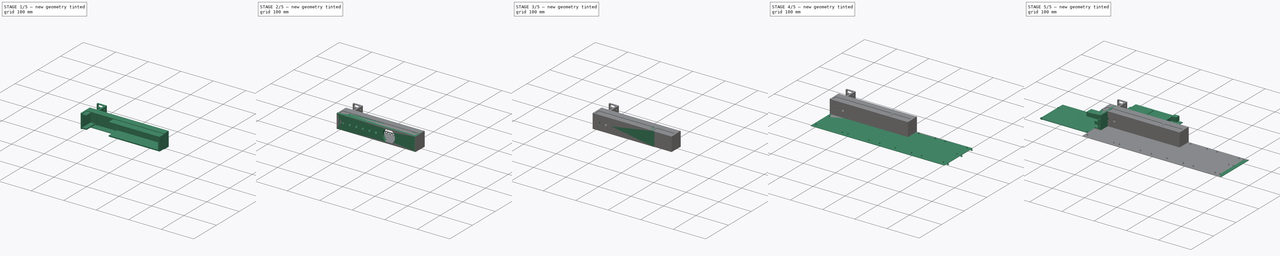
[diagram: build sequence overview — one tinted view per stage of 5, left to right]
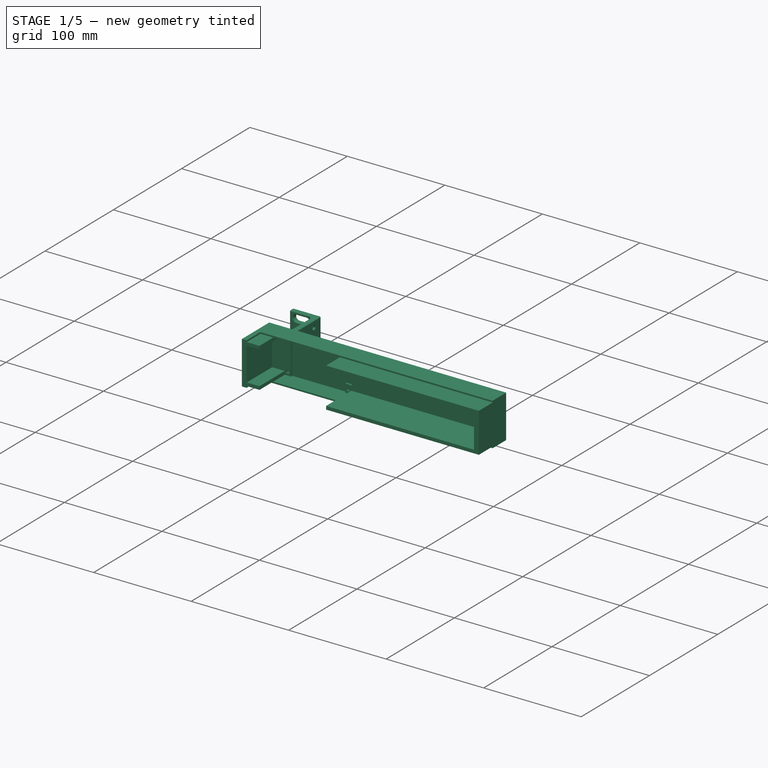
[diagram: stage 1 of 5 — iso view after this stage's code; geometry added in this stage tinted green]
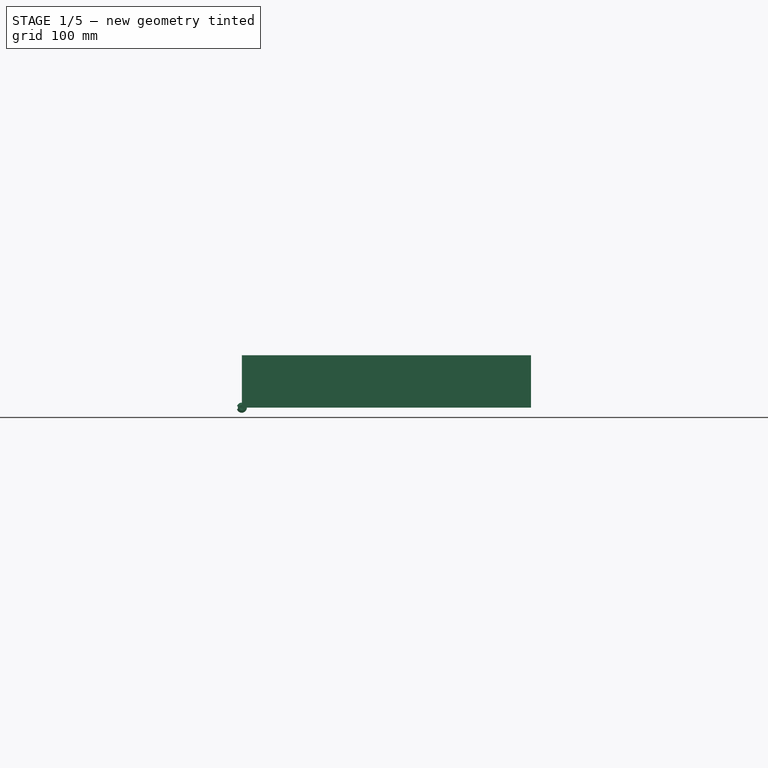
[diagram: stage 1 of 5 — front view after this stage's code; geometry added in this stage tinted green]
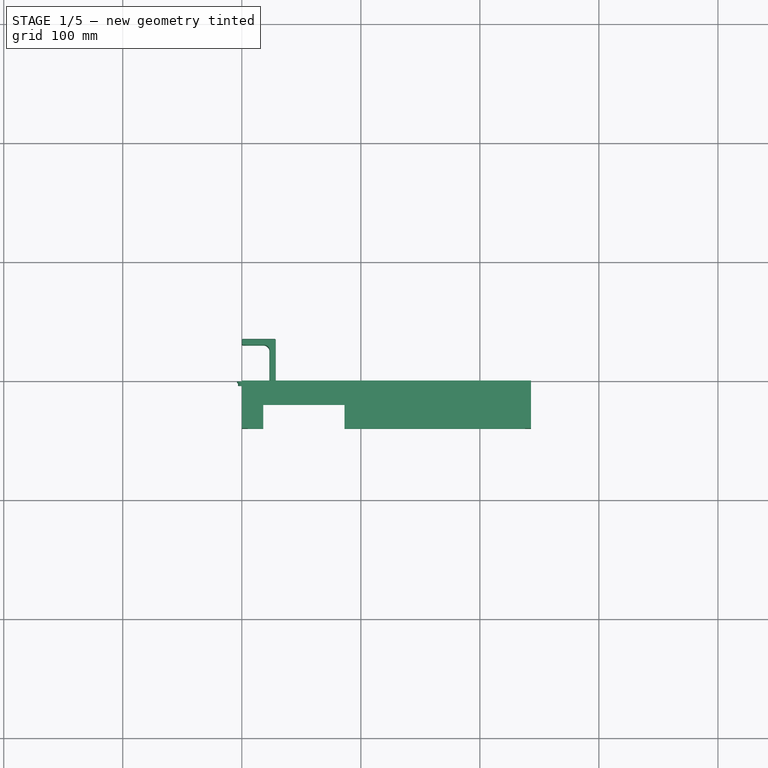
[diagram: stage 1 of 5 — top view after this stage's code; geometry added in this stage tinted green]
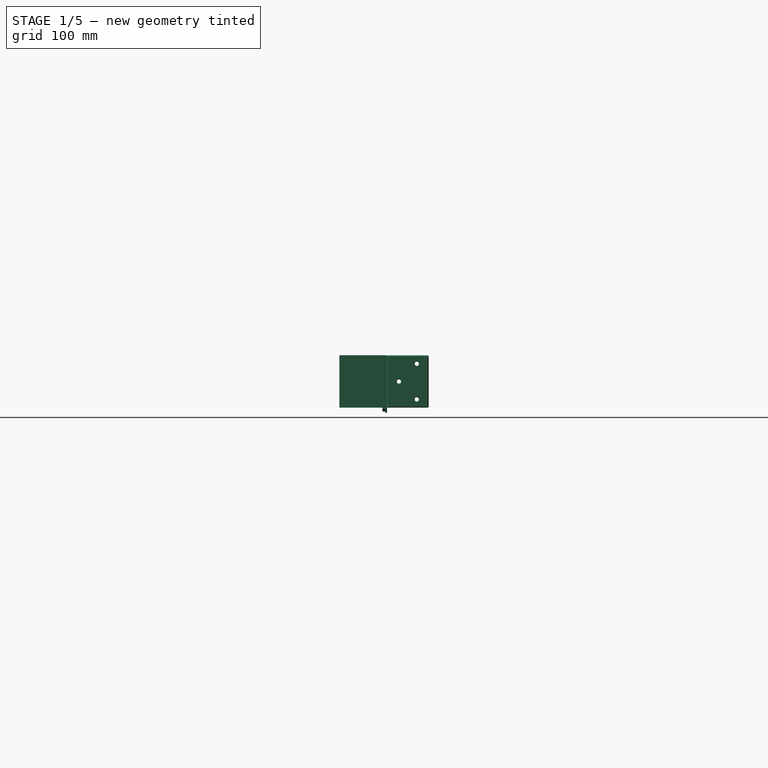
[diagram: stage 1 of 5 — right view after this stage's code; geometry added in this stage tinted green]
FCSTD DOCUMENT  (FreeCAD 1.0R39109 (Git))
Label: rackbanana
License: All rights reserved
LicenseURL: https://en.wikipedia.org/wiki/All_rights_reserved
objects: Sketcher::SketchObject×123, PartDesign::Pocket×75, PartDesign::Pad×38, Part::FeaturePython×30, PartDesign::Fillet×25, PartDesign::Body×24, PartDesign::Chamfer×17, App::Part×14, PartDesign::Hole×8, PartDesign::LinearPattern×2
note: 793 computed .brp shape members not serialized (recipe doc carries the construction recipe); baked Part::Feature solids carry a one-line shape summary decoded from their .brp

FEATURE [PartDesign::Body] Body012  label="sd-slot"
  AllowCompound = false
  Group = -> [Sketch038,Pad012]
  Origin = -> Origin018
  Placement = pos=(0,-1.6,0) rot=(0,0,1;0rad)
  Tip = -> Pad012
FEATURE [App::Part] Part004  label="lcd"
  Group = -> [Body010,Body011,Body012]
  Origin = -> Origin015
  Placement = pos=(-224.5,-3.5,1.75) rot=(0,0,1;0rad)
FEATURE [Sketcher::SketchObject] Sketch043
  ArcFitTolerance = 1e-06
  AttachmentSupport = -> [XZ_Plane020]
  FullyConstrained = true
  MakeInternals = false
  MapMode = 5
  Placement = pos=(0,0,0) rot=(1,0,0;1.5708rad)
  sketch-geometry (4):
    g0: LineSegment StartX=0 StartY=0 StartZ=0 EndX=243 EndY=0 EndZ=0
    g1: LineSegment StartX=243 StartY=0 StartZ=0 EndX=243 EndY=44 EndZ=0
    g2: LineSegment StartX=243 StartY=44 StartZ=0 EndX=0 EndY=44 EndZ=0
    g3: LineSegment StartX=0 StartY=44 StartZ=0 EndX=0 EndY=0 EndZ=0
  constraints (11):
    c: Coincident(g0,g1)
    c: Coincident(g1,g2)
    c: Coincident(g2,g3)
    c: Coincident(g3,g0)
    c: Horizontal(g0)
    c: Horizontal(g2)
    c: Vertical(g1)
    c: Vertical(g3)
    c: Coincident(g0,g-1)
    c: DistanceY(g3,g3) = 44
    c: DistanceX(g2,g2) = 243
FEATURE [PartDesign::Pad] Pad014
  Direction = (0,-1,2e-16)
  Length = 40
  Length2 = 10
  Placement = pos=(0,0,0) rot=(1,0,0;1.5708rad)
  Profile = -> Sketch043
  ReferenceAxis = -> Sketch043 [N_Axis]
  Refine = true
  Suppressed = false
  Type = 0
FEATURE [Sketcher::SketchObject] Sketch045
  ArcFitTolerance = 1e-06
  AttachmentSupport = -> [Pad014]
  FullyConstrained = true
  MakeInternals = false
  MapMode = 5
  Placement = pos=(0,-40,0) rot=(1,0,0;1.5708rad)
  sketch-geometry (4):
    g0: LineSegment StartX=5 StartY=39 StartZ=0 EndX=5 EndY=5 EndZ=0
    g1: LineSegment StartX=5 StartY=5 StartZ=0 EndX=238 EndY=5 EndZ=0
    g2: LineSegment StartX=238 StartY=5 StartZ=0 EndX=238 EndY=39 EndZ=0
    g3: LineSegment StartX=238 StartY=39 StartZ=0 EndX=5 EndY=39 EndZ=0
  constraints (12):
    c: Coincident(g0,g1)
    c: Coincident(g1,g2)
    c: Coincident(g2,g3)
    c: Coincident(g3,g0)
    c: Vertical(g0)
    c: Vertical(g2)
    c: Horizontal(g1)
    c: Horizontal(g3)
    c: DistanceX(g3,g3) = 233
    c: DistanceY(g0,g0) = 34
    c: Distance(g0,g-2) = 5
    c: Distance(g0,g-1) = 5
FEATURE [PartDesign::Pocket] Pocket015
  BaseFeature = -> Pad014
  Direction = (0,1,-2e-16)
  Length = 37
  Length2 = 5
  Placement = pos=(0,0,0) rot=(1,0,0;1.5708rad)
  Profile = -> Sketch045
  ReferenceAxis = -> Sketch045 [N_Axis]
  Refine = true
  Suppressed = false
  Type = 0
FEATURE [Sketcher::SketchObject] MirroredSketch
  ArcFitTolerance = 1e-06
  FullyConstrained = true
  MakeInternals = false
  Placement = pos=(0,-2,0) rot=(1,0,0;1.5708rad)
  sketch-geometry (20):
    g0: LineSegment StartX=230.1 StartY=27.1 StartZ=0 EndX=223.7 EndY=27.1 EndZ=0
    g1: LineSegment StartX=223.7 StartY=27.1 StartZ=0 EndX=223.7 EndY=13.4 EndZ=0
    g2: LineSegment StartX=223.7 StartY=13.4 StartZ=0 EndX=230.1 EndY=13.4 EndZ=0
    g3: LineSegment StartX=230.1 StartY=13.4 StartZ=0 EndX=230.1 EndY=27.1 EndZ=0
    g4: LineSegment StartX=220.4 StartY=23.7 StartZ=0 EndX=205.2 EndY=23.7 EndZ=0
    g5: LineSegment StartX=205.2 StartY=23.7 StartZ=0 EndX=205.2 EndY=13 EndZ=0
    g6: LineSegment StartX=205.2 StartY=13 StartZ=0 EndX=220.4 EndY=13 EndZ=0
    g7: LineSegment StartX=220.4 StartY=13 StartZ=0 EndX=220.4 EndY=23.7 EndZ=0
    g8: LineSegment StartX=202.6 StartY=23.7 StartZ=0 EndX=187.4 EndY=23.7 EndZ=0
    g9: LineSegment StartX=187.4 StartY=23.7 StartZ=0 EndX=187.4 EndY=13 EndZ=0
    g10: LineSegment StartX=187.4 StartY=13 StartZ=0 EndX=202.6 EndY=13 EndZ=0
    g11: LineSegment StartX=202.6 StartY=13 StartZ=0 EndX=202.6 EndY=23.7 EndZ=0
    g12: LineSegment StartX=174.4 StartY=26.9 StartZ=0 EndX=114.8 EndY=26.9 EndZ=0
    g13: LineSegment StartX=114.8 StartY=26.9 StartZ=0 EndX=114.8 EndY=12.8 EndZ=0
    g14: LineSegment StartX=114.8 StartY=12.8 StartZ=0 EndX=174.4 EndY=12.8 EndZ=0
    g15: LineSegment StartX=174.4 StartY=12.8 StartZ=0 EndX=174.4 EndY=26.9 EndZ=0
    g16: ArcOfCircle CenterX=98.2 CenterY=14.8 CenterZ=0 NormalX=0 NormalY=0 NormalZ=1 AngleXU=0 Radius=2 StartAngle=4.71239 EndAngle=7.85398
    g17: ArcOfCircle CenterX=92.7 CenterY=14.8 CenterZ=0 NormalX=0 NormalY=0 NormalZ=1 AngleXU=0 Radius=2 StartAngle=1.5708 EndAngle=4.71239
    g18: LineSegment StartX=98.2 StartY=12.8 StartZ=0 EndX=92.7 EndY=12.8 EndZ=0
    g19: LineSegment StartX=92.7 StartY=16.8 StartZ=0 EndX=98.2 EndY=16.8 EndZ=0
  constraints (58):
    c: Coincident(g0,g1)
    c: Coincident(g1,g2)
    c: Coincident(g2,g3)
    c: Coincident(g3,g0)
    c: Horizontal(g0)
    c: Horizontal(g2)
    c: Vertical(g1)
    c: Vertical(g3)
    c: Coincident(g4,g5)
    c: Coincident(g5,g6)
    c: Coincident(g6,g7)
    c: Coincident(g7,g4)
    c: Horizontal(g4)
    c: Horizontal(g6)
    c: Vertical(g5)
    c: Vertical(g7)
    c: Coincident(g8,g9)
    c: Coincident(g9,g10)
    c: Coincident(g10,g11)
    c: Coincident(g11,g8)
    c: Horizontal(g8)
    c: Horizontal(g10)
    c: Vertical(g9)
    c: Vertical(g11)
    c: Coincident(g12,g13)
    c: Coincident(g13,g14)
    c: Coincident(g14,g15)
    c: Coincident(g15,g12)
    c: Horizontal(g12)
    c: Horizontal(g14)
    c: Vertical(g13)
    c: Vertical(g15)
    c: Distance(g2) = 6.4
    c: Distance(g3) = 13.7
    c: Distance(g6) = 15.2
    c: Distance(g7) = 10.7
    c: Distance(g10) = 15.2
    c: Distance(g11) = 10.7
    c: Distance(g15) = 14.1
    c: Distance(g14) = 59.6
    c: Tangent(g16,g18) = 1.5708
    c: Tangent(g18,g17) = 1.5708
    c: Tangent(g17,g19) = 1.5708
    c: Tangent(g19,g16) = 1.5708
    c: Equal(g16,g17)
    c: Horizontal(g18)
    c: Diameter(g16) = 4
    c: Distance(g19) = 5.5
    c: Distance(g4,g8) = 2.6
    c: DistanceX(g12,g8) = 13
    c: DistanceX(g4,g0) = 3.3
    c: DistanceX(g16,g12) = 16.6
    c: Distance(g16,g-1) = 12.8
    c: Distance(g13,g-1) = 12.8
    c: Distance(g9,g-1) = 13
    c: Distance(g5,g-1) = 13
    c: Distance(g1,g-1) = 13.4
    c: Distance(g2,g-2) = 230.1
FEATURE [PartDesign::Pocket] Pocket016
  BaseFeature = -> Pocket015
  Direction = (0,1,2e-16)
  Length = 2
  Length2 = 5
  Placement = pos=(0,0,0) rot=(1,0,0;1.5708rad)
  Profile = -> MirroredSketch
  ReferenceAxis = -> MirroredSketch [N_Axis]
  Refine = true
  Suppressed = false
  Type = 0
FEATURE [Sketcher::SketchObject] Sketch046
  ArcFitTolerance = 1e-06
  AttachmentSupport = -> [Pocket016]
  FullyConstrained = true
  MakeInternals = false
  MapMode = 5
  Placement = pos=(0,-40,0) rot=(1,0,0;1.5708rad)
  sketch-geometry (4):
    g0: LineSegment StartX=18 StartY=42.5 StartZ=0 EndX=18 EndY=1.5 EndZ=0
    g1: LineSegment StartX=18 StartY=1.5 StartZ=0 EndX=86.3 EndY=1.5 EndZ=0
    g2: LineSegment StartX=86.3 StartY=1.5 StartZ=0 EndX=86.3 EndY=42.5 EndZ=0
    g3: LineSegment StartX=86.3 StartY=42.5 StartZ=0 EndX=18 EndY=42.5 EndZ=0
  constraints (12):
    c: Coincident(g0,g1)
    c: Coincident(g1,g2)
    c: Coincident(g2,g3)
    c: Coincident(g3,g0)
    c: Vertical(g0)
    c: Vertical(g2)
    c: Horizontal(g1)
    c: Horizontal(g3)
    c: DistanceY(g0,g0) = 41
    c: DistanceX(g3,g3) = 68.3
    c: Distance(g0,g-1) = 1.5
    c: Distance(g0,g-2) = 18
FEATURE [PartDesign::Pocket] Pocket017
  BaseFeature = -> Pocket016
  Direction = (0,1,-2e-16)
  Length = 37
  Length2 = 5
  Placement = pos=(0,0,0) rot=(1,0,0;1.5708rad)
  Profile = -> Sketch046
  ReferenceAxis = -> Sketch046 [N_Axis]
  Refine = true
  Suppressed = false
  Type = 0
FEATURE [Sketcher::SketchObject] Sketch047
  ArcFitTolerance = 1e-06
  AttachmentSupport = -> [Pocket017]
  FullyConstrained = true
  MakeInternals = false
  MapMode = 5
  Placement = pos=(0,-40,0) rot=(1,0,0;1.5708rad)
  sketch-geometry (8):
    g0: LineSegment StartX=4.8 StartY=44 StartZ=0 EndX=4.8 EndY=42.4 EndZ=0
    g1: LineSegment StartX=4.8 StartY=42.4 StartZ=0 EndX=249.8 EndY=42.4 EndZ=0
    g2: LineSegment StartX=249.8 StartY=42.4 StartZ=0 EndX=249.8 EndY=44 EndZ=0
    g3: LineSegment StartX=249.8 StartY=44 StartZ=0 EndX=4.8 EndY=44 EndZ=0
    g4: LineSegment StartX=4.8 StartY=0 StartZ=0 EndX=249.8 EndY=0 EndZ=0
    g5: LineSegment StartX=249.8 StartY=0 StartZ=0 EndX=249.8 EndY=1.6 EndZ=0
    g6: LineSegment StartX=249.8 StartY=1.6 StartZ=0 EndX=4.8 EndY=1.6 EndZ=0
    g7: LineSegment StartX=4.8 StartY=1.6 StartZ=0 EndX=4.8 EndY=0 EndZ=0
  constraints (24):
    c: Coincident(g0,g1)
    c: Coincident(g1,g2)
    c: Coincident(g2,g3)
    c: Coincident(g3,g0)
    c: Vertical(g0)
    c: Vertical(g2)
    c: Horizontal(g1)
    c: Horizontal(g3)
    c: Coincident(g4,g5)
    c: Coincident(g5,g6)
    c: Coincident(g6,g7)
    c: Horizontal(g4)
    c: Horizontal(g6)
    c: Vertical(g5)
    c: Vertical(g7)
    c: DistanceX(g4,g4) = 245
    c: Distance(g7,g7) = 1.6
    c: Equal(g4,g3)
    c: Equal(g0,g7)
    c: Distance(g0,g-1) = 44
    c: Coincident(g7,g4)
    c: PointOnObject(g4,g-1)
    c: Distance(g4,g-2) = 4.8
    c: Distance(g0,g-2) = 4.8
FEATURE [PartDesign::Pocket] Pocket018
  BaseFeature = -> Pocket017
  Direction = (0,1,-2e-16)
  Length = 20.2
  Length2 = 5
  Placement = pos=(0,0,0) rot=(1,0,0;1.5708rad)
  Profile = -> Sketch047
  ReferenceAxis = -> Sketch047 [N_Axis]
  Refine = true
  Suppressed = false
  Type = 0
FEATURE [Sketcher::SketchObject] Sketch048
  ArcFitTolerance = 1e-06
  AttachmentSupport = -> [Pocket018]
  FullyConstrained = true
  MakeInternals = false
  MapMode = 5
  Placement = pos=(0,-3,1.3e-15) rot=(1,0,0;1.5708rad)
  sketch-geometry (8):
    g0: LineSegment StartX=24.4 StartY=42.5 StartZ=0 EndX=80.1 EndY=42.5 EndZ=0
    g1: LineSegment StartX=24.4 StartY=42.5 StartZ=0 EndX=24.4 EndY=1.5 EndZ=0
    g2: LineSegment StartX=24.4 StartY=1.5 StartZ=0 EndX=80.1 EndY=1.5 EndZ=0
    g3: LineSegment StartX=80.1 StartY=1.5 StartZ=0 EndX=80.1 EndY=10 EndZ=0
    g4: LineSegment StartX=80.1 StartY=10 StartZ=0 EndX=86.6 EndY=10 EndZ=0
    g5: LineSegment StartX=86.6 StartY=10 StartZ=0 EndX=86.6 EndY=34 EndZ=0
    g6: LineSegment StartX=86.6 StartY=34 StartZ=0 EndX=80.1 EndY=34 EndZ=0
    g7: LineSegment StartX=80.1 StartY=34 StartZ=0 EndX=80.1 EndY=42.5 EndZ=0
  constraints (24):
    c: Horizontal(g0)
    c: Coincident(g1,g0)
    c: Vertical(g1)
    c: Coincident(g2,g1)
    c: Horizontal(g2)
    c: Coincident(g3,g2)
    c: Vertical(g3)
    c: Coincident(g4,g3)
    c: Horizontal(g4)
    c: Coincident(g5,g4)
    c: Vertical(g5)
    c: Coincident(g6,g5)
    c: Horizontal(g6)
    c: Coincident(g7,g6)
    c: Coincident(g7,g0)
    c: Vertical(g7)
    c: DistanceY(g1,g1) = 41
    c: DistanceX(g0,g0) = 55.7
    c: DistanceY(g5,g5) = 24
    c: Distance(g6,g6) = 6.5
    c: Equal(g6,g4)
    c: Equal(g7,g3)
    c: Distance(g1,g-1) = 1.5
    c: Distance(g1,g-2) = 24.4
FEATURE [PartDesign::Pocket] Pocket019
  BaseFeature = -> Pocket018
  Direction = (0,1,-2e-16)
  Length = 2
  Length2 = 5
  Placement = pos=(0,0,0) rot=(1,0,0;1.5708rad)
  Profile = -> Sketch048
  ReferenceAxis = -> Sketch048 [N_Axis]
  Refine = true
  Suppressed = false
  Type = 0
FEATURE [Sketcher::SketchObject] Sketch049
  ArcFitTolerance = 1e-06
  AttachmentSupport = -> [Pocket019]
  FullyConstrained = false
  MakeInternals = false
  MapMode = 5
  Placement = pos=(0,-3,1.3e-15) rot=(1,0,0;1.5708rad)
  sketch-geometry (8):
    g0: Circle CenterX=21.4 CenterY=39 CenterZ=0 NormalX=0 NormalY=0 NormalZ=1 AngleXU=0 Radius=1.45
    g1: Circle CenterX=21.4 CenterY=5 CenterZ=0 NormalX=0 NormalY=0 NormalZ=1 AngleXU=0 Radius=1.45
    g2: Circle CenterX=82.9 CenterY=39 CenterZ=0 NormalX=0 NormalY=0 NormalZ=1 AngleXU=0 Radius=1.45
    g3: Circle CenterX=82.9 CenterY=5 CenterZ=0 NormalX=0 NormalY=0 NormalZ=1 AngleXU=0 Radius=1.45
    g4: LineSegment [constr] StartX=5.864 StartY=39 StartZ=0 EndX=88.4056 EndY=39 EndZ=0
    g5: LineSegment [constr] StartX=10.3822 StartY=5 StartZ=0 EndX=86.7197 EndY=5 EndZ=0
    g6: LineSegment [constr] StartX=21.4 StartY=45.9535 StartZ=0 EndX=21.4 EndY=-2.93753 EndZ=0
    g7: LineSegment [constr] StartX=82.9 StartY=46.0884 StartZ=0 EndX=82.9 EndY=-3.20728 EndZ=0
  constraints (20):
    c: Horizontal(g4)
    c: Horizontal(g5)
    c: Vertical(g6)
    c: Vertical(g7)
    c: Distance(g5,g4) = 34
    c: Distance(g7,g6) = 61.5
    c: PointOnObject(g0,g6)
    c: PointOnObject(g0,g4)
    c: PointOnObject(g2,g4)
    c: PointOnObject(g2,g7)
    c: PointOnObject(g3,g5)
    c: PointOnObject(g3,g7)
    c: PointOnObject(g1,g5)
    c: PointOnObject(g1,g6)
    c: Distance(g1,g-1) = 5
    c: Distance(g1,g-2) = 21.4
    c: Diameter(g0) = 2.9
    c: Diameter(g1) = 2.9
    c: Diameter(g2) = 2.9
    c: Diameter(g3) = 2.9
FEATURE [PartDesign::Pocket] Pocket020
  BaseFeature = -> Pocket019
  Direction = (0,1,-2e-16)
  Length = 2
  Length2 = 5
  Placement = pos=(0,0,0) rot=(1,0,0;1.5708rad)
  Profile = -> Sketch049
  ReferenceAxis = -> Sketch049 [N_Axis]
  Refine = true
  Suppressed = false
  Type = 0
FEATURE [Sketcher::SketchObject] Sketch058
  ArcFitTolerance = 1e-06
  AttachmentSupport = -> [XZ_Plane021]
  FullyConstrained = true
  MakeInternals = false
  MapMode = 5
  Placement = pos=(0,0,0) rot=(1,0,0;1.5708rad)
  sketch-geometry (1):
    g0: Circle CenterX=0 CenterY=0 CenterZ=0 NormalX=0 NormalY=0 NormalZ=1 AngleXU=0 Radius=4.25
  constraints (2):
    c: Coincident(g0,g-1)
    c: Diameter(g0) = 8.5
FEATURE [PartDesign::Pad] Pad016
  Direction = (0,-1,2e-16)
  Length = 1.6
  Length2 = 10
  Placement = pos=(0,0,0) rot=(1,0,0;1.5708rad)
  Profile = -> Sketch058
  ReferenceAxis = -> Sketch058 [N_Axis]
  Refine = true
  Suppressed = false
  Type = 0
FEATURE [Sketcher::SketchObject] Sketch059
  ArcFitTolerance = 1e-06
  AttachmentSupport = -> [Pad016]
  FullyConstrained = true
  MakeInternals = false
  MapMode = 5
  Placement = pos=(0,-1.6,0) rot=(1,0,0;1.5708rad)
  sketch-geometry (1):
    g0: Circle CenterX=0 CenterY=0 CenterZ=0 NormalX=0 NormalY=0 NormalZ=1 AngleXU=0 Radius=3.25
  constraints (2):
    c: Coincident(g0,g-1)
    c: Diameter(g0) = 6.5
FEATURE [PartDesign::Pad] Pad017
  BaseFeature = -> Pad016
  Direction = (0,-1,2e-16)
  Length = 2.3
  Length2 = 10
  Placement = pos=(0,0,0) rot=(1,0,0;1.5708rad)
  Profile = -> Sketch059
  ReferenceAxis = -> Sketch059 [N_Axis]
  Refine = true
  Suppressed = false
  Type = 0
FEATURE [PartDesign::Body] Body013  label="main"
  AllowCompound = false
  Group = -> [Sketch043,Pad014,Sketch045,Pocket015,MirroredSketch,Pocket016,Sketch046,Pocket017,Sketch047,Pocket018,Sketch048,Pocket019,Sketch049,Pocket020,Sketch050,Pocket021,Sketch054,Pocket024,Sketch055,Hole,Sketch061,Pocket027,Sketch081,Pad023,Sketch082,Pocket041,Sketch102,Pad027,Sketch103,Pocket056,Sketch104,Pocket057,Sketch106,Pocket059,Sketch117,Pad030,Sketch118,Pocket065,Sketch120,Pocket067,Sketch121,+16 more]
  Origin = -> Origin020
  Tip = -> Pad037
FEATURE [Sketcher::SketchObject] Sketch155
  ArcFitTolerance = 1e-06
  AttachmentSupport = -> [Pad017]
  FullyConstrained = true
  MakeInternals = false
  MapMode = 5
  Placement = pos=(0,0,0) rot=(-1,0,0;1.5708rad)
  sketch-geometry (4):
    g0: LineSegment StartX=-4.6 StartY=1.15 StartZ=0 EndX=-4.6 EndY=-1.15 EndZ=0
    g1: LineSegment StartX=-4.6 StartY=-1.15 StartZ=0 EndX=-3.3 EndY=-1.15 EndZ=0
    g2: LineSegment StartX=-3.3 StartY=-1.15 StartZ=0 EndX=-3.3 EndY=1.15 EndZ=0
    g3: LineSegment StartX=-3.3 StartY=1.15 StartZ=0 EndX=-4.6 EndY=1.15 EndZ=0
  constraints (12):
    c: Coincident(g0,g1)
    c: Coincident(g1,g2)
    c: Coincident(g2,g3)
    c: Coincident(g3,g0)
    c: Vertical(g0)
    c: Vertical(g2)
    c: Horizontal(g1)
    c: Horizontal(g3)
    c: DistanceY(g2,g2) = 2.3
    c: DistanceX(g1,g1) = 1.3
    c: Distance(g0,g-1) = 1.15
    c: Distance(g-1,g2) = 3.3
FEATURE [PartDesign::Pocket] Pocket093
  BaseFeature = -> Pad017
  Direction = (0,-1,-2e-16)
  Length = 5
  Length2 = 5
  Placement = pos=(0,0,0) rot=(1,0,0;1.5708rad)
  Profile = -> Sketch155
  ReferenceAxis = -> Sketch155 [N_Axis]
  Refine = true
  Suppressed = false
  Type = 0
FEATURE [Sketcher::SketchObject] Sketch156
  ArcFitTolerance = 1e-06
  AttachmentSupport = -> [XZ_Plane039]
  FullyConstrained = true
  MakeInternals = false
  MapMode = 5
  Placement = pos=(0,0,0) rot=(1,0,0;1.5708rad)
  sketch-geometry (1):
    g0: Circle CenterX=0 CenterY=0 CenterZ=0 NormalX=0 NormalY=0 NormalZ=1 AngleXU=0 Radius=4.25
  constraints (2):
    c: Coincident(g0,g-1)
    c: Diameter(g0) = 8.5
FEATURE [PartDesign::Pad] Pad038
  Direction = (0,-1,2e-16)
  Length = 1.6
  Length2 = 10
  Placement = pos=(0,0,0) rot=(1,0,0;1.5708rad)
  Profile = -> Sketch156
  ReferenceAxis = -> Sketch156 [N_Axis]
  Refine = true
  Suppressed = false
  Type = 0
FEATURE [Sketcher::SketchObject] Sketch157
  ArcFitTolerance = 1e-06
  AttachmentSupport = -> [Pad038]
  FullyConstrained = true
  MakeInternals = false
  MapMode = 5
  Placement = pos=(0,-1.6,0) rot=(1,0,0;1.5708rad)
  sketch-geometry (1):
    g0: Circle CenterX=0 CenterY=0 CenterZ=0 NormalX=0 NormalY=0 NormalZ=1 AngleXU=0 Radius=3.25
  constraints (2):
    c: Coincident(g0,g-1)
    c: Diameter(g0) = 6.5
FEATURE [PartDesign::Pad] Pad039
  BaseFeature = -> Pad038
  Direction = (0,-1,2e-16)
  Length = 2.3
  Length2 = 10
  Placement = pos=(0,0,0) rot=(1,0,0;1.5708rad)
  Profile = -> Sketch157
  ReferenceAxis = -> Sketch157 [N_Axis]
  Refine = true
  Suppressed = false
  Type = 0
FEATURE [Sketcher::SketchObject] Sketch158
  ArcFitTolerance = 1e-06
  AttachmentSupport = -> [Pad039]
  FullyConstrained = true
  MakeInternals = false
  MapMode = 5
  Placement = pos=(0,0,0) rot=(-1,0,0;1.5708rad)
  sketch-geometry (4):
    g0: LineSegment StartX=-4.6 StartY=1.15 StartZ=0 EndX=-4.6 EndY=-1.15 EndZ=0
    g1: LineSegment StartX=-4.6 StartY=-1.15 StartZ=0 EndX=-3.3 EndY=-1.15 EndZ=0
    g2: LineSegment StartX=-3.3 StartY=-1.15 StartZ=0 EndX=-3.3 EndY=1.15 EndZ=0
    g3: LineSegment StartX=-3.3 StartY=1.15 StartZ=0 EndX=-4.6 EndY=1.15 EndZ=0
  constraints (12):
    c: Coincident(g0,g1)
    c: Coincident(g1,g2)
    c: Coincident(g2,g3)
    c: Coincident(g3,g0)
    c: Vertical(g0)
    c: Vertical(g2)
    c: Horizontal(g1)
    c: Horizontal(g3)
    c: DistanceY(g2,g2) = 2.3
    c: DistanceX(g1,g1) = 1.3
    c: Distance(g0,g-1) = 1.15
    c: Distance(g-1,g2) = 3.3
FEATURE [PartDesign::Pocket] Pocket094
  BaseFeature = -> Pad039
  Direction = (0,-1,-2e-16)
  Length = 5
  Length2 = 5
  Placement = pos=(0,0,0) rot=(1,0,0;1.5708rad)
  Profile = -> Sketch158
  ReferenceAxis = -> Sketch158 [N_Axis]
  Refine = true
  Suppressed = false
  Type = 0
FEATURE [Sketcher::SketchObject] Sketch159
  ArcFitTolerance = 1e-06
  AttachmentSupport = -> [XZ_Plane040]
  FullyConstrained = true
  MakeInternals = false
  MapMode = 5
  Placement = pos=(0,0,0) rot=(1,0,0;1.5708rad)
  sketch-geometry (1):
    g0: Circle CenterX=0 CenterY=0 CenterZ=0 NormalX=0 NormalY=0 NormalZ=1 AngleXU=0 Radius=4.25
  constraints (2):
    c: Coincident(g0,g-1)
    c: Diameter(g0) = 8.5
FEATURE [PartDesign::Pad] Pad040
  Direction = (0,-1,2e-16)
  Length = 1.6
  Length2 = 10
  Placement = pos=(0,0,0) rot=(1,0,0;1.5708rad)
  Profile = -> Sketch159
  ReferenceAxis = -> Sketch159 [N_Axis]
  Refine = true
  Suppressed = false
  Type = 0
FEATURE [Sketcher::SketchObject] Sketch160
  ArcFitTolerance = 1e-06
  AttachmentSupport = -> [Pad040]
  FullyConstrained = true
  MakeInternals = false
  MapMode = 5
  Placement = pos=(0,-1.6,0) rot=(1,0,0;1.5708rad)
  sketch-geometry (1):
    g0: Circle CenterX=0 CenterY=0 CenterZ=0 NormalX=0 NormalY=0 NormalZ=1 AngleXU=0 Radius=3.25
  constraints (2):
    c: Coincident(g0,g-1)
    c: Diameter(g0) = 6.5
FEATURE [PartDesign::Pad] Pad041
  BaseFeature = -> Pad040
  Direction = (0,-1,2e-16)
  Length = 2.3
  Length2 = 10
  Placement = pos=(0,0,0) rot=(1,0,0;1.5708rad)
  Profile = -> Sketch160
  ReferenceAxis = -> Sketch160 [N_Axis]
  Refine = true
  Suppressed = false
  Type = 0
FEATURE [Sketcher::SketchObject] Sketch161
  ArcFitTolerance = 1e-06
  AttachmentSupport = -> [Pad041]
  FullyConstrained = true
  MakeInternals = false
  MapMode = 5
  Placement = pos=(0,0,0) rot=(-1,0,0;1.5708rad)
  sketch-geometry (4):
    g0: LineSegment StartX=-4.6 StartY=1.15 StartZ=0 EndX=-4.6 EndY=-1.15 EndZ=0
    g1: LineSegment StartX=-4.6 StartY=-1.15 StartZ=0 EndX=-3.3 EndY=-1.15 EndZ=0
    g2: LineSegment StartX=-3.3 StartY=-1.15 StartZ=0 EndX=-3.3 EndY=1.15 EndZ=0
    g3: LineSegment StartX=-3.3 StartY=1.15 StartZ=0 EndX=-4.6 EndY=1.15 EndZ=0
  constraints (12):
    c: Coincident(g0,g1)
    c: Coincident(g1,g2)
    c: Coincident(g2,g3)
    c: Coincident(g3,g0)
    c: Vertical(g0)
    c: Vertical(g2)
    c: Horizontal(g1)
    c: Horizontal(g3)
    c: DistanceY(g2,g2) = 2.3
    c: DistanceX(g1,g1) = 1.3
    c: Distance(g0,g-1) = 1.15
    c: Distance(g-1,g2) = 3.3
FEATURE [PartDesign::Pocket] Pocket095
  BaseFeature = -> Pad041
  Direction = (0,-1,-2e-16)
  Length = 5
  Length2 = 5
  Placement = pos=(0,0,0) rot=(1,0,0;1.5708rad)
  Profile = -> Sketch161
  ReferenceAxis = -> Sketch161 [N_Axis]
  Refine = true
  Suppressed = false
  Type = 0
FEATURE [Sketcher::SketchObject] Sketch162
  ArcFitTolerance = 1e-06
  AttachmentSupport = -> [Pocket093]
  FullyConstrained = true
  MakeInternals = false
  MapMode = 5
  Placement = pos=(0,-3.9,9e-16) rot=(1,0,0;1.5708rad)
  sketch-geometry (4):
    g0: LineSegment StartX=-2.3094 StartY=0 StartZ=0 EndX=1.1547 EndY=-2 EndZ=0
    g1: LineSegment StartX=1.1547 StartY=-2 StartZ=0 EndX=1.1547 EndY=2 EndZ=0
    g2: LineSegment StartX=1.1547 StartY=2 StartZ=0 EndX=-2.3094 EndY=0 EndZ=0
    g3: Circle [constr] CenterX=0 CenterY=0 CenterZ=0 NormalX=0 NormalY=0 NormalZ=1 AngleXU=0 Radius=2.3094
  constraints (11):
    c: Coincident(g0,g1)
    c: Coincident(g1,g2)
    c: Coincident(g2,g0)
    c: Equal(g0,g1)
    c: Equal(g0,g2)
    c: PointOnObject(g0,g3)
    c: PointOnObject(g1,g3)
    c: PointOnObject(g2,g3)
    c: Coincident(g3,g-1)
    c: PointOnObject(g0,g-1)
    c: DistanceY(g1,g1) = 4
FEATURE [PartDesign::Pocket] Pocket096
  BaseFeature = -> Pocket093
  Direction = (0,1,-2e-16)
  Length = 0.5
  Length2 = 5
  Placement = pos=(0,0,0) rot=(1,0,0;1.5708rad)
  Profile = -> Sketch162
  ReferenceAxis = -> Sketch162 [N_Axis]
  Refine = true
  Suppressed = false
  Type = 0
FEATURE [PartDesign::Fillet] Fillet040
  Base = -> Pocket096 [Edge17,Edge7]
  BaseFeature = -> Pocket096
  Placement = pos=(0,0,0) rot=(1,0,0;1.5708rad)
  Radius = 0.5
  Refine = true
  SupportTransform = false
  Suppressed = false
  UseAllEdges = false
FEATURE [PartDesign::Fillet] Fillet041
  Base = -> Fillet040 [Edge26,Edge31,Edge27,Edge25,Edge28,Edge29]
  BaseFeature = -> Fillet040
  Placement = pos=(0,0,0) rot=(1,0,0;1.5708rad)
  Radius = 0.3
  Refine = true
  SupportTransform = false
  Suppressed = false
  UseAllEdges = false
FEATURE [PartDesign::Body] Body014  label="button_left"
  AllowCompound = false
  Group = -> [Sketch058,Pad016,Sketch059,Pad017,Sketch155,Pocket093,Sketch162,Pocket096,Fillet040,Fillet041]
  Origin = -> Origin021
  Placement = pos=(11.5,-3,32) rot=(0,0,1;3.14159rad)
  Tip = -> Fillet041
FEATURE [Sketcher::SketchObject] Sketch163
  ArcFitTolerance = 1e-06
  AttachmentSupport = -> [Pocket094]
  FullyConstrained = true
  MakeInternals = false
  MapMode = 5
  Placement = pos=(0,-3.9,9e-16) rot=(1,0,0;1.5708rad)
  sketch-geometry (4):
    g0: LineSegment StartX=2.3094 StartY=0 StartZ=0 EndX=-1.1547 EndY=2 EndZ=0
    g1: LineSegment StartX=-1.1547 StartY=2 StartZ=0 EndX=-1.1547 EndY=-2 EndZ=0
    g2: LineSegment StartX=-1.1547 StartY=-2 StartZ=0 EndX=2.3094 EndY=0 EndZ=0
    g3: Circle [constr] CenterX=0 CenterY=0 CenterZ=0 NormalX=0 NormalY=0 NormalZ=1 AngleXU=0 Radius=2.3094
  constraints (11):
    c: Coincident(g0,g1)
    c: Coincident(g1,g2)
    c: Coincident(g2,g0)
    c: Equal(g0,g1)
    c: Equal(g0,g2)
    c: PointOnObject(g0,g3)
    c: PointOnObject(g1,g3)
    c: PointOnObject(g2,g3)
    c: Coincident(g3,g-1)
    c: PointOnObject(g2,g-1)
    c: DistanceY(g1,g1) = 4
FEATURE [PartDesign::Pocket] Pocket097
  BaseFeature = -> Pocket094
  Direction = (0,1,-2e-16)
  Length = 0.5
  Length2 = 5
  Placement = pos=(0,0,0) rot=(1,0,0;1.5708rad)
  Profile = -> Sketch163
  ReferenceAxis = -> Sketch163 [N_Axis]
  Refine = true
  Suppressed = false
  Type = 0
FEATURE [PartDesign::Fillet] Fillet042
  Base = -> Pocket097 [Edge17,Edge8]
  BaseFeature = -> Pocket097
  Placement = pos=(0,0,0) rot=(1,0,0;1.5708rad)
  Radius = 0.5
  Refine = true
  SupportTransform = false
  Suppressed = false
  UseAllEdges = false
FEATURE [PartDesign::Fillet] Fillet043
  Base = -> Fillet042 [Edge25,Edge29,Edge27,Edge26,Edge28,Edge31]
  BaseFeature = -> Fillet042
  Placement = pos=(0,0,0) rot=(1,0,0;1.5708rad)
  Radius = 0.3
  Refine = true
  SupportTransform = false
  Suppressed = false
  UseAllEdges = false
FEATURE [PartDesign::Body] Body023  label="button_right"
  AllowCompound = false
  Group = -> [Sketch156,Pad038,Sketch157,Pad039,Sketch158,Pocket094,Sketch163,Pocket097,Fillet042,Fillet043]
  Origin = -> Origin039
  Placement = pos=(11.5,-3,22) rot=(0,0,1;3.14159rad)
  Tip = -> Fillet043
FEATURE [Sketcher::SketchObject] Sketch164
  ArcFitTolerance = 1e-06
  AttachmentSupport = -> [Pocket095]
  FullyConstrained = true
  MakeInternals = false
  MapMode = 5
  Placement = pos=(0,-3.9,9e-16) rot=(1,0,0;1.5708rad)
  sketch-geometry (4):
    g0: LineSegment StartX=-1.5 StartY=1.5 StartZ=0 EndX=-1.5 EndY=-1.5 EndZ=0
    g1: LineSegment StartX=-1.5 StartY=-1.5 StartZ=0 EndX=1.5 EndY=-1.5 EndZ=0
    g2: LineSegment StartX=1.5 StartY=-1.5 StartZ=0 EndX=1.5 EndY=1.5 EndZ=0
    g3: LineSegment StartX=1.5 StartY=1.5 StartZ=0 EndX=-1.5 EndY=1.5 EndZ=0
  constraints (12):
    c: Coincident(g0,g1)
    c: Coincident(g1,g2)
    c: Coincident(g2,g3)
    c: Coincident(g3,g0)
    c: Vertical(g0)
    c: Vertical(g2)
    c: Horizontal(g1)
    c: Horizontal(g3)
    c: DistanceY(g0,g0) = 3
    c: DistanceX(g1,g1) = 3
    c: Distance(g-2,g2) = 1.5
    c: Distance(g-1,g1) = 1.5
FEATURE [PartDesign::Pocket] Pocket098
  BaseFeature = -> Pocket095
  Direction = (0,1,-2e-16)
  Length = 0.5
  Length2 = 5
  Placement = pos=(0,0,0) rot=(1,0,0;1.5708rad)
  Profile = -> Sketch164
  ReferenceAxis = -> Sketch164 [N_Axis]
  Refine = true
  Suppressed = false
  Type = 0
FEATURE [PartDesign::Fillet] Fillet044
  Base = -> Pocket098 [Edge17,Edge8]
  BaseFeature = -> Pocket098
  Placement = pos=(0,0,0) rot=(1,0,0;1.5708rad)
  Radius = 0.5
  Refine = true
  SupportTransform = false
  Suppressed = false
  UseAllEdges = false
FEATURE [PartDesign::Fillet] Fillet045
  Base = -> Fillet044 [Edge26,Edge25,Edge28,Edge27,Edge32,Edge34,Edge30,Edge29]
  BaseFeature = -> Fillet044
  Placement = pos=(0,0,0) rot=(1,0,0;1.5708rad)
  Radius = 0.3
  Refine = true
  SupportTransform = false
  Suppressed = false
  UseAllEdges = false
FEATURE [PartDesign::Body] Body024  label="button_enter"
  AllowCompound = false
  Group = -> [Sketch159,Pad040,Sketch160,Pad041,Sketch161,Pocket095,Sketch164,Pocket098,Fillet044,Fillet045]
  Origin = -> Origin040
  Placement = pos=(11.5,-3,12) rot=(0,0,1;3.14159rad)
  Tip = -> Fillet045
FEATURE [App::Part] Part005  label="bpi-r4-lcd-front"
  Group = -> [Body013,Body014,Body023,Body024]
  Origin = -> Origin019
  Placement = pos=(-243,0,0) rot=(0,0,1;0rad)
FEATURE [Sketcher::SketchObject] Sketch165
  ArcFitTolerance = 1e-06
  AttachmentSupport = -> [YZ_Plane042]
  FullyConstrained = true
  MakeInternals = false
  MapMode = 5
  Placement = pos=(0,0,0) rot=(0.57735,0.57735,0.57735;2.0944rad)
  sketch-geometry (4):
    g0: LineSegment StartX=0 StartY=0 StartZ=0 EndX=35 EndY=0 EndZ=0
    g1: LineSegment StartX=35 StartY=0 StartZ=0 EndX=35 EndY=44 EndZ=0
    g2: LineSegment StartX=35 StartY=44 StartZ=0 EndX=0 EndY=44 EndZ=0
    g3: LineSegment StartX=0 StartY=44 StartZ=0 EndX=0 EndY=0 EndZ=0
  constraints (11):
    c: Coincident(g0,g1)
    c: Coincident(g1,g2)
    c: Coincident(g2,g3)
    c: Coincident(g3,g0)
    c: Horizontal(g0)
    c: Horizontal(g2)
    c: Vertical(g1)
    c: Vertical(g3)
    c: Coincident(g0,g-1)
    c: DistanceY(g1,g1) = 44
    c: DistanceX(g2,g2) = 35
FEATURE [PartDesign::Pad] Pad042
  Direction = (1,0,0)
  Length = 28.5
  Length2 = 10
  Placement = pos=(0,0,0) rot=(1,1,1;2.0944rad)
  Profile = -> Sketch165
  ReferenceAxis = -> Sketch165 [N_Axis]
  Refine = true
  Suppressed = false
  Type = 0
FEATURE [Sketcher::SketchObject] Sketch166
  ArcFitTolerance = 1e-06
  AttachmentSupport = -> [Pad042]
  FullyConstrained = true
  MakeInternals = false
  MapMode = 5
  Placement = pos=(0,0,0) rot=(0.57735,0.57735,-0.57735;4.18879rad)
FEATURE [Sketcher::SketchObject] Sketch167
  ArcFitTolerance = 1e-06
  AttachmentSupport = -> [Pad042]
  FullyConstrained = true
  MakeInternals = false
  MapMode = 5
  Placement = pos=(0,0,0) rot=(0.57735,0.57735,-0.57735;4.18879rad)
  sketch-geometry (4):
    g0: LineSegment StartX=0 StartY=0 StartZ=0 EndX=0 EndY=-44 EndZ=0
    g1: LineSegment StartX=0 StartY=-44 StartZ=0 EndX=30 EndY=-44 EndZ=0
    g2: LineSegment StartX=30 StartY=-44 StartZ=0 EndX=30 EndY=0 EndZ=0
    g3: LineSegment StartX=30 StartY=0 StartZ=0 EndX=0 EndY=0 EndZ=0
  constraints (11):
    c: Coincident(g0,g1)
    c: Coincident(g1,g2)
    c: Coincident(g2,g3)
    c: Coincident(g3,g0)
    c: Vertical(g0)
    c: Vertical(g2)
    c: Horizontal(g1)
    c: Horizontal(g3)
    c: Coincident(g0,g-1)
    c: DistanceX(g3,g3) = 30
    c: DistanceY(g2,g2) = 44
FEATURE [PartDesign::Pocket] Pocket099
  BaseFeature = -> Pad042
  Direction = (1,0,0)
  Length = 23.2
  Length2 = 5
  Placement = pos=(0,0,0) rot=(1,1,1;2.0944rad)
  Profile = -> Sketch167
  ReferenceAxis = -> Sketch167 [N_Axis]
  Refine = true
  Suppressed = false
  Type = 0
FEATURE [PartDesign::Fillet] Fillet046
  Base = -> Pocket099 [Edge9]
  BaseFeature = -> Pocket099
  Placement = pos=(0,0,0) rot=(1,1,1;2.0944rad)
  Radius = 5
  Refine = true
  SupportTransform = false
  Suppressed = false
  UseAllEdges = false
FEATURE [Sketcher::SketchObject] Sketch168
  ArcFitTolerance = 1e-06
  AttachmentOffset = pos=(0,0,1) rot=(0,0,1;0rad)
  AttachmentSupport = -> [Fillet046]
  FullyConstrained = false
  MakeInternals = false
  MapMode = 5
  Placement = pos=(22.2,0,0) rot=(0.57735,0.57735,-0.57735;4.18879rad)
  sketch-geometry (4):
    g0: LineSegment [constr] StartX=25 StartY=7.16377 StartZ=0 EndX=25 EndY=-60.0662 EndZ=0
    g1: Circle CenterX=25 CenterY=-7 CenterZ=0 NormalX=0 NormalY=0 NormalZ=1 AngleXU=0 Radius=1.75
    g2: Circle CenterX=25 CenterY=-37 CenterZ=0 NormalX=0 NormalY=0 NormalZ=1 AngleXU=0 Radius=1.75
    g3: Circle CenterX=10 CenterY=-22 CenterZ=0 NormalX=0 NormalY=0 NormalZ=1 AngleXU=0 Radius=1.75
  constraints (11):
    c: Vertical(g0)
    c: Distance(g0,g-2) = 25
    c: PointOnObject(g1,g0)
    c: PointOnObject(g2,g0)
    c: DistanceY(g2,g1) = 30
    c: DistanceX(g3,g1) = 15
    c: DistanceY(g2,g3) = 15
    c: Diameter(g3) = 3.5
    c: Diameter(g1) = 3.5
    c: Diameter(g2) = 3.5
    c: Distance(g1,g-1) = 7
FEATURE [PartDesign::Hole] Hole016
  BaseFeature = -> Fillet046
  CustomThreadClearance = 0
  Depth = 25
  DepthType = 0
  Diameter = 3.5
  DrillForDepth = false
  DrillPoint = 1
  DrillPointAngle = 118
  HoleCutCountersinkAngle = 90
  HoleCutCustomValues = false
  HoleCutDepth = 1
  HoleCutDiameter = 8.5
  HoleCutType = 2
  ModelThread = false
  Placement = pos=(0,0,0) rot=(1,1,1;2.0944rad)
  Profile = -> Sketch168
  Refine = true
  Suppressed = false
  Tapered = false
  TaperedAngle = 90
  ThreadClass = 0
  ThreadDepth = 25
  ThreadDepthType = 0
  ThreadDirection = 0
  ThreadFit = 0
  ThreadSize = 0
  ThreadType = 0
  Threaded = false
  UseCustomThreadClearance = false
FEATURE [Sketcher::SketchObject] Sketch169
  ArcFitTolerance = 1e-06
  AttachmentSupport = -> [Hole016]
  FullyConstrained = false
  MakeInternals = false
  MapMode = 5
  Placement = pos=(7.7e-15,35,0) rot=(0.57735,0.57735,0.57735;4.18879rad)
  sketch-geometry (14):
    g0: ArcOfCircle CenterX=6.125 CenterY=17 CenterZ=0 NormalX=0 NormalY=0 NormalZ=1 AngleXU=0 Radius=3.5 StartAngle=0 EndAngle=3.14159
    g1: ArcOfCircle CenterX=6.125 CenterY=7 CenterZ=0 NormalX=0 NormalY=0 NormalZ=1 AngleXU=0 Radius=3.5 StartAngle=3.14159 EndAngle=6.28319
    g2: LineSegment StartX=9.625 StartY=17 StartZ=0 EndX=9.625 EndY=7 EndZ=0
    g3: LineSegment StartX=2.625 StartY=17 StartZ=0 EndX=2.625 EndY=7 EndZ=0
    g4: ArcOfCircle CenterX=22 CenterY=17 CenterZ=0 NormalX=0 NormalY=0 NormalZ=1 AngleXU=0 Radius=3.5 StartAngle=4e-16 EndAngle=3.14159
    g5: ArcOfCircle CenterX=22 CenterY=7 CenterZ=0 NormalX=0 NormalY=0 NormalZ=1 AngleXU=0 Radius=3.5 StartAngle=3.14159 EndAngle=6.28319
    g6: LineSegment StartX=25.5 StartY=17 StartZ=0 EndX=25.5 EndY=7 EndZ=0
    g7: LineSegment StartX=18.5 StartY=17 StartZ=0 EndX=18.5 EndY=7 EndZ=0
    g8: ArcOfCircle CenterX=37.875 CenterY=17 CenterZ=0 NormalX=0 NormalY=0 NormalZ=1 AngleXU=0 Radius=3.5 StartAngle=5e-16 EndAngle=3.14159
    g9: ArcOfCircle CenterX=37.875 CenterY=7 CenterZ=0 NormalX=0 NormalY=0 NormalZ=1 AngleXU=0 Radius=3.5 StartAngle=3.14159 EndAngle=6.28319
    g10: LineSegment StartX=41.375 StartY=17 StartZ=0 EndX=41.375 EndY=7 EndZ=0
    g11: LineSegment StartX=34.375 StartY=17 StartZ=0 EndX=34.375 EndY=7 EndZ=0
    g12: LineSegment [constr] StartX=-9.63786 StartY=7 StartZ=0 EndX=56.479 EndY=7 EndZ=0
    g13: LineSegment [constr] StartX=-9.21946 StartY=17 StartZ=0 EndX=51.3344 EndY=17 EndZ=0
  constraints (34):
    c: Tangent(g0,g2) = 1.5708
    c: Tangent(g0,g3) = -1.5708
    c: Tangent(g1,g2) = 1.5708
    c: Tangent(g1,g3) = -1.5708
    c: Equal(g0,g1)
    c: Vertical(g3)
    c: Tangent(g4,g6) = 1.5708
    c: Tangent(g4,g7) = -1.5708
    c: Tangent(g5,g6) = 1.5708
    c: Tangent(g5,g7) = -1.5708
    c: Equal(g4,g5)
    c: Vertical(g6)
    c: Tangent(g8,g10) = 1.5708
    c: Tangent(g8,g11) = -1.5708
    c: Tangent(g9,g10) = 1.5708
    c: Tangent(g9,g11) = -1.5708
    c: Equal(g8,g9)
    c: Vertical(g10)
    c: Horizontal(g12)
    c: PointOnObject(g1,g12)
    c: PointOnObject(g5,g12)
    c: PointOnObject(g9,g12)
    c: Distance(g-1,g12) = 7
    c: Horizontal(g13)
    c: Distance(g12,g13) = 10
    c: PointOnObject(g0,g13)
    c: PointOnObject(g4,g13)
    c: PointOnObject(g8,g13)
    c: Radius(g0) = 3.5
    c: Equal(g0,g4)
    c: Equal(g4,g8)
    c: DistanceX(g1,g5) = 15.875
    c: DistanceX(g5,g9) = 15.875
    c: Distance(g1,g-2) = 6.125
FEATURE [PartDesign::Pocket] Pocket100
  BaseFeature = -> Hole016
  Direction = (0,-1,0)
  Length = 10
  Length2 = 5
  Placement = pos=(0,0,0) rot=(1,1,1;2.0944rad)
  Profile = -> Sketch169
  ReferenceAxis = -> Sketch169 [N_Axis]
  Refine = true
  Suppressed = false
  Type = 0
FEATURE [PartDesign::Chamfer] Chamfer037
  Angle = 45
  Base = -> Pocket100 [Edge63,Edge67,Edge59,Edge39,Edge42,Edge47,Edge53,Edge55,Edge54]
  BaseFeature = -> Pocket100
  ChamferType = 0
  FlipDirection = false
  Placement = pos=(0,0,0) rot=(1,1,1;2.0944rad)
  Refine = true
  Size = 0.5
  Size2 = 1
  SupportTransform = false
  Suppressed = false
  UseAllEdges = false
FEATURE [PartDesign::Fillet] Fillet047
  Base = -> Chamfer037 [Edge44,Edge42,Edge40,Edge62,Edge64,Edge72,Edge99,Edge50,Edge49,Edge63,Edge14,Edge24,Edge22,Edge3,Edge20,Edge43,Edge61,Edge101]
  BaseFeature = -> Chamfer037
  Placement = pos=(0,0,0) rot=(1,1,1;2.0944rad)
  Radius = 1
  Refine = true
  SupportTransform = false
  Suppressed = false
  UseAllEdges = false
FEATURE [PartDesign::Body] Body025
  AllowCompound = false
  Group = -> [Sketch165,Pad042,Sketch166,Sketch167,Pocket099,Fillet046,Sketch168,Hole016,Sketch169,Pocket100,Chamfer037,Fillet047]
  Origin = -> Origin042
  Tip = -> Fillet047
FEATURE [App::Part] Part015  label="ear"
  Group = -> [Body025]
  Origin = -> Origin041
  Placement = pos=(-271.5,-35,0) rot=(0,0,1;0rad)
FEATURE [Sketcher::SketchObject] Sketch170
  ArcFitTolerance = 1e-06
  AttachmentSupport = -> [YZ_Plane044]
  FullyConstrained = true
  MakeInternals = false
  MapMode = 5
  Placement = pos=(0,0,0) rot=(0.57735,0.57735,0.57735;2.0944rad)
  sketch-geometry (4):
    g0: LineSegment StartX=0 StartY=0 StartZ=0 EndX=35 EndY=0 EndZ=0
    g1: LineSegment StartX=35 StartY=0 StartZ=0 EndX=35 EndY=44 EndZ=0
    g2: LineSegment StartX=35 StartY=44 StartZ=0 EndX=0 EndY=44 EndZ=0
    g3: LineSegment StartX=0 StartY=44 StartZ=0 EndX=0 EndY=0 EndZ=0
  constraints (11):
    c: Coincident(g0,g1)
    c: Coincident(g1,g2)
    c: Coincident(g2,g3)
    c: Coincident(g3,g0)
    c: Horizontal(g0)
    c: Horizontal(g2)
    c: Vertical(g1)
    c: Vertical(g3)
    c: Coincident(g0,g-1)
    c: DistanceY(g1,g1) = 44
    c: DistanceX(g2,g2) = 35
FEATURE [PartDesign::Pad] Pad043
  Direction = (1,0,0)
  Length = 28.5
  Length2 = 10
  Placement = pos=(0,0,0) rot=(1,1,1;2.0944rad)
  Profile = -> Sketch170
  ReferenceAxis = -> Sketch170 [N_Axis]
  Refine = true
  Suppressed = false
  Type = 0
FEATURE [Sketcher::SketchObject] Sketch171
  ArcFitTolerance = 1e-06
  AttachmentSupport = -> [Pad043]
  FullyConstrained = true
  MakeInternals = false
  MapMode = 5
  Placement = pos=(0,0,0) rot=(0.57735,0.57735,-0.57735;4.18879rad)
FEATURE [Sketcher::SketchObject] Sketch172
  ArcFitTolerance = 1e-06
  AttachmentSupport = -> [Pad043]
  FullyConstrained = true
  MakeInternals = false
  MapMode = 5
  Placement = pos=(0,0,0) rot=(0.57735,0.57735,-0.57735;4.18879rad)
  sketch-geometry (4):
    g0: LineSegment StartX=0 StartY=0 StartZ=0 EndX=0 EndY=-44 EndZ=0
    g1: LineSegment StartX=0 StartY=-44 StartZ=0 EndX=30 EndY=-44 EndZ=0
    g2: LineSegment StartX=30 StartY=-44 StartZ=0 EndX=30 EndY=0 EndZ=0
    g3: LineSegment StartX=30 StartY=0 StartZ=0 EndX=0 EndY=0 EndZ=0
  constraints (11):
    c: Coincident(g0,g1)
    c: Coincident(g1,g2)
    c: Coincident(g2,g3)
    c: Coincident(g3,g0)
    c: Vertical(g0)
    c: Vertical(g2)
    c: Horizontal(g1)
    c: Horizontal(g3)
    c: Coincident(g0,g-1)
    c: DistanceX(g3,g3) = 30
    c: DistanceY(g2,g2) = 44
FEATURE [PartDesign::Pocket] Pocket101
  BaseFeature = -> Pad043
  Direction = (1,0,0)
  Length = 23.2
  Length2 = 5
  Placement = pos=(0,0,0) rot=(1,1,1;2.0944rad)
  Profile = -> Sketch172
  ReferenceAxis = -> Sketch172 [N_Axis]
  Refine = true
  Suppressed = false
  Type = 0
FEATURE [PartDesign::Fillet] Fillet048
  Base = -> Pocket101 [Edge9]
  BaseFeature = -> Pocket101
  Placement = pos=(0,0,0) rot=(1,1,1;2.0944rad)
  Radius = 5
  Refine = true
  SupportTransform = false
  Suppressed = false
  UseAllEdges = false
FEATURE [Sketcher::SketchObject] Sketch173
  ArcFitTolerance = 1e-06
  AttachmentOffset = pos=(0,0,1) rot=(0,0,1;0rad)
  AttachmentSupport = -> [Fillet048]
  FullyConstrained = false
  MakeInternals = false
  MapMode = 5
  Placement = pos=(22.2,0,0) rot=(0.57735,0.57735,-0.57735;4.18879rad)
  sketch-geometry (4):
    g0: LineSegment [constr] StartX=25 StartY=7.16377 StartZ=0 EndX=25 EndY=-60.0662 EndZ=0
    g1: Circle CenterX=25 CenterY=-7 CenterZ=0 NormalX=0 NormalY=0 NormalZ=1 AngleXU=0 Radius=1.75
    g2: Circle CenterX=25 CenterY=-37 CenterZ=0 NormalX=0 NormalY=0 NormalZ=1 AngleXU=0 Radius=1.75
    g3: Circle CenterX=10 CenterY=-22 CenterZ=0 NormalX=0 NormalY=0 NormalZ=1 AngleXU=0 Radius=1.75
  constraints (11):
    c: Vertical(g0)
    c: Distance(g0,g-2) = 25
    c: PointOnObject(g1,g0)
    c: PointOnObject(g2,g0)
    c: DistanceY(g2,g1) = 30
    c: DistanceX(g3,g1) = 15
    c: DistanceY(g2,g3) = 15
    c: Diameter(g3) = 3.5
    c: Diameter(g1) = 3.5
    c: Diameter(g2) = 3.5
    c: Distance(g1,g-1) = 7
FEATURE [PartDesign::Hole] Hole017
  BaseFeature = -> Fillet048
  CustomThreadClearance = 0
  Depth = 25
  DepthType = 0
  Diameter = 3.5
  DrillForDepth = false
  DrillPoint = 1
  DrillPointAngle = 118
  HoleCutCountersinkAngle = 90
  HoleCutCustomValues = false
  HoleCutDepth = 1
  HoleCutDiameter = 8.5
  HoleCutType = 2
  ModelThread = false
  Placement = pos=(0,0,0) rot=(1,1,1;2.0944rad)
  Profile = -> Sketch173
  Refine = true
  Suppressed = false
  Tapered = false
  TaperedAngle = 90
  ThreadClass = 0
  ThreadDepth = 25
  ThreadDepthType = 0
  ThreadDirection = 0
  ThreadFit = 0
  ThreadSize = 0
  ThreadType = 0
  Threaded = false
  UseCustomThreadClearance = false
FEATURE [Sketcher::SketchObject] Sketch174
  ArcFitTolerance = 1e-06
  AttachmentSupport = -> [Hole017]
  FullyConstrained = false
  MakeInternals = false
  MapMode = 5
  Placement = pos=(7.7e-15,35,0) rot=(0.57735,0.57735,0.57735;4.18879rad)
  sketch-geometry (14):
    g0: ArcOfCircle CenterX=6.125 CenterY=17 CenterZ=0 NormalX=0 NormalY=0 NormalZ=1 AngleXU=0 Radius=3.5 StartAngle=0 EndAngle=3.14159
    g1: ArcOfCircle CenterX=6.125 CenterY=7 CenterZ=0 NormalX=0 NormalY=0 NormalZ=1 AngleXU=0 Radius=3.5 StartAngle=3.14159 EndAngle=6.28319
    g2: LineSegment StartX=9.625 StartY=17 StartZ=0 EndX=9.625 EndY=7 EndZ=0
    g3: LineSegment StartX=2.625 StartY=17 StartZ=0 EndX=2.625 EndY=7 EndZ=0
    g4: ArcOfCircle CenterX=22 CenterY=17 CenterZ=0 NormalX=0 NormalY=0 NormalZ=1 AngleXU=0 Radius=3.5 StartAngle=4e-16 EndAngle=3.14159
    g5: ArcOfCircle CenterX=22 CenterY=7 CenterZ=0 NormalX=0 NormalY=0 NormalZ=1 AngleXU=0 Radius=3.5 StartAngle=3.14159 EndAngle=6.28319
    g6: LineSegment StartX=25.5 StartY=17 StartZ=0 EndX=25.5 EndY=7 EndZ=0
    g7: LineSegment StartX=18.5 StartY=17 StartZ=0 EndX=18.5 EndY=7 EndZ=0
    g8: ArcOfCircle CenterX=37.875 CenterY=17 CenterZ=0 NormalX=0 NormalY=0 NormalZ=1 AngleXU=0 Radius=3.5 StartAngle=5e-16 EndAngle=3.14159
    g9: ArcOfCircle CenterX=37.875 CenterY=7 CenterZ=0 NormalX=0 NormalY=0 NormalZ=1 AngleXU=0 Radius=3.5 StartAngle=3.14159 EndAngle=6.28319
    g10: LineSegment StartX=41.375 StartY=17 StartZ=0 EndX=41.375 EndY=7 EndZ=0
    g11: LineSegment StartX=34.375 StartY=17 StartZ=0 EndX=34.375 EndY=7 EndZ=0
    g12: LineSegment [constr] StartX=-9.63786 StartY=7 StartZ=0 EndX=56.479 EndY=7 EndZ=0
    g13: LineSegment [constr] StartX=-9.21946 StartY=17 StartZ=0 EndX=51.3344 EndY=17 EndZ=0
  constraints (34):
    c: Tangent(g0,g2) = 1.5708
    c: Tangent(g0,g3) = -1.5708
    c: Tangent(g1,g2) = 1.5708
    c: Tangent(g1,g3) = -1.5708
    c: Equal(g0,g1)
    c: Vertical(g3)
    c: Tangent(g4,g6) = 1.5708
    c: Tangent(g4,g7) = -1.5708
    c: Tangent(g5,g6) = 1.5708
    c: Tangent(g5,g7) = -1.5708
    c: Equal(g4,g5)
    c: Vertical(g6)
    c: Tangent(g8,g10) = 1.5708
    c: Tangent(g8,g11) = -1.5708
    c: Tangent(g9,g10) = 1.5708
    c: Tangent(g9,g11) = -1.5708
    c: Equal(g8,g9)
    c: Vertical(g10)
    c: Horizontal(g12)
    c: PointOnObject(g1,g12)
    c: PointOnObject(g5,g12)
    c: PointOnObject(g9,g12)
    c: Distance(g-1,g12) = 7
    c: Horizontal(g13)
    c: Distance(g12,g13) = 10
    c: PointOnObject(g0,g13)
    c: PointOnObject(g4,g13)
    c: PointOnObject(g8,g13)
    c: Radius(g0) = 3.5
    c: Equal(g0,g4)
    c: Equal(g4,g8)
    c: DistanceX(g1,g5) = 15.875
    c: DistanceX(g5,g9) = 15.875
    c: Distance(g1,g-2) = 6.125
FEATURE [PartDesign::Pocket] Pocket102
  BaseFeature = -> Hole017
  Direction = (0,-1,0)
  Length = 10
  Length2 = 5
  Placement = pos=(0,0,0) rot=(1,1,1;2.0944rad)
  Profile = -> Sketch174
  ReferenceAxis = -> Sketch174 [N_Axis]
  Refine = true
  Suppressed = false
  Type = 0
FEATURE [PartDesign::Chamfer] Chamfer038
  Angle = 45
  Base = -> Pocket102 [Edge63,Edge67,Edge59,Edge39,Edge42,Edge47,Edge53,Edge55,Edge54]
  BaseFeature = -> Pocket102
  ChamferType = 0
  FlipDirection = false
  Placement = pos=(0,0,0) rot=(1,1,1;2.0944rad)
  Refine = true
  Size = 0.5
  Size2 = 1
  SupportTransform = false
  Suppressed = false
  UseAllEdges = false
FEATURE [PartDesign::Fillet] Fillet049
  Base = -> Chamfer038 [Edge44,Edge42,Edge40,Edge62,Edge64,Edge72,Edge99,Edge50,Edge49,Edge63,Edge14,Edge24,Edge22,Edge3,Edge20,Edge43,Edge61,Edge101]
  BaseFeature = -> Chamfer038
  Placement = pos=(0,0,0) rot=(1,1,1;2.0944rad)
  Radius = 1
  Refine = true
  SupportTransform = false
  Suppressed = false
  UseAllEdges = false
FEATURE [PartDesign::Body] Body026
  AllowCompound = false
  Group = -> [Sketch170,Pad043,Sketch171,Sketch172,Pocket101,Fillet048,Sketch173,Hole017,Sketch174,Pocket102,Chamfer038,Fillet049]
  Origin = -> Origin044
  Tip = -> Fillet049
FEATURE [App::Part] Part016  label="ear001"
  Group = -> [Body026]
  Origin = -> Origin043
  Placement = pos=(211.5,-35,44) rot=(0,1,0;3.14159rad)
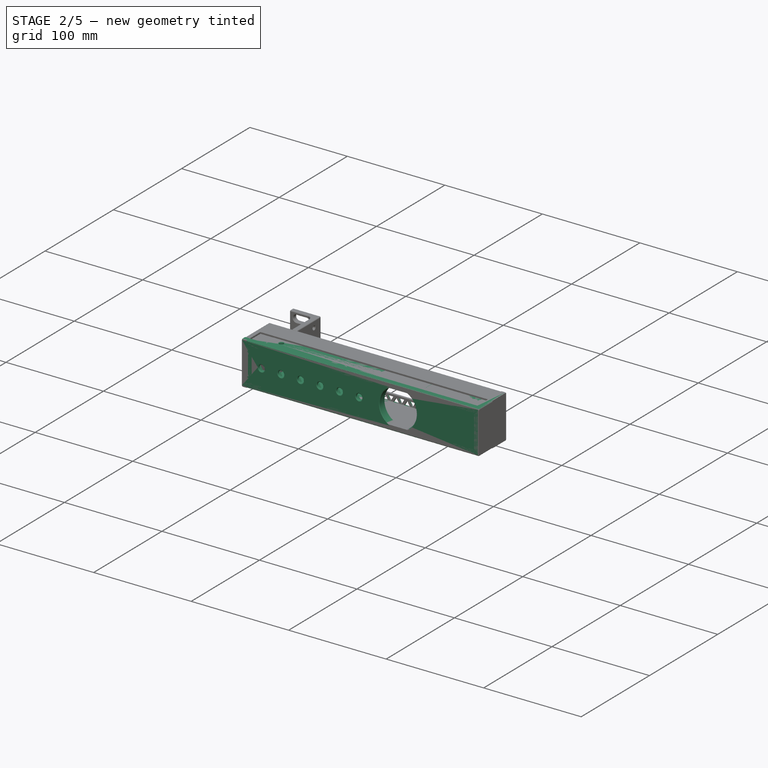
[diagram: stage 2 of 5 — iso view after this stage's code; geometry added in this stage tinted green]
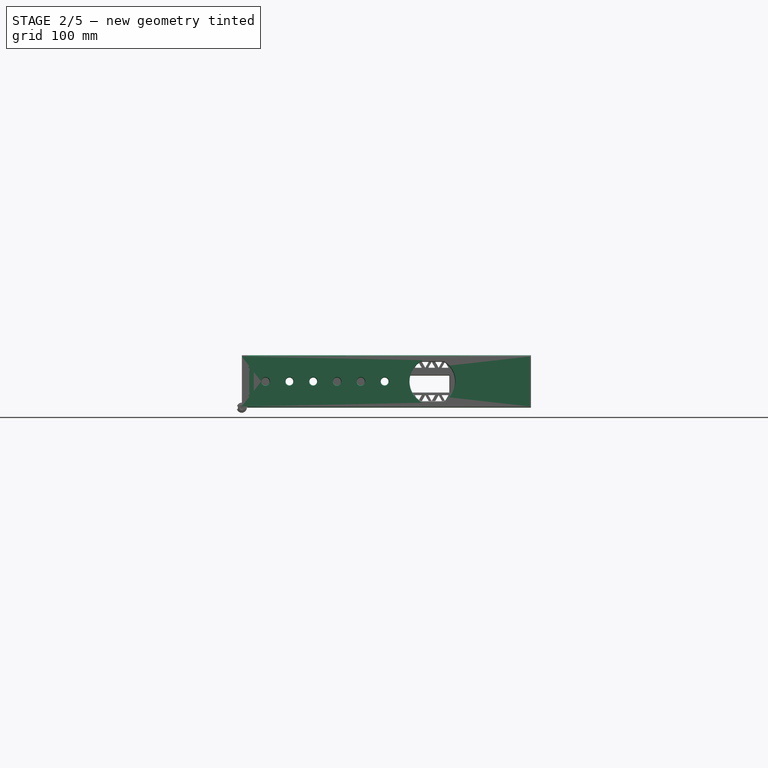
[diagram: stage 2 of 5 — front view after this stage's code; geometry added in this stage tinted green]
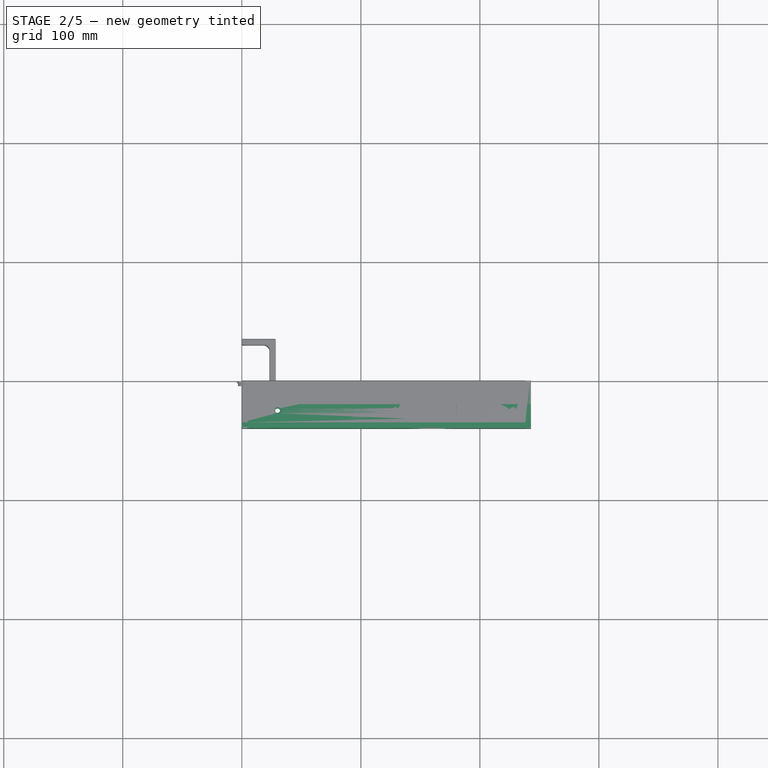
[diagram: stage 2 of 5 — top view after this stage's code; geometry added in this stage tinted green]
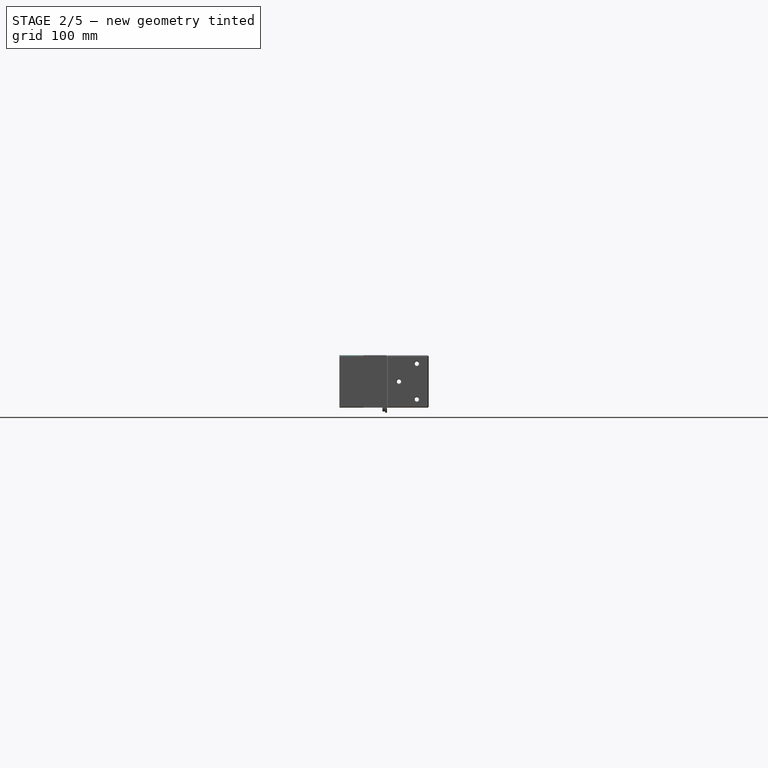
[diagram: stage 2 of 5 — right view after this stage's code; geometry added in this stage tinted green]
FEATURE [Sketcher::SketchObject] Sketch050
  ArcFitTolerance = 1e-06
  AttachmentSupport = -> [Pocket020]
  FullyConstrained = true
  MakeInternals = false
  MapMode = 5
  Placement = pos=(0,-1,0) rot=(1,0,0;1.5708rad)
  sketch-geometry (4):
    g0: LineSegment StartX=27 StartY=39.75 StartZ=0 EndX=27 EndY=4.25 EndZ=0
    g1: LineSegment StartX=27 StartY=4.25 StartZ=0 EndX=73.5 EndY=4.25 EndZ=0
    g2: LineSegment StartX=73.5 StartY=4.25 StartZ=0 EndX=73.5 EndY=39.75 EndZ=0
    g3: LineSegment StartX=73.5 StartY=39.75 StartZ=0 EndX=27 EndY=39.75 EndZ=0
  constraints (12):
    c: Coincident(g0,g1)
    c: Coincident(g1,g2)
    c: Coincident(g2,g3)
    c: Coincident(g3,g0)
    c: Vertical(g0)
    c: Vertical(g2)
    c: Horizontal(g1)
    c: Horizontal(g3)
    c: DistanceX(g3,g3) = 46.5
    c: DistanceY(g0,g0) = 35.5
    c: Distance(g0,g-1) = 4.25
    c: Distance(g0,g-2) = 27
FEATURE [PartDesign::Pocket] Pocket021
  BaseFeature = -> Pocket020
  Direction = (0,1,-2e-16)
  Length = 1
  Length2 = 5
  Placement = pos=(0,0,0) rot=(1,0,0;1.5708rad)
  Profile = -> Sketch050
  ReferenceAxis = -> Sketch050 [N_Axis]
  Refine = true
  Suppressed = false
  Type = 0
FEATURE [Sketcher::SketchObject] Sketch054
  ArcFitTolerance = 1e-06
  FullyConstrained = true
  MakeInternals = false
  MapMode = 5
  Placement = pos=(0,-3,7e-16) rot=(1,0,0;1.5708rad)
  sketch-geometry (4):
    g0: LineSegment StartX=86.3 StartY=39 StartZ=0 EndX=86.3 EndY=5 EndZ=0
    g1: LineSegment StartX=86.3 StartY=5 StartZ=0 EndX=238 EndY=5 EndZ=0
    g2: LineSegment StartX=238 StartY=5 StartZ=0 EndX=238 EndY=39 EndZ=0
    g3: LineSegment StartX=238 StartY=39 StartZ=0 EndX=86.3 EndY=39 EndZ=0
  constraints (12):
    c: Coincident(g0,g1)
    c: Coincident(g1,g2)
    c: Coincident(g2,g3)
    c: Coincident(g3,g0)
    c: Vertical(g0)
    c: Vertical(g2)
    c: Horizontal(g1)
    c: Horizontal(g3)
    c: DistanceY(g0,g0) = 34
    c: DistanceX(g3,g3) = 151.7
    c: Distance(g0,g-1) = 5
    c: Distance(g0,g-2) = 86.3
FEATURE [PartDesign::Pocket] Pocket024
  BaseFeature = -> Pocket021
  Direction = (0,1,-2e-16)
  Length = 1
  Length2 = 5
  Placement = pos=(0,0,0) rot=(1,0,0;1.5708rad)
  Profile = -> Sketch054
  ReferenceAxis = -> Sketch054 [N_Axis]
  Refine = true
  Suppressed = false
  Type = 0
FEATURE [Sketcher::SketchObject] Sketch055
  ArcFitTolerance = 1e-06
  AttachmentSupport = -> [Pocket024]
  FullyConstrained = false
  MakeInternals = false
  MapMode = 5
  Placement = pos=(0,-3,1.3e-15) rot=(1,0,0;1.5708rad)
  sketch-geometry (5):
    g0: LineSegment [constr] StartX=18.0009 StartY=44.7964 StartZ=0 EndX=18.0009 EndY=-2.26828 EndZ=0
    g1: Circle CenterX=11.5 CenterY=32 CenterZ=0 NormalX=0 NormalY=0 NormalZ=1 AngleXU=0 Radius=3.5
    g2: Circle CenterX=11.5 CenterY=22 CenterZ=0 NormalX=0 NormalY=0 NormalZ=1 AngleXU=0 Radius=3.5
    g3: Circle CenterX=11.5 CenterY=12 CenterZ=0 NormalX=0 NormalY=0 NormalZ=1 AngleXU=0 Radius=3.5
    g4: LineSegment [constr] StartX=11.5 StartY=44.9248 StartZ=0 EndX=11.5 EndY=-2.07565 EndZ=0
  constraints (12):
    c: Vertical(g0)
    c: DistanceY(g2,g1) = 10
    c: DistanceY(g3,g2) = 10
    c: Vertical(g4)
    c: PointOnObject(g1,g4)
    c: PointOnObject(g2,g4)
    c: PointOnObject(g3,g4)
    c: Distance(g2,g-1) = 22
    c: Diameter(g1) = 7
    c: Diameter(g2) = 7
    c: Diameter(g3) = 7
    c: Distance(g4,g-2) = 11.5
FEATURE [PartDesign::Hole] Hole
  BaseFeature = -> Pocket024
  CustomThreadClearance = 0
  Depth = 25
  DepthType = 0
  Diameter = 7
  DrillForDepth = false
  DrillPoint = 1
  DrillPointAngle = 118
  HoleCutCountersinkAngle = 90
  HoleCutCustomValues = false
  HoleCutDepth = 1.5
  HoleCutDiameter = 9
  HoleCutType = 1
  ModelThread = false
  Placement = pos=(0,0,0) rot=(1,0,0;1.5708rad)
  Profile = -> Sketch055
  Refine = true
  Suppressed = false
  Tapered = false
  TaperedAngle = 90
  ThreadClass = 0
  ThreadDepth = 25
  ThreadDepthType = 0
  ThreadDirection = 0
  ThreadFit = 0
  ThreadSize = 0
  ThreadType = 0
  Threaded = false
  UseCustomThreadClearance = false
FEATURE [Sketcher::SketchObject] Sketch061
  ArcFitTolerance = 1e-06
  FullyConstrained = false
  MakeInternals = false
  MapMode = 5
  Placement = pos=(0,0,0) rot=(0.707107,0,-0.707107;3.14159rad)
  sketch-geometry (4):
    g0: Circle CenterX=-37 CenterY=10 CenterZ=0 NormalX=0 NormalY=0 NormalZ=1 AngleXU=0 Radius=2.15
    g1: Circle CenterX=-7 CenterY=10 CenterZ=0 NormalX=0 NormalY=0 NormalZ=1 AngleXU=0 Radius=2.15
    g2: LineSegment [constr] StartX=-55.0864 StartY=10 StartZ=0 EndX=11.8343 EndY=10 EndZ=0
    g3: Circle CenterX=-22 CenterY=25 CenterZ=0 NormalX=0 NormalY=0 NormalZ=1 AngleXU=0 Radius=2.15
  constraints (11):
    c: Horizontal(g2)
    c: Distance(g-1,g2) = 10
    c: Distance(g1,g-2) = 7
    c: PointOnObject(g0,g2)
    c: PointOnObject(g1,g2)
    c: Diameter(g0) = 4.3
    c: Diameter(g1) = 4.3
    c: Diameter(g3) = 4.3
    c: DistanceX(g0,g3) = 15
    c: DistanceX(g3,g1) = 15
    c: Distance(g3,g2) = 15
FEATURE [PartDesign::Pocket] Pocket027
  BaseFeature = -> Hole
  Direction = (1,1e-16,2e-16)
  Length = 4.5
  Length2 = 5
  Placement = pos=(0,0,0) rot=(1,0,0;1.5708rad)
  Profile = -> Sketch061
  ReferenceAxis = -> Sketch061 [N_Axis]
  Refine = true
  Suppressed = false
  Type = 0
FEATURE [Sketcher::SketchObject] Sketch081
  ArcFitTolerance = 1e-06
  FullyConstrained = true
  MakeInternals = false
  MapMode = 5
  Placement = pos=(0,2.2e-15,5) rot=(0,0,1;3.14159rad)
  sketch-geometry (3):
    g0: LineSegment StartX=-5 StartY=40 StartZ=0 EndX=-5 EndY=25 EndZ=0
    g1: LineSegment StartX=-5 StartY=25 StartZ=0 EndX=-10 EndY=40 EndZ=0
    g2: LineSegment StartX=-10 StartY=40 StartZ=0 EndX=-5 EndY=40 EndZ=0
  constraints (9):
    c: Vertical(g0)
    c: Coincident(g1,g0)
    c: Coincident(g2,g1)
    c: Coincident(g2,g0)
    c: Horizontal(g2)
    c: DistanceX(g2,g2) = 5
    c: DistanceY(g0,g0) = 15
    c: Distance(g0,g-1) = 40
    c: Distance(g0,g-2) = 5
FEATURE [PartDesign::Pad] Pad023
  BaseFeature = -> Pocket027
  Direction = (0,0,1)
  Length = 34
  Length2 = 10
  Placement = pos=(0,0,0) rot=(1,0,0;1.5708rad)
  Profile = -> Sketch081
  ReferenceAxis = -> Sketch081 [N_Axis]
  Refine = true
  Suppressed = false
  Type = 0
FEATURE [Sketcher::SketchObject] Sketch082
  ArcFitTolerance = 1e-06
  AttachmentSupport = -> [Pad023]
  FullyConstrained = false
  MakeInternals = false
  MapMode = 5
  Placement = pos=(1.72e-14,-40,1.04e-14) rot=(1,0,0;1.5708rad)
  sketch-geometry (3):
    g0: Circle CenterX=5 CenterY=12 CenterZ=0 NormalX=0 NormalY=0 NormalZ=1 AngleXU=0 Radius=1.6
    g1: Circle CenterX=5 CenterY=32 CenterZ=0 NormalX=0 NormalY=0 NormalZ=1 AngleXU=0 Radius=1.6
    g2: LineSegment [constr] StartX=5 StartY=46.8756 StartZ=0 EndX=5 EndY=-4.78172 EndZ=0
  constraints (8):
    c: Vertical(g2)
    c: Diameter(g0) = 3.2
    c: Diameter(g1) = 3.2
    c: PointOnObject(g1,g2)
    c: PointOnObject(g0,g2)
    c: DistanceY(g0,g1) = 20
    c: Distance(g0,g-1) = 12
    c: Distance(g-2,g2) = 5
FEATURE [PartDesign::Pocket] Pocket041
  BaseFeature = -> Pad023
  Direction = (0,1,-2e-16)
  Length = 5
  Length2 = 5
  Placement = pos=(0,0,0) rot=(1,0,0;1.5708rad)
  Profile = -> Sketch082
  ReferenceAxis = -> Sketch082 [N_Axis]
  Refine = true
  Suppressed = false
  Type = 0
FEATURE [Sketcher::SketchObject] Sketch089
  ArcFitTolerance = 1e-06
  AttachmentSupport = -> [XZ_Plane032]
  FullyConstrained = true
  MakeInternals = false
  MapMode = 5
  Placement = pos=(0,0,0) rot=(1,0,0;1.5708rad)
  sketch-geometry (4):
    g0: LineSegment StartX=0 StartY=0 StartZ=0 EndX=243 EndY=0 EndZ=0
    g1: LineSegment StartX=243 StartY=0 StartZ=0 EndX=243 EndY=44 EndZ=0
    g2: LineSegment StartX=243 StartY=44 StartZ=0 EndX=0 EndY=44 EndZ=0
    g3: LineSegment StartX=0 StartY=44 StartZ=0 EndX=0 EndY=0 EndZ=0
  constraints (11):
    c: Coincident(g0,g1)
    c: Coincident(g1,g2)
    c: Coincident(g2,g3)
    c: Coincident(g3,g0)
    c: Horizontal(g0)
    c: Horizontal(g2)
    c: Vertical(g1)
    c: Vertical(g3)
    c: Coincident(g0,g-1)
    c: DistanceX(g2,g2) = 243
    c: DistanceY(g1,g1) = 44
FEATURE [PartDesign::Pad] Pad025
  Direction = (0,-1,2e-16)
  Length = 40
  Length2 = 10
  Placement = pos=(0,0,0) rot=(1,0,0;1.5708rad)
  Profile = -> Sketch089
  ReferenceAxis = -> Sketch089 [N_Axis]
  Refine = true
  Suppressed = false
  Type = 0
FEATURE [Sketcher::SketchObject] Sketch090
  ArcFitTolerance = 1e-06
  AttachmentSupport = -> [Pad025]
  FullyConstrained = true
  MakeInternals = false
  MapMode = 5
  Placement = pos=(0,4.9e-15,0) rot=(-1,0,0;1.5708rad)
  sketch-geometry (4):
    g0: LineSegment StartX=5 StartY=-5 StartZ=0 EndX=5 EndY=-39 EndZ=0
    g1: LineSegment StartX=5 StartY=-39 StartZ=0 EndX=233 EndY=-39 EndZ=0
    g2: LineSegment StartX=233 StartY=-39 StartZ=0 EndX=233 EndY=-5 EndZ=0
    g3: LineSegment StartX=233 StartY=-5 StartZ=0 EndX=5 EndY=-5 EndZ=0
  constraints (12):
    c: Coincident(g0,g1)
    c: Coincident(g1,g2)
    c: Coincident(g2,g3)
    c: Coincident(g3,g0)
    c: Vertical(g0)
    c: Vertical(g2)
    c: Horizontal(g1)
    c: Horizontal(g3)
    c: Distance(g0,g-2) = 5
    c: DistanceX(g1,g1) = 228
    c: DistanceY(g2,g2) = 34
    c: Distance(g0,g-1) = 5
FEATURE [PartDesign::Pocket] Pocket046
  BaseFeature = -> Pad025
  Direction = (0,-1,-2e-16)
  Length = 34
  Length2 = 5
  Placement = pos=(0,0,0) rot=(1,0,0;1.5708rad)
  Profile = -> Sketch090
  ReferenceAxis = -> Sketch090 [N_Axis]
  Refine = true
  Suppressed = false
  Type = 0
FEATURE [Sketcher::SketchObject] Sketch091
  ArcFitTolerance = 1e-06
  AttachmentSupport = -> [Pocket046]
  FullyConstrained = true
  MakeInternals = false
  MapMode = 5
  Placement = pos=(0,4.9e-15,0) rot=(-1,0,0;1.5708rad)
  sketch-geometry (8):
    g0: LineSegment StartX=0 StartY=0 StartZ=0 EndX=0 EndY=-1.6 EndZ=0
    g1: LineSegment StartX=0 StartY=-1.6 StartZ=0 EndX=238.2 EndY=-1.6 EndZ=0
    g2: LineSegment StartX=238.2 StartY=-1.6 StartZ=0 EndX=238.2 EndY=0 EndZ=0
    g3: LineSegment StartX=238.2 StartY=0 StartZ=0 EndX=0 EndY=0 EndZ=0
    g4: LineSegment StartX=0 StartY=-42.4 StartZ=0 EndX=0 EndY=-44 EndZ=0
    g5: LineSegment StartX=0 StartY=-44 StartZ=0 EndX=238.2 EndY=-44 EndZ=0
    g6: LineSegment StartX=238.2 StartY=-44 StartZ=0 EndX=238.2 EndY=-42.4 EndZ=0
    g7: LineSegment StartX=238.2 StartY=-42.4 StartZ=0 EndX=0 EndY=-42.4 EndZ=0
  constraints (24):
    c: Coincident(g0,g1)
    c: Coincident(g1,g2)
    c: Coincident(g2,g3)
    c: Coincident(g3,g0)
    c: Vertical(g0)
    c: Vertical(g2)
    c: Horizontal(g1)
    c: Horizontal(g3)
    c: PointOnObject(g0,g-2)
    c: Coincident(g4,g5)
    c: Coincident(g5,g6)
    c: Coincident(g6,g7)
    c: Coincident(g7,g4)
    c: Vertical(g4)
    c: Vertical(g6)
    c: Horizontal(g5)
    c: Horizontal(g7)
    c: PointOnObject(g4,g-2)
    c: DistanceX(g3,g3) = 238.2
    c: Equal(g3,g5)
    c: Distance(g0,g0) = 1.6
    c: Equal(g0,g4)
    c: PointOnObject(g0,g-1)
    c: Distance(g4,g3) = 44
FEATURE [PartDesign::Pocket] Pocket047
  BaseFeature = -> Pocket046
  Direction = (0,-1,-2e-16)
  Length = 35.2
  Length2 = 5
  Placement = pos=(0,0,0) rot=(1,0,0;1.5708rad)
  Profile = -> Sketch091
  ReferenceAxis = -> Sketch091 [N_Axis]
  Refine = true
  Suppressed = false
  Type = 0
FEATURE [Sketcher::SketchObject] Sketch092
  ArcFitTolerance = 1e-06
  AttachmentSupport = -> [Pocket047]
  FullyConstrained = false
  MakeInternals = false
  MapMode = 5
  Placement = pos=(0,-34,0) rot=(-1,0,0;1.5708rad)
  sketch-geometry (7):
    g0: Circle CenterX=120 CenterY=-22 CenterZ=0 NormalX=0 NormalY=0 NormalZ=1 AngleXU=0 Radius=3.25
    g1: LineSegment [constr] StartX=-11.8918 StartY=-22 StartZ=0 EndX=267.194 EndY=-22 EndZ=0
    g2: Circle CenterX=100 CenterY=-22 CenterZ=0 NormalX=0 NormalY=0 NormalZ=1 AngleXU=0 Radius=3.25
    g3: Circle CenterX=80 CenterY=-22 CenterZ=0 NormalX=0 NormalY=0 NormalZ=1 AngleXU=0 Radius=3.25
    g4: Circle CenterX=60 CenterY=-22 CenterZ=0 NormalX=0 NormalY=0 NormalZ=1 AngleXU=0 Radius=3.25
    g5: Circle CenterX=40 CenterY=-22 CenterZ=0 NormalX=0 NormalY=0 NormalZ=1 AngleXU=0 Radius=3.25
    g6: Circle CenterX=20 CenterY=-22 CenterZ=0 NormalX=0 NormalY=0 NormalZ=1 AngleXU=0 Radius=3.25
  constraints (20):
    c: Horizontal(g1)
    c: Distance(g-1,g1) = 22
    c: PointOnObject(g0,g1)
    c: PointOnObject(g2,g1)
    c: PointOnObject(g3,g1)
    c: PointOnObject(g4,g1)
    c: PointOnObject(g5,g1)
    c: PointOnObject(g6,g1)
    c: DistanceX(g6,g5) = 20
    c: DistanceX(g5,g4) = 20
    c: DistanceX(g4,g3) = 20
    c: DistanceX(g3,g2) = 20
    c: DistanceX(g2,g0) = 20
    c: Distance(g6,g-2) = 20
    c: Diameter(g6) = 6.5
    c: Equal(g6,g5)
    c: Equal(g6,g4)
    c: Equal(g4,g3)
    c: Equal(g3,g2)
    c: Equal(g2,g0)
FEATURE [PartDesign::Pocket] Pocket048
  BaseFeature = -> Pocket047
  Direction = (0,-1,-2e-16)
  Length = 6
  Length2 = 5
  Placement = pos=(0,0,0) rot=(1,0,0;1.5708rad)
  Profile = -> Sketch092
  ReferenceAxis = -> Sketch092 [N_Axis]
  Refine = true
  Suppressed = false
  Type = 0
FEATURE [Sketcher::SketchObject] Sketch093
  ArcFitTolerance = 1e-06
  AttachmentSupport = -> [Pocket048]
  FullyConstrained = false
  MakeInternals = false
  MapMode = 5
  Placement = pos=(0,-34,0) rot=(-1,0,0;1.5708rad)
  sketch-geometry (43):
    g0: LineSegment [constr] StartX=-11.8918 StartY=-22 StartZ=0 EndX=267.194 EndY=-22 EndZ=0
    g1: LineSegment StartX=17.5751 StartY=-26.2 StartZ=0 EndX=22.4249 EndY=-26.2 EndZ=0
    g2: LineSegment StartX=22.4249 StartY=-26.2 StartZ=0 EndX=24.8497 EndY=-22 EndZ=0
    g3: LineSegment StartX=24.8497 StartY=-22 StartZ=0 EndX=22.4249 EndY=-17.8 EndZ=0
    g4: LineSegment StartX=22.4249 StartY=-17.8 StartZ=0 EndX=17.5751 EndY=-17.8 EndZ=0
    g5: LineSegment StartX=17.5751 StartY=-17.8 StartZ=0 EndX=15.1503 EndY=-22 EndZ=0
    g6: LineSegment StartX=15.1503 StartY=-22 StartZ=0 EndX=17.5751 EndY=-26.2 EndZ=0
    g7: Circle [constr] CenterX=20 CenterY=-22 CenterZ=0 NormalX=0 NormalY=0 NormalZ=1 AngleXU=0 Radius=4.84974
    g8: LineSegment StartX=37.5751 StartY=-17.8 StartZ=0 EndX=35.1503 EndY=-22 EndZ=0
    g9: LineSegment StartX=35.1503 StartY=-22 StartZ=0 EndX=37.5751 EndY=-26.2 EndZ=0
    g10: LineSegment StartX=37.5751 StartY=-26.2 StartZ=0 EndX=42.4249 EndY=-26.2 EndZ=0
    g11: LineSegment StartX=42.4249 StartY=-26.2 StartZ=0 EndX=44.8497 EndY=-22 EndZ=0
    g12: LineSegment StartX=44.8497 StartY=-22 StartZ=0 EndX=42.4249 EndY=-17.8 EndZ=0
    g13: LineSegment StartX=42.4249 StartY=-17.8 StartZ=0 EndX=37.5751 EndY=-17.8 EndZ=0
    g14: Circle [constr] CenterX=40 CenterY=-22 CenterZ=0 NormalX=0 NormalY=0 NormalZ=1 AngleXU=0 Radius=4.84974
    g15: LineSegment StartX=57.5751 StartY=-17.8 StartZ=0 EndX=55.1503 EndY=-22 EndZ=0
    g16: LineSegment StartX=55.1503 StartY=-22 StartZ=0 EndX=57.5751 EndY=-26.2 EndZ=0
    g17: LineSegment StartX=57.5751 StartY=-26.2 StartZ=0 EndX=62.4249 EndY=-26.2 EndZ=0
    g18: LineSegment StartX=62.4249 StartY=-26.2 StartZ=0 EndX=64.8497 EndY=-22 EndZ=0
    g19: LineSegment StartX=64.8497 StartY=-22 StartZ=0 EndX=62.4249 EndY=-17.8 EndZ=0
    g20: LineSegment StartX=62.4249 StartY=-17.8 StartZ=0 EndX=57.5751 EndY=-17.8 EndZ=0
    g21: Circle [constr] CenterX=60 CenterY=-22 CenterZ=0 NormalX=0 NormalY=0 NormalZ=1 AngleXU=0 Radius=4.84974
    g22: LineSegment StartX=77.5751 StartY=-17.8 StartZ=0 EndX=75.1503 EndY=-22 EndZ=0
    g23: LineSegment StartX=75.1503 StartY=-22 StartZ=0 EndX=77.5751 EndY=-26.2 EndZ=0
    g24: LineSegment StartX=77.5751 StartY=-26.2 StartZ=0 EndX=82.4249 EndY=-26.2 EndZ=0
    g25: LineSegment StartX=82.4249 StartY=-26.2 StartZ=0 EndX=84.8497 EndY=-22 EndZ=0
    g26: LineSegment StartX=84.8497 StartY=-22 StartZ=0 EndX=82.4249 EndY=-17.8 EndZ=0
    g27: LineSegment StartX=82.4249 StartY=-17.8 StartZ=0 EndX=77.5751 EndY=-17.8 EndZ=0
    g28: Circle [constr] CenterX=80 CenterY=-22 CenterZ=0 NormalX=0 NormalY=0 NormalZ=1 AngleXU=0 Radius=4.84974
    g29: LineSegment StartX=97.5751 StartY=-17.8 StartZ=0 EndX=95.1503 EndY=-22 EndZ=0
    g30: LineSegment StartX=95.1503 StartY=-22 StartZ=0 EndX=97.5751 EndY=-26.2 EndZ=0
    g31: LineSegment StartX=97.5751 StartY=-26.2 StartZ=0 EndX=102.425 EndY=-26.2 EndZ=0
    g32: LineSegment StartX=102.425 StartY=-26.2 StartZ=0 EndX=104.85 EndY=-22 EndZ=0
    g33: LineSegment StartX=104.85 StartY=-22 StartZ=0 EndX=102.425 EndY=-17.8 EndZ=0
    g34: LineSegment StartX=102.425 StartY=-17.8 StartZ=0 EndX=97.5751 EndY=-17.8 EndZ=0
    g35: Circle [constr] CenterX=100 CenterY=-22 CenterZ=0 NormalX=0 NormalY=0 NormalZ=1 AngleXU=0 Radius=4.84974
    g36: LineSegment StartX=117.575 StartY=-17.8 StartZ=0 EndX=115.15 EndY=-22 EndZ=0
    g37: LineSegment StartX=115.15 StartY=-22 StartZ=0 EndX=117.575 EndY=-26.2 EndZ=0
    g38: LineSegment StartX=117.575 StartY=-26.2 StartZ=0 EndX=122.425 EndY=-26.2 EndZ=0
    g39: LineSegment StartX=122.425 StartY=-26.2 StartZ=0 EndX=124.85 EndY=-22 EndZ=0
    g40: LineSegment StartX=124.85 StartY=-22 StartZ=0 EndX=122.425 EndY=-17.8 EndZ=0
    g41: LineSegment StartX=122.425 StartY=-17.8 StartZ=0 EndX=117.575 EndY=-17.8 EndZ=0
    g42: Circle [constr] CenterX=120 CenterY=-22 CenterZ=0 NormalX=0 NormalY=0 NormalZ=1 AngleXU=0 Radius=4.84974
  constraints (104):
    c: Horizontal(g0)
    c: Distance(g-1,g0) = 22
    c: Coincident(g1,g2)
    c: Coincident(g2,g3)
    c: Coincident(g3,g4)
    c: Coincident(g4,g5)
    c: Coincident(g5,g6)
    c: Coincident(g6,g1)
    c: Equal(g1, g2-g6) x5
    c: PointOnObject(g1,g7)
    c: PointOnObject(g2,g7)
    c: PointOnObject(g3,g7)
    c: PointOnObject(g4,g7)
    c: PointOnObject(g5,g7)
    c: PointOnObject(g6,g7)
    c: PointOnObject(g7,g0)
    c: Horizontal(g1)
    c: DistanceY(g1,g4) = 8.4
    c: Distance(g7,g-2) = 20
    c: Coincident(g8,g9)
    c: Coincident(g9,g10)
    c: Coincident(g10,g11)
    c: Coincident(g11,g12)
    c: Coincident(g12,g13)
    c: Coincident(g13,g8)
    c: Equal(g8, g9-g13) x5
    c: PointOnObject(g8,g14)
    c: PointOnObject(g9,g14)
    c: PointOnObject(g10,g14)
    c: PointOnObject(g11,g14)
    c: PointOnObject(g12,g14)
    c: PointOnObject(g13,g14)
    c: PointOnObject(g14,g0)
    c: Coincident(g15,g16)
    c: Coincident(g16,g17)
    c: Coincident(g17,g18)
    c: Coincident(g18,g19)
    c: Coincident(g19,g20)
    c: Coincident(g20,g15)
    c: Equal(g15, g16-g20) x5
    c: PointOnObject(g15,g21)
    c: PointOnObject(g16,g21)
    c: PointOnObject(g17,g21)
    c: PointOnObject(g18,g21)
    c: PointOnObject(g19,g21)
    c: PointOnObject(g20,g21)
    c: PointOnObject(g21,g0)
    c: Coincident(g22,g23)
    c: Coincident(g23,g24)
    c: Coincident(g24,g25)
    c: Coincident(g25,g26)
    c: Coincident(g26,g27)
    c: Coincident(g27,g22)
    c: Equal(g22, g23-g27) x5
    c: PointOnObject(g22,g28)
    c: PointOnObject(g23,g28)
    c: PointOnObject(g24,g28)
    c: PointOnObject(g25,g28)
    c: PointOnObject(g26,g28)
    c: PointOnObject(g27,g28)
    c: PointOnObject(g28,g0)
    c: Coincident(g29,g30)
    c: Coincident(g30,g31)
    c: Coincident(g31,g32)
    c: Coincident(g32,g33)
    c: Coincident(g33,g34)
    c: Coincident(g34,g29)
    c: Equal(g29, g30-g34) x5
    c: PointOnObject(g29,g35)
    c: PointOnObject(g30,g35)
    c: PointOnObject(g31,g35)
    c: PointOnObject(g32,g35)
    c: PointOnObject(g33,g35)
    c: PointOnObject(g34,g35)
    c: PointOnObject(g35,g0)
    c: Coincident(g36,g37)
    c: Coincident(g37,g38)
    c: Coincident(g38,g39)
    c: Coincident(g39,g40)
    c: Coincident(g40,g41)
    c: Coincident(g41,g36)
    c: Equal(g36, g37-g41) x5
    c: PointOnObject(g36,g42)
    c: PointOnObject(g37,g42)
    c: PointOnObject(g38,g42)
    c: PointOnObject(g39,g42)
    c: PointOnObject(g40,g42)
    c: PointOnObject(g41,g42)
    c: PointOnObject(g42,g0)
    c: Horizontal(g10)
    c: Horizontal(g17)
    c: Horizontal(g24)
    c: Horizontal(g31)
    c: Horizontal(g38)
    c: Equal(g6,g9)
    c: Equal(g9,g16)
    c: Equal(g16,g23)
    c: Equal(g23,g30)
    c: Equal(g30,g37)
    c: DistanceX(g7,g14) = 20
    c: DistanceX(g14,g21) = 20
    c: DistanceX(g21,g28) = 20
    c: DistanceX(g28,g35) = 20
    c: DistanceX(g35,g42) = 20
FEATURE [PartDesign::Pocket] Pocket049
  BaseFeature = -> Pocket048
  Direction = (0,-1,-2e-16)
  Length = 4
  Length2 = 5
  Placement = pos=(0,0,0) rot=(1,0,0;1.5708rad)
  Profile = -> Sketch093
  ReferenceAxis = -> Sketch093 [N_Axis]
  Refine = true
  Suppressed = false
  Type = 0
FEATURE [Sketcher::SketchObject] Sketch098
  ArcFitTolerance = 1e-06
  FullyConstrained = false
  MakeInternals = false
  MapMode = 5
  Placement = pos=(0,0,42.4) rot=(0,0,1;3.14159rad)
  sketch-geometry (4):
    g0: LineSegment [constr] StartX=-268.515 StartY=25 StartZ=0 EndX=64.5036 EndY=25 EndZ=0
    g1: Circle CenterX=-228 CenterY=25 CenterZ=0 NormalX=0 NormalY=0 NormalZ=1 AngleXU=0 Radius=2.15
    g2: Circle CenterX=-129 CenterY=25 CenterZ=0 NormalX=0 NormalY=0 NormalZ=1 AngleXU=0 Radius=2.15
    g3: Circle CenterX=-30 CenterY=25 CenterZ=0 NormalX=0 NormalY=0 NormalZ=1 AngleXU=0 Radius=2.15
  constraints (11):
    c: Horizontal(g0)
    c: Distance(g-1,g0) = 25
    c: PointOnObject(g1,g0)
    c: Distance(g1,g-2) = 228
    c: Diameter(g1) = 4.3
    c: PointOnObject(g2,g0)
    c: DistanceX(g1,g2) = 99
    c: DistanceX(g2,g3) = 99
    c: Equal(g1,g2)
    c: Equal(g2,g3)
    c: PointOnObject(g3,g0)
FEATURE [PartDesign::Pocket] Pocket053
  BaseFeature = -> Pocket049
  Direction = (0,0,-1)
  Length = 44
  Length2 = 5
  Placement = pos=(0,0,0) rot=(1,0,0;1.5708rad)
  Profile = -> Sketch098
  ReferenceAxis = -> Sketch098 [N_Axis]
  Refine = true
  Suppressed = false
  Type = 0
FEATURE [Sketcher::SketchObject] Sketch101
  ArcFitTolerance = 1e-06
  AttachmentSupport = -> [Pocket053]
  FullyConstrained = false
  MakeInternals = false
  MapMode = 5
  Placement = pos=(5,0,0) rot=(0.707107,0,0.707107;3.14159rad)
  sketch-geometry (4):
    g0: LineSegment [constr] StartX=-6.55865 StartY=20 StartZ=0 EndX=58.6777 EndY=20 EndZ=0
    g1: Circle CenterX=12 CenterY=20 CenterZ=0 NormalX=0 NormalY=0 NormalZ=1 AngleXU=0 Radius=1.6
    g2: Circle CenterX=32 CenterY=20 CenterZ=0 NormalX=0 NormalY=0 NormalZ=1 AngleXU=0 Radius=1.6
    g3: Circle CenterX=22 CenterY=10 CenterZ=0 NormalX=0 NormalY=0 NormalZ=1 AngleXU=0 Radius=1.6
  constraints (11):
    c: Horizontal(g0)
    c: PointOnObject(g1,g0)
    c: PointOnObject(g2,g0)
    c: DistanceX(g1,g2) = 20
    c: Distance(g1,g-2) = 12
    c: Distance(g3,g-1) = 10
    c: Distance(g-1,g0) = 20
    c: Distance(g3,g-2) = 22
    c: Diameter(g1) = 3.2
    c: Equal(g1,g2)
    c: Equal(g2,g3)
FEATURE [PartDesign::Hole] Hole012
  BaseFeature = -> Pocket053
  CustomThreadClearance = 0
  Depth = 25
  DepthType = 0
  Diameter = 3.5
  DrillForDepth = false
  DrillPoint = 1
  DrillPointAngle = 118
  HoleCutCountersinkAngle = 90
  HoleCutCustomValues = false
  HoleCutDepth = 2
  HoleCutDiameter = 6.1
  HoleCutType = 1
  ModelThread = false
  Placement = pos=(0,0,0) rot=(1,0,0;1.5708rad)
  Profile = -> Sketch101
  Refine = true
  Suppressed = false
  Tapered = false
  TaperedAngle = 90
  ThreadClass = 0
  ThreadDepth = 25
  ThreadDepthType = 0
  ThreadDirection = 0
  ThreadFit = 0
  ThreadSize = 0
  ThreadType = 0
  Threaded = false
  UseCustomThreadClearance = false
FEATURE [Sketcher::SketchObject] Sketch102
  ArcFitTolerance = 1e-06
  FullyConstrained = true
  MakeInternals = false
  MapMode = 5
  Placement = pos=(18,0,0) rot=(0.707107,0,0.707107;3.14159rad)
  sketch-geometry (8):
    g0: LineSegment StartX=1.6 StartY=40 StartZ=0 EndX=1.6 EndY=20 EndZ=0
    g1: LineSegment StartX=1.6 StartY=20 StartZ=0 EndX=5 EndY=20 EndZ=0
    g2: LineSegment StartX=5 StartY=20 StartZ=0 EndX=5 EndY=40 EndZ=0
    g3: LineSegment StartX=5 StartY=40 StartZ=0 EndX=1.6 EndY=40 EndZ=0
    g4: LineSegment StartX=39 StartY=20 StartZ=0 EndX=42.4 EndY=20 EndZ=0
    g5: LineSegment StartX=42.4 StartY=20 StartZ=0 EndX=42.4 EndY=40 EndZ=0
    g6: LineSegment StartX=42.4 StartY=40 StartZ=0 EndX=39 EndY=40 EndZ=0
    g7: LineSegment StartX=39 StartY=40 StartZ=0 EndX=39 EndY=20 EndZ=0
  constraints (24):
    c: Coincident(g0,g1)
    c: Coincident(g1,g2)
    c: Coincident(g2,g3)
    c: Coincident(g3,g0)
    c: Vertical(g0)
    c: Vertical(g2)
    c: Horizontal(g1)
    c: Horizontal(g3)
    c: DistanceY(g0,g0) = 20
    c: DistanceX(g3,g3) = 3.4
    c: Distance(g-2,g0) = 1.6
    c: Distance(g0,g-1) = 40
    c: Coincident(g4,g5)
    c: Coincident(g5,g6)
    c: Coincident(g6,g7)
    c: Coincident(g7,g4)
    c: Horizontal(g4)
    c: Horizontal(g6)
    c: Vertical(g5)
    c: Vertical(g7)
    c: Equal(g1,g4)
    c: Equal(g0,g7)
    c: Distance(g6,g-1) = 40
    c: Distance(g4,g-2) = 42.4
FEATURE [PartDesign::Pad] Pad027
  BaseFeature = -> Pocket041
  Direction = (1,-1e-16,-2e-16)
  Length = 2
  Length2 = 10
  Placement = pos=(0,0,0) rot=(1,0,0;1.5708rad)
  Profile = -> Sketch102
  ReferenceAxis = -> Sketch102 [N_Axis]
  Refine = true
  Suppressed = false
  Type = 0
FEATURE [Sketcher::SketchObject] Sketch103
  ArcFitTolerance = 1e-06
  AttachmentSupport = -> [Pad027]
  FullyConstrained = true
  MakeInternals = false
  MapMode = 5
  Placement = pos=(0,6e-16,1.6) rot=(1,0,0;3.14159rad)
  sketch-geometry (3):
    g0: LineSegment StartX=18 StartY=20 StartZ=0 EndX=20 EndY=26 EndZ=0
    g1: LineSegment StartX=20 StartY=26 StartZ=0 EndX=20 EndY=20 EndZ=0
    g2: LineSegment StartX=20 StartY=20 StartZ=0 EndX=18 EndY=20 EndZ=0
  constraints (9):
    c: Coincident(g1,g0)
    c: Vertical(g1)
    c: Coincident(g2,g1)
    c: Coincident(g2,g0)
    c: Horizontal(g2)
    c: DistanceY(g1,g1) = 6
    c: DistanceX(g2,g2) = 2
    c: Distance(g0,g-1) = 26
    c: Distance(g1,g-2) = 20
FEATURE [PartDesign::Pocket] Pocket056
  BaseFeature = -> Pad027
  Direction = (0,0,1)
  Length = 44
  Length2 = 5
  Placement = pos=(0,0,0) rot=(1,0,0;1.5708rad)
  Profile = -> Sketch103
  ReferenceAxis = -> Sketch103 [N_Axis]
  Refine = true
  Suppressed = false
  Type = 0
FEATURE [Sketcher::SketchObject] Sketch104
  ArcFitTolerance = 1e-06
  AttachmentSupport = -> [Pocket056]
  FullyConstrained = false
  MakeInternals = false
  MapMode = 5
  Placement = pos=(0,1.87e-14,42.4) rot=(0,0,1;3.14159rad)
  sketch-geometry (4):
    g0: LineSegment [constr] StartX=11.109 StartY=30 StartZ=0 EndX=-274.98 EndY=30 EndZ=0
    g1: Circle CenterX=-213 CenterY=30 CenterZ=0 NormalX=0 NormalY=0 NormalZ=1 AngleXU=0 Radius=2.15
    g2: Circle CenterX=-114 CenterY=30 CenterZ=0 NormalX=0 NormalY=0 NormalZ=1 AngleXU=0 Radius=2.15
    g3: Circle CenterX=-15 CenterY=30 CenterZ=0 NormalX=0 NormalY=0 NormalZ=1 AngleXU=0 Radius=2.15
  constraints (11):
    c: Horizontal(g0)
    c: Distance(g-1,g0) = 30
    c: PointOnObject(g1,g0)
    c: PointOnObject(g2,g0)
    c: PointOnObject(g3,g0)
    c: DistanceX(g1,g2) = 99
    c: Distance(g3,g-2) = 15
    c: Diameter(g3) = 4.3
    c: DistanceX(g2,g3) = 99
    c: Equal(g3,g2)
    c: Equal(g2,g1)
FEATURE [PartDesign::Pocket] Pocket057  label="top-bottom-mount"
  BaseFeature = -> Pocket056
  Direction = (0,0,-1)
  Length = 44
  Length2 = 5
  Placement = pos=(0,0,0) rot=(1,0,0;1.5708rad)
  Profile = -> Sketch104
  ReferenceAxis = -> Sketch104 [N_Axis]
  Refine = true
  Suppressed = false
  Type = 0
FEATURE [Sketcher::SketchObject] Sketch105
  ArcFitTolerance = 1e-06
  FullyConstrained = false
  MakeInternals = false
  MapMode = 5
  Placement = pos=(0,4.9e-15,0) rot=(-1,0,0;1.5708rad)
  sketch-geometry (3):
    g0: LineSegment [constr] StartX=238 StartY=3.34149 StartZ=0 EndX=238 EndY=-47.9054 EndZ=0
    g1: Circle CenterX=238 CenterY=-12 CenterZ=0 NormalX=0 NormalY=0 NormalZ=1 AngleXU=0 Radius=1.6
    g2: Circle CenterX=238 CenterY=-32 CenterZ=0 NormalX=0 NormalY=0 NormalZ=1 AngleXU=0 Radius=1.6
  constraints (8):
    c: Vertical(g0)
    c: Distance(g-2,g0) = 238
    c: PointOnObject(g1,g0)
    c: PointOnObject(g2,g0)
    c: Diameter(g1) = 3.2
    c: Equal(g1,g2)
    c: DistanceY(g2,g1) = 20
    c: Distance(g1,g-1) = 12
FEATURE [PartDesign::Pocket] Pocket058
  BaseFeature = -> Hole012
  Direction = (0,-1,-2e-16)
  Length = 20
  Length2 = 5
  Placement = pos=(0,0,0) rot=(1,0,0;1.5708rad)
  Profile = -> Sketch105
  ReferenceAxis = -> Sketch105 [N_Axis]
  Refine = true
  Suppressed = false
  Type = 0
FEATURE [Sketcher::SketchObject] Sketch106
  ArcFitTolerance = 1e-06
  AttachmentSupport = -> [Pocket057]
  FullyConstrained = false
  MakeInternals = false
  MapMode = 5
  Placement = pos=(238,0,0) rot=(0.707107,0,-0.707107;3.14159rad)
  sketch-geometry (4):
    g0: LineSegment [constr] StartX=-58.1272 StartY=15 StartZ=0 EndX=11.6881 EndY=15 EndZ=0
    g1: Circle CenterX=-32 CenterY=15 CenterZ=0 NormalX=0 NormalY=0 NormalZ=1 AngleXU=0 Radius=2.15
    g2: Circle CenterX=-12 CenterY=15 CenterZ=0 NormalX=0 NormalY=0 NormalZ=1 AngleXU=0 Radius=2.15
    g3: Circle CenterX=-22 CenterY=25 CenterZ=0 NormalX=0 NormalY=0 NormalZ=1 AngleXU=0 Radius=2.15
  constraints (11):
    c: Horizontal(g0)
    c: Distance(g-1,g0) = 15
    c: PointOnObject(g1,g0)
    c: PointOnObject(g2,g0)
    c: Diameter(g1) = 4.3
    c: Equal(g1,g2)
    c: Equal(g2,g3)
    c: DistanceX(g1,g2) = 20
    c: Distance(g2,g-2) = 12
    c: Distance(g3,g-2) = 22
    c: Distance(g3,g-1) = 25
FEATURE [PartDesign::Pocket] Pocket059
  BaseFeature = -> Pocket057
  Direction = (1,0,2e-16)
  Length = 5
  Length2 = 5
  Placement = pos=(0,0,0) rot=(1,0,0;1.5708rad)
  Profile = -> Sketch106
  ReferenceAxis = -> Sketch106 [N_Axis]
  Refine = true
  Suppressed = false
  Type = 0
FEATURE [PartDesign::Body] Body021  label="Body022"
  AllowCompound = false
  Group = -> [Sketch115,Pad029,Chamfer025,Sketch116,Hole015]
  Origin = -> Origin036
  Tip = -> Hole015
FEATURE [App::Part] Part013  label="top-plate001"
  Group = -> [Body021,Screw018,Screw019,Screw020,Screw021,Screw022,Screw024,Screw025,Screw026,Screw027,Screw028,Screw031,Screw030]
  Origin = -> Origin035
  Placement = pos=(178,-20,44) rot=(0,1,0;3.14159rad)
FEATURE [Sketcher::SketchObject] Sketch117
  ArcFitTolerance = 1e-06
  FullyConstrained = true
  MakeInternals = false
  MapMode = 5
  Placement = pos=(5,0,0) rot=(0.707107,0,0.707107;3.14159rad)
  sketch-geometry (6):
    g0: LineSegment StartX=5 StartY=3 StartZ=0 EndX=5 EndY=8 EndZ=0
    g1: LineSegment StartX=5 StartY=8 StartZ=0 EndX=7.2 EndY=8 EndZ=0
    g2: LineSegment StartX=7.2 StartY=8 StartZ=0 EndX=5 EndY=3 EndZ=0
    g3: LineSegment StartX=39 StartY=3 StartZ=0 EndX=39 EndY=8 EndZ=0
    g4: LineSegment StartX=39 StartY=8 StartZ=0 EndX=36.8 EndY=8 EndZ=0
    g5: LineSegment StartX=36.8 StartY=8 StartZ=0 EndX=39 EndY=3 EndZ=0
  constraints (18):
    c: Vertical(g0)
    c: Coincident(g1,g0)
    c: Coincident(g2,g1)
    c: Coincident(g2,g0)
    c: Horizontal(g1)
    c: DistanceY(g0,g0) = 5
    c: Distance(g0,g-1) = 3
    c: Distance(g0,g-2) = 5
    c: DistanceX(g1,g1) = 2.2
    c: Vertical(g3)
    c: Coincident(g4,g3)
    c: Horizontal(g4)
    c: Coincident(g5,g4)
    c: Equal(g0,g3)
    c: Equal(g1,g4)
    c: Coincident(g5,g3)
    c: Distance(g3,g-2) = 39
    c: Distance(g3,g-1) = 3
FEATURE [PartDesign::Pad] Pad030
  BaseFeature = -> Pocket059
  Direction = (1,-1e-16,-2e-16)
  Length = 12
  Length2 = 10
  Placement = pos=(0,0,0) rot=(1,0,0;1.5708rad)
  Profile = -> Sketch117
  ReferenceAxis = -> Sketch117 [N_Axis]
  Refine = true
  Suppressed = false
  Type = 0
FEATURE [Sketcher::SketchObject] Sketch118
  ArcFitTolerance = 1e-06
  AttachmentSupport = -> [Pad030]
  FullyConstrained = false
  MakeInternals = false
  MapMode = 5
  Placement = pos=(-7e-16,-8,2.5e-15) rot=(1,0,0;1.5708rad)
  sketch-geometry (3):
    g0: LineSegment [constr] StartX=11.5 StartY=45.1464 StartZ=0 EndX=11.5 EndY=-2.00889 EndZ=0
    g1: Circle CenterX=11.5 CenterY=38 CenterZ=0 NormalX=0 NormalY=0 NormalZ=1 AngleXU=0 Radius=1
    g2: Circle CenterX=11.5 CenterY=6 CenterZ=0 NormalX=0 NormalY=0 NormalZ=1 AngleXU=0 Radius=1
  constraints (8):
    c: Vertical(g0)
    c: Distance(g-2,g0) = 11.5
    c: PointOnObject(g1,g0)
    c: PointOnObject(g2,g0)
    c: Distance(g2,g-1) = 6
    c: Diameter(g2) = 2
    c: Equal(g2,g1)
    c: DistanceY(g2,g1) = 32
FEATURE [PartDesign::Pocket] Pocket065
  BaseFeature = -> Pad030
  Direction = (0,1,-2e-16)
  Length = 5
  Length2 = 5
  Placement = pos=(0,0,0) rot=(1,0,0;1.5708rad)
  Profile = -> Sketch118
  ReferenceAxis = -> Sketch118 [N_Axis]
  Refine = true
  Suppressed = false
  Type = 0
FEATURE [Sketcher::SketchObject] Sketch120
  ArcFitTolerance = 1e-06
  FullyConstrained = false
  MakeInternals = false
  MapMode = 5
  Placement = pos=(0,1.87e-14,42.4) rot=(0,0,1;3.14159rad)
  sketch-geometry (3):
    g0: Circle CenterX=-233.8 CenterY=26 CenterZ=0 NormalX=0 NormalY=0 NormalZ=1 AngleXU=0 Radius=2.15
    g1: Circle CenterX=-92.8 CenterY=26 CenterZ=0 NormalX=0 NormalY=0 NormalZ=1 AngleXU=0 Radius=2.15
    g2: LineSegment [constr] StartX=-257.961 StartY=26 StartZ=0 EndX=-76.4085 EndY=26 EndZ=0
  constraints (8):
    c: Horizontal(g2)
    c: Distance(g-1,g2) = 26
    c: PointOnObject(g0,g2)
    c: PointOnObject(g1,g2)
    c: DistanceX(g0,g1) = 141
    c: Distance(g1,g-2) = 92.8
    c: Diameter(g0) = 4.3
    c: Diameter(g1) = 4.3
FEATURE [PartDesign::Pocket] Pocket067
  BaseFeature = -> Pocket065
  Direction = (0,0,-1)
  Length = 5
  Length2 = 5
  Placement = pos=(0,0,0) rot=(1,0,0;1.5708rad)
  Profile = -> Sketch120
  ReferenceAxis = -> Sketch120 [N_Axis]
  Refine = true
  Suppressed = false
  Type = 0
FEATURE [Sketcher::SketchObject] Sketch121
  ArcFitTolerance = 1e-06
  FullyConstrained = false
  MakeInternals = false
  MapMode = 5
  Placement = pos=(0,1e-16,5) rot=(0,0,1;3.14159rad)
  sketch-geometry (9):
    g0: LineSegment [constr] StartX=-244.172 StartY=29.5 StartZ=0 EndX=-73.7033 EndY=29.5 EndZ=0
    g1: LineSegment StartX=-238 StartY=29.5 StartZ=0 EndX=-238 EndY=14.5 EndZ=0
    g2: LineSegment StartX=-238 StartY=14.5 StartZ=0 EndX=-230.3 EndY=14.5 EndZ=0
    g3: LineSegment StartX=-230.3 StartY=14.5 StartZ=0 EndX=-230.3 EndY=29.5 EndZ=0
    g4: LineSegment StartX=-230.3 StartY=29.5 StartZ=0 EndX=-238 EndY=29.5 EndZ=0
    g5: LineSegment StartX=-96.3 StartY=29.5 StartZ=0 EndX=-96.3 EndY=14.5 EndZ=0
    g6: LineSegment StartX=-96.3 StartY=14.5 StartZ=0 EndX=-89.3 EndY=14.5 EndZ=0
    g7: LineSegment StartX=-89.3 StartY=14.5 StartZ=0 EndX=-89.3 EndY=29.5 EndZ=0
    g8: LineSegment StartX=-89.3 StartY=29.5 StartZ=0 EndX=-96.3 EndY=29.5 EndZ=0
  constraints (26):
    c: Horizontal(g0)
    c: Distance(g-1,g0) = 29.5
    c: Coincident(g1,g2)
    c: Coincident(g2,g3)
    c: Coincident(g3,g4)
    c: Coincident(g4,g1)
    c: Vertical(g1)
    c: Vertical(g3)
    c: Horizontal(g2)
    c: Horizontal(g4)
    c: Coincident(g5,g6)
    c: Coincident(g6,g7)
    c: Coincident(g7,g8)
    c: Coincident(g8,g5)
    c: Vertical(g5)
    c: Vertical(g7)
    c: Horizontal(g6)
    c: Horizontal(g8)
    c: DistanceX(g4,g4) = 7.7
    c: DistanceX(g8,g8) = 7
    c: DistanceY(g7,g7) = 15
    c: PointOnObject(g1,g0)
    c: PointOnObject(g5,g0)
    c: DistanceX(g1,g5) = 141.7
    c: Distance(g7,g-2) = 89.3
    c: Equal(g3,g7)
FEATURE [PartDesign::Pad] Pad031
  BaseFeature = -> Pocket067
  Direction = (0,0,1)
  Length = 6.3
  Length2 = 10
  Placement = pos=(0,0,0) rot=(1,0,0;1.5708rad)
  Profile = -> Sketch121
  ReferenceAxis = -> Sketch121 [N_Axis]
  Refine = true
  Suppressed = false
  Type = 0
FEATURE [Sketcher::SketchObject] Sketch122
  ArcFitTolerance = 1e-06
  AttachmentSupport = -> [Pad031]
  FullyConstrained = false
  MakeInternals = false
  MapMode = 5
  Placement = pos=(0,0,11.3) rot=(0,0,1;3.14159rad)
  sketch-geometry (3):
    g0: LineSegment [constr] StartX=-244.251 StartY=26 StartZ=0 EndX=-83.5576 EndY=26 EndZ=0
    g1: Circle CenterX=-233.8 CenterY=26 CenterZ=0 NormalX=0 NormalY=0 NormalZ=1 AngleXU=0 Radius=2.15
    g2: Circle CenterX=-92.8 CenterY=26 CenterZ=0 NormalX=0 NormalY=0 NormalZ=1 AngleXU=0 Radius=2.15
  constraints (8):
    c: Horizontal(g0)
    c: Distance(g0,g-1) = 26
    c: PointOnObject(g1,g0)
    c: PointOnObject(g2,g0)
    c: DistanceX(g1,g2) = 141
    c: Distance(g2,g-2) = 92.8
    c: Diameter(g1) = 4.3
    c: Diameter(g2) = 4.3
FEATURE [PartDesign::Pocket] Pocket068
  BaseFeature = -> Pad031
  Direction = (0,0,-1)
  Length = 5
  Length2 = 5
  Placement = pos=(0,0,0) rot=(1,0,0;1.5708rad)
  Profile = -> Sketch122
  ReferenceAxis = -> Sketch122 [N_Axis]
  Refine = true
  Suppressed = false
  Type = 0
FEATURE [PartDesign::Body] Body  label="Body019"
  AllowCompound = false
  Group = -> [Sketch084,Pad,Sketch085,Pocket042,Sketch086,Pocket043,Sketch087,Pocket044,Sketch088,Pocket045,Fillet015,Fillet016,Chamfer013,Fillet021,Sketch099,Pocket054,Sketch100,Pocket055,Chamfer016,Sketch107,Pocket060,Chamfer022,Sketch124,Pocket069,Fillet032]
  Origin = -> Origin030
  Tip = -> Fillet032
FEATURE [App::Part] Part010  label="backpanel-iec-only"
  Group = -> [Body]
  Origin = -> Origin
  Placement = pos=(-250,-110,0) rot=(0,0,1;0rad)
FEATURE [Sketcher::SketchObject] Sketch125
  ArcFitTolerance = 1e-06
  FullyConstrained = true
  MakeInternals = false
  MapMode = 5
  Placement = pos=(0,-34,0) rot=(-1,0,0;1.5708rad)
  sketch-geometry (8):
    g0: LineSegment StartX=5 StartY=-5 StartZ=0 EndX=5 EndY=-39 EndZ=0
    g1: LineSegment StartX=5 StartY=-39 StartZ=0 EndX=233 EndY=-39 EndZ=0
    g2: LineSegment StartX=233 StartY=-39 StartZ=0 EndX=233 EndY=-5 EndZ=0
    g3: LineSegment StartX=233 StartY=-5 StartZ=0 EndX=5 EndY=-5 EndZ=0
    g4: ArcOfCircle CenterX=20 CenterY=-22 CenterZ=0 NormalX=0 NormalY=0 NormalZ=1 AngleXU=0 Radius=9 StartAngle=1.5708 EndAngle=4.71239
    g5: ArcOfCircle CenterX=120 CenterY=-22 CenterZ=0 NormalX=0 NormalY=0 NormalZ=1 AngleXU=0 Radius=9 StartAngle=4.71239 EndAngle=7.85398
    g6: LineSegment StartX=20 StartY=-13 StartZ=0 EndX=120 EndY=-13 EndZ=0
    g7: LineSegment StartX=20 StartY=-31 StartZ=0 EndX=120 EndY=-31 EndZ=0
  constraints (22):
    c: Coincident(g0,g1)
    c: Coincident(g1,g2)
    c: Coincident(g2,g3)
    c: Coincident(g3,g0)
    c: Vertical(g0)
    c: Vertical(g2)
    c: Horizontal(g1)
    c: Horizontal(g3)
    c: DistanceY(g0,g0) = 34
    c: DistanceX(g3,g3) = 228
    c: Distance(g-2,g0) = 5
    c: Distance(g-1,g3) = 5
    c: Tangent(g4,g6) = 1.5708
    c: Tangent(g4,g7) = -1.5708
    c: Tangent(g5,g6) = 1.5708
    c: Tangent(g5,g7) = -1.5708
    c: Equal(g4,g5)
    c: Horizontal(g6)
    c: DistanceX(g4,g5) = 100
    c: Distance(g5,g-1) = 22
    c: Distance(g4,g-2) = 20
    c: Radius(g4) = 9
FEATURE [PartDesign::Pocket] Pocket070
  BaseFeature = -> Pocket058
  Direction = (0,-1,-2e-16)
  Length = 3
  Length2 = 5
  Placement = pos=(0,0,0) rot=(1,0,0;1.5708rad)
  Profile = -> Sketch125
  ReferenceAxis = -> Sketch125 [N_Axis]
  Refine = true
  Suppressed = false
  Type = 0
FEATURE [PartDesign::Pocket] Pocket083
  BaseFeature = -> Pocket068
  Direction = (1,0,2e-16)
  Length = 148.7
  Length2 = 5
  Placement = pos=(0,0,0) rot=(1,0,0;1.5708rad)
  Profile = -> Sketch123
  ReferenceAxis = -> Sketch123 [N_Axis]
  Refine = true
  Suppressed = false
  Type = 0
FEATURE [Sketcher::SketchObject] Sketch142
  ArcFitTolerance = 1e-06
  FullyConstrained = true
  MakeInternals = false
  MapMode = 5
  Placement = pos=(0,4e-16,1.6) rot=(1,0,0;3.14159rad)
  sketch-geometry (4):
    g0: LineSegment StartX=175 StartY=40 StartZ=0 EndX=175 EndY=35 EndZ=0
    g1: LineSegment StartX=175 StartY=35 StartZ=0 EndX=185 EndY=35 EndZ=0
    g2: LineSegment StartX=185 StartY=35 StartZ=0 EndX=185 EndY=40 EndZ=0
    g3: LineSegment StartX=185 StartY=40 StartZ=0 EndX=175 EndY=40 EndZ=0
  constraints (12):
    c: Coincident(g0,g1)
    c: Coincident(g1,g2)
    c: Coincident(g2,g3)
    c: Coincident(g3,g0)
    c: Vertical(g0)
    c: Vertical(g2)
    c: Horizontal(g1)
    c: Horizontal(g3)
    c: Distance(g0,g-2) = 175
    c: DistanceX(g3,g3) = 10
    c: DistanceY(g0,g0) = 5
    c: Distance(g0,g-1) = 40
FEATURE [PartDesign::Pocket] Pocket084
  BaseFeature = -> Pocket083
  Direction = (0,1e-16,1)
  Length = 5
  Length2 = 5
  Placement = pos=(0,0,0) rot=(1,0,0;1.5708rad)
  Profile = -> Sketch142
  ReferenceAxis = -> Sketch142 [N_Axis]
  Refine = true
  Suppressed = false
  Type = 0
FEATURE [Sketcher::SketchObject] Sketch144
  ArcFitTolerance = 1e-06
  AttachmentOffset = pos=(0,0,2) rot=(0,0,1;0rad)
  AttachmentSupport = -> [Pocket084]
  FullyConstrained = false
  MakeInternals = false
  MapMode = 5
  Placement = pos=(0,-4,4e-16) rot=(1,0,0;1.5708rad)
  sketch-geometry (18):
    g0: LineSegment StartX=92 StartY=38.5 StartZ=0 EndX=89.1132 EndY=33.5 EndZ=0
    g1: LineSegment StartX=89.1132 StartY=33.5 StartZ=0 EndX=94.8868 EndY=33.5 EndZ=0
    g2: LineSegment StartX=94.8868 StartY=33.5 StartZ=0 EndX=92 EndY=38.5 EndZ=0
    g3: Circle [constr] CenterX=92 CenterY=35.1667 CenterZ=0 NormalX=0 NormalY=0 NormalZ=1 AngleXU=0 Radius=3.33333
    g4: LineSegment StartX=97.8868 StartY=33.5 StartZ=0 EndX=100.774 EndY=38.5 EndZ=0
    g5: LineSegment StartX=100.774 StartY=38.5 StartZ=0 EndX=95 EndY=38.5 EndZ=0
    g6: LineSegment StartX=95 StartY=38.5 StartZ=0 EndX=97.8868 EndY=33.5 EndZ=0
    g7: Circle [constr] CenterX=97.8868 CenterY=36.8333 CenterZ=0 NormalX=0 NormalY=0 NormalZ=1 AngleXU=0 Radius=3.33333
    g8: LineSegment [constr] StartX=85.2559 StartY=33.5 StartZ=0 EndX=246.464 EndY=33.5 EndZ=0
    g9: LineSegment [constr] StartX=79.5174 StartY=5.5 StartZ=0 EndX=247.868 EndY=5.5 EndZ=0
    g10: LineSegment StartX=97.8868 StartY=10.5 StartZ=0 EndX=95 EndY=5.5 EndZ=0
    g11: LineSegment StartX=95 StartY=5.5 StartZ=0 EndX=100.774 EndY=5.5 EndZ=0
    g12: LineSegment StartX=100.774 StartY=5.5 StartZ=0 EndX=97.8868 EndY=10.5 EndZ=0
    g13: Circle [constr] CenterX=97.8868 CenterY=7.16667 CenterZ=0 NormalX=0 NormalY=0 NormalZ=1 AngleXU=0 Radius=3.33333
    g14: LineSegment StartX=92 StartY=5.5 StartZ=0 EndX=94.8868 EndY=10.5 EndZ=0
    g15: LineSegment StartX=94.8868 StartY=10.5 StartZ=0 EndX=89.1132 EndY=10.5 EndZ=0
    g16: LineSegment StartX=89.1132 StartY=10.5 StartZ=0 EndX=92 EndY=5.5 EndZ=0
    g17: Circle [constr] CenterX=92 CenterY=8.83333 CenterZ=0 NormalX=0 NormalY=0 NormalZ=1 AngleXU=0 Radius=3.33333
  constraints (52):
    c: Coincident(g0,g1)
    c: Coincident(g1,g2)
    c: Coincident(g2,g0)
    c: Equal(g0,g1)
    c: Equal(g0,g2)
    c: PointOnObject(g0,g3)
    c: PointOnObject(g1,g3)
    c: PointOnObject(g2,g3)
    c: Coincident(g4,g5)
    c: Coincident(g5,g6)
    c: Coincident(g6,g4)
    c: Equal(g4,g5)
    c: Equal(g4,g6)
    c: PointOnObject(g4,g7)
    c: PointOnObject(g5,g7)
    c: PointOnObject(g6,g7)
    c: Horizontal(g8)
    c: Horizontal(g5)
    c: Horizontal(g1)
    c: PointOnObject(g0,g8)
    c: PointOnObject(g4,g8)
    c: DistanceY(g0,g0) = 5
    c: Equal(g0,g6)
    c: DistanceX(g1,g4) = 3
    c: Distance(g3,g-2) = 92
    c: Horizontal(g9)
    c: Coincident(g10,g11)
    c: Coincident(g11,g12)
    c: Coincident(g12,g10)
    c: Equal(g10,g11)
    c: Equal(g10,g12)
    c: PointOnObject(g10,g13)
    c: PointOnObject(g11,g13)
    c: PointOnObject(g12,g13)
    c: Coincident(g14,g15)
    c: Coincident(g15,g16)
    c: Coincident(g16,g14)
    c: Equal(g14,g15)
    c: Equal(g14,g16)
    c: PointOnObject(g14,g17)
    c: PointOnObject(g15,g17)
    c: PointOnObject(g16,g17)
    c: PointOnObject(g10,g9)
    c: PointOnObject(g14,g9)
    c: Horizontal(g11)
    c: Horizontal(g15)
    c: DistanceY(g10,g10) = 5
    c: Equal(g12,g16)
    c: Distance(g9,g-1) = 5.5
    c: Distance(g0,g-1) = 38.5
    c: DistanceX(g14,g10) = 3
    c: Distance(g14,g-2) = 92
FEATURE [PartDesign::Fillet] Fillet037
  Base = -> Pocket084 [Edge222,Edge261,Edge221,Edge271,Edge272,Edge263,Edge268,Edge266,Edge273,Edge274,Edge276,Edge187,Edge185,Edge179,Edge196,Edge146,Edge160,Edge247,Edge245,Edge150,Edge243,Edge66,Edge6,Edge7,Edge1,Edge9,Edge220]
  BaseFeature = -> Pocket084
  Placement = pos=(0,0,0) rot=(1,0,0;1.5708rad)
  Radius = 1
  Refine = true
  SupportTransform = false
  Suppressed = false
  UseAllEdges = false
FEATURE [PartDesign::Chamfer] Chamfer
  Angle = 45
  Base = -> Fillet037 [Edge103,Edge105,Edge104,Edge102,Edge163,Edge156,Edge268,Edge266,Edge140,Edge98,Edge97,Edge278,Edge274,Edge276,Edge272,Edge444,Edge385,Edge191,Edge208,Edge206,Edge211,Edge210,Edge219,Edge216,Edge214,Edge218,Edge224,Edge222,Edge226,Edge227,Edge235,Edge230,Edge232,Edge234,Edge73,Edge71,Edge72,Edge67,Edge69,Edge68,+22 more]
  BaseFeature = -> Fillet037
  ChamferType = 0
  FlipDirection = false
  Placement = pos=(0,0,0) rot=(1,0,0;1.5708rad)
  Refine = true
  Size = 0.5
  Size2 = 1
  SupportTransform = false
  Suppressed = false
  UseAllEdges = false
FEATURE [PartDesign::Pocket] Pocket085
  BaseFeature = -> Chamfer
  Direction = (0,1,-2e-16)
  Length = 5
  Length2 = 5
  Placement = pos=(0,0,0) rot=(1,0,0;1.5708rad)
  Profile = -> Sketch144
  ReferenceAxis = -> Sketch144 [N_Axis]
  Refine = true
  Suppressed = false
  Type = 0
FEATURE [PartDesign::LinearPattern] LinearPattern
  BaseFeature = -> Pocket085
  Direction = -> Sketch144 [H_Axis]
  Length = 135
  Mode = 0
  Occurrences = 13
  Offset = 11.25
  Originals = -> [Pocket085]
  Placement = pos=(0,0,0) rot=(1,0,0;1.5708rad)
  Refine = true
  Suppressed = false
  TransformMode = 0
FEATURE [PartDesign::Chamfer] Chamfer031
  Angle = 45
  Base = -> LinearPattern [Edge189,Edge191,Edge190,Edge188,Edge187,Edge186,Edge183,Edge185,Edge184,Edge182,Edge181,Edge180,Edge177,Edge179,Edge178,Edge175,Edge174,Edge176,Edge171,Edge173,Edge172,Edge169,Edge168,Edge170,Edge165,Edge167,Edge166,Edge163,Edge162,Edge164,Edge159,Edge161,Edge160,Edge157,Edge158,Edge156,Edge153,Edge155,Edge154,Edge151,+38 more]
  BaseFeature = -> LinearPattern
  ChamferType = 0
  FlipDirection = false
  Placement = pos=(0,0,0) rot=(1,0,0;1.5708rad)
  Refine = true
  Size = 0.5
  Size2 = 1
  SupportTransform = false
  Suppressed = false
  UseAllEdges = false
FEATURE [PartDesign::Chamfer] Chamfer032
  Angle = 45
  Base = -> Chamfer031 [Edge99,Edge100,Edge98,Edge95,Edge97,Edge96,Edge93,Edge94,Edge92,Edge89,Edge91,Edge90,Edge87,Edge88,Edge86,Edge83,Edge85,Edge84,Edge81,Edge82,Edge80,Edge77,Edge79,Edge78,Edge75,Edge74,Edge76,Edge71,Edge73,Edge72,Edge65,Edge64,Edge66,Edge61,Edge63,Edge62,Edge59,Edge58,Edge60,Edge55,+38 more]
  BaseFeature = -> Chamfer031
  ChamferType = 0
  FlipDirection = false
  Placement = pos=(0,0,0) rot=(1,0,0;1.5708rad)
  Refine = true
  Size = 0.5
  Size2 = 1
  SupportTransform = false
  Suppressed = false
  UseAllEdges = false
FEATURE [PartDesign::Body] Body022  label="Body023"
  AllowCompound = false
  Group = -> [Sketch126,Pad032,Sketch127,Pocket071,Sketch128,Pocket072,Sketch131,Pocket075,Sketch132,Pocket076,Sketch133,Pocket077,Sketch134,Pad033,Sketch135,Pocket078,Sketch136,Pocket079,Sketch137,Pocket080,Sketch146,Pocket087,Sketch147,Pad035,Sketch148,Pocket088,Sketch149,Pocket089,Fillet038,Chamfer035]
  Origin = -> Origin038
  Tip = -> Chamfer035
FEATURE [App::Part] Part014  label="backpanel-iec-combo"
  Group = -> [Body022]
  Origin = -> Origin037
  Placement = pos=(-243,-110,0) rot=(0,0,1;0rad)
FEATURE [Sketcher::SketchObject] Sketch150
  ArcFitTolerance = 1e-06
  AttachmentSupport = -> [Pocket070]
  FullyConstrained = true
  MakeInternals = false
  MapMode = 5
  Placement = pos=(0,4.9e-15,0) rot=(-1,0,0;1.5708rad)
  sketch-geometry (4):
    g0: LineSegment StartX=140 StartY=-1.6 StartZ=0 EndX=140 EndY=-42.4 EndZ=0
    g1: LineSegment StartX=140 StartY=-42.4 StartZ=0 EndX=180 EndY=-42.4 EndZ=0
    g2: LineSegment StartX=180 StartY=-42.4 StartZ=0 EndX=180 EndY=-1.6 EndZ=0
    g3: LineSegment StartX=180 StartY=-1.6 StartZ=0 EndX=140 EndY=-1.6 EndZ=0
  constraints (12):
    c: Coincident(g0,g1)
    c: Coincident(g1,g2)
    c: Coincident(g2,g3)
    c: Coincident(g3,g0)
    c: Vertical(g0)
    c: Vertical(g2)
    c: Horizontal(g1)
    c: Horizontal(g3)
    c: DistanceX(g3,g3) = 40
    c: DistanceY(g0,g0) = 40.8
    c: Distance(g-1,g3) = 1.6
    c: Distance(g0,g-2) = 140
FEATURE [PartDesign::Pocket] Pocket090
  BaseFeature = -> Pocket070
  Direction = (0,-1,-2e-16)
  Length = 32
  Length2 = 5
  Placement = pos=(0,0,0) rot=(1,0,0;1.5708rad)
  Profile = -> Sketch150
  ReferenceAxis = -> Sketch150 [N_Axis]
  Refine = true
  Suppressed = false
  Type = 0
FEATURE [Sketcher::SketchObject] Sketch151
  ArcFitTolerance = 1e-06
  AttachmentSupport = -> [Pocket090]
  FullyConstrained = true
  MakeInternals = false
  MapMode = 5
  Placement = pos=(0,-37,-8.5e-15) rot=(-1,0,0;1.5708rad)
  sketch-geometry (4):
    g0: LineSegment StartX=140 StartY=-5 StartZ=0 EndX=140 EndY=-39 EndZ=0
    g1: LineSegment StartX=140 StartY=-39 StartZ=0 EndX=180 EndY=-39 EndZ=0
    g2: LineSegment StartX=180 StartY=-39 StartZ=0 EndX=180 EndY=-5 EndZ=0
    g3: LineSegment StartX=180 StartY=-5 StartZ=0 EndX=140 EndY=-5 EndZ=0
  constraints (12):
    c: Coincident(g0,g1)
    c: Coincident(g1,g2)
    c: Coincident(g2,g3)
    c: Coincident(g3,g0)
    c: Vertical(g0)
    c: Vertical(g2)
    c: Horizontal(g1)
    c: Horizontal(g3)
    c: DistanceX(g3,g3) = 40
    c: DistanceY(g0,g0) = 34
    c: Distance(g-1,g3) = 5
    c: Distance(g-2,g0) = 140
FEATURE [PartDesign::Pad] Pad036
  BaseFeature = -> Pocket090
  Direction = (0,1,2e-16)
  Length = 5
  Length2 = 10
  Placement = pos=(0,0,0) rot=(1,0,0;1.5708rad)
  Profile = -> Sketch151
  ReferenceAxis = -> Sketch151 [N_Axis]
  Refine = true
  Suppressed = false
  Type = 0
FEATURE [Sketcher::SketchObject] Sketch152
  ArcFitTolerance = 1e-06
  AttachmentSupport = -> [Pad036]
  FullyConstrained = false
  MakeInternals = false
  MapMode = 5
  Placement = pos=(0,-32,0) rot=(-1,0,0;1.5708rad)
  sketch-geometry (8):
    g0: LineSegment [constr] StartX=144 StartY=5.33548 StartZ=0 EndX=144 EndY=-56.4902 EndZ=0
    g1: LineSegment [constr] StartX=176 StartY=4.92331 StartZ=0 EndX=176 EndY=-52.7807 EndZ=0
    g2: LineSegment [constr] StartX=129.867 StartY=-6 StartZ=0 EndX=189.357 EndY=-6 EndZ=0
    g3: LineSegment [constr] StartX=130.004 StartY=-38 StartZ=0 EndX=187.296 EndY=-38 EndZ=0
    g4: Circle CenterX=144 CenterY=-6 CenterZ=0 NormalX=0 NormalY=0 NormalZ=1 AngleXU=0 Radius=2.15
    g5: Circle CenterX=176 CenterY=-6 CenterZ=0 NormalX=0 NormalY=0 NormalZ=1 AngleXU=0 Radius=2.15
    g6: Circle CenterX=144 CenterY=-38 CenterZ=0 NormalX=0 NormalY=0 NormalZ=1 AngleXU=0 Radius=2.15
    g7: Circle CenterX=176 CenterY=-38 CenterZ=0 NormalX=0 NormalY=0 NormalZ=1 AngleXU=0 Radius=2.15
  constraints (20):
    c: Vertical(g0)
    c: Vertical(g1)
    c: Horizontal(g2)
    c: Horizontal(g3)
    c: PointOnObject(g4,g2)
    c: PointOnObject(g5,g2)
    c: PointOnObject(g6,g3)
    c: PointOnObject(g7,g3)
    c: PointOnObject(g6,g0)
    c: PointOnObject(g4,g0)
    c: PointOnObject(g5,g1)
    c: PointOnObject(g7,g1)
    c: Distance(g3,g2) = 32
    c: Distance(g1,g0) = 32
    c: Distance(g-2,g0) = 144
    c: Distance(g-1,g2) = 6
    c: Diameter(g4) = 4.3
    c: Equal(g4,g5)
    c: Equal(g5,g6)
    c: Equal(g6,g7)
FEATURE [PartDesign::Pocket] Pocket091
  BaseFeature = -> Pad036
  Direction = (0,-1,-2e-16)
  Length = 5
  Length2 = 5
  Placement = pos=(0,0,0) rot=(1,0,0;1.5708rad)
  Profile = -> Sketch152
  ReferenceAxis = -> Sketch152 [N_Axis]
  Refine = true
  Suppressed = false
  Type = 0
FEATURE [Sketcher::SketchObject] Sketch153
  ArcFitTolerance = 1e-06
  AttachmentSupport = -> [Pocket091]
  FullyConstrained = true
  MakeInternals = false
  MapMode = 5
  Placement = pos=(0,-32,0) rot=(-1,0,0;1.5708rad)
  sketch-geometry (1):
    g0: Circle CenterX=160 CenterY=-22 CenterZ=0 NormalX=0 NormalY=0 NormalZ=1 AngleXU=0 Radius=19.1
  constraints (3):
    c: Distance(g0,g-1) = 22
    c: Distance(g0,g-2) = 160
    c: Diameter(g0) = 38.2
FEATURE [PartDesign::Pocket] Pocket092
  BaseFeature = -> Pocket091
  Direction = (0,-1,-2e-16)
  Length = 8
  Length2 = 5
  Placement = pos=(0,0,0) rot=(1,0,0;1.5708rad)
  Profile = -> Sketch153
  ReferenceAxis = -> Sketch153 [N_Axis]
  Refine = true
  Suppressed = false
  Type = 0
FEATURE [PartDesign::Fillet] Fillet039
  Base = -> Pocket092 [Edge2,Edge3,Edge4,Edge1,Edge17,Edge9,Edge129,Edge251,Edge253,Edge252,Edge249,Edge250,Edge8,Edge33,Edge35,Edge34,Edge125,Edge123,Edge231,Edge242,Edge233,Edge230,Edge232]
  BaseFeature = -> Pocket092
  Placement = pos=(0,0,0) rot=(1,0,0;1.5708rad)
  Radius = 1
  Refine = true
  SupportTransform = false
  Suppressed = false
  UseAllEdges = false
FEATURE [PartDesign::Chamfer] Chamfer036
  Angle = 45
  Base = -> Fillet039 [Edge35,Edge207,Edge205,Edge204,Edge120,Edge91,Edge89,Edge34,Edge69,Edge71,Edge67,Edge68,Edge70,Edge135,Edge225,Edge226,Edge227,Edge228,Edge229,Edge230,Edge182,Edge181,Edge183,Edge185,Edge186,Edge184,Edge176,Edge178,Edge180,Edge179,Edge177,Edge175,Edge172,Edge170,Edge169,Edge171,Edge173,Edge174,Edge163,Edge165,+25 more]
  BaseFeature = -> Fillet039
  ChamferType = 0
  FlipDirection = false
  Placement = pos=(0,0,0) rot=(1,0,0;1.5708rad)
  Refine = true
  Size = 0.5
  Size2 = 1
  SupportTransform = false
  Suppressed = false
  UseAllEdges = false
FEATURE [PartDesign::Body] Body019  label="Body020"
  AllowCompound = false
  Group = -> [Sketch089,Pad025,Sketch090,Pocket046,Sketch091,Pocket047,Sketch092,Pocket048,Sketch093,Pocket049,Sketch098,Pocket053,Sketch101,Hole012,Sketch105,Pocket058,Sketch125,Pocket070,Sketch150,Pocket090,Sketch151,Pad036,Sketch152,Pocket091,Sketch153,Pocket092,Fillet039,Chamfer036]
  Origin = -> Origin032
  Tip = -> Chamfer036
FEATURE [App::Part] Part011  label="backpanel-misc"
  Group = -> [Body019]
  Origin = -> Origin031
  Placement = pos=(-60,-110,0) rot=(0,0,1;0rad)
FEATURE [Sketcher::SketchObject] Sketch154
  ArcFitTolerance = 1e-06
  AttachmentSupport = -> [Chamfer032]
  FullyConstrained = false
  MakeInternals = false
  MapMode = 5
  Placement = pos=(0,-1.5,7e-16) rot=(1,0,0;1.5708rad)
  sketch-geometry (13):
    g0: LineSegment StartX=15 StartY=33 StartZ=0 EndX=15 EndY=31 EndZ=0
    g1: LineSegment StartX=15 StartY=31 StartZ=0 EndX=16 EndY=31 EndZ=0
    g2: LineSegment StartX=16 StartY=31 StartZ=0 EndX=16 EndY=33 EndZ=0
    g3: LineSegment StartX=16 StartY=33 StartZ=0 EndX=15 EndY=33 EndZ=0
    g4: LineSegment StartX=15 StartY=23 StartZ=0 EndX=15 EndY=21 EndZ=0
    g5: LineSegment StartX=15 StartY=21 StartZ=0 EndX=16 EndY=21 EndZ=0
    g6: LineSegment StartX=16 StartY=21 StartZ=0 EndX=16 EndY=23 EndZ=0
    g7: LineSegment StartX=16 StartY=23 StartZ=0 EndX=15 EndY=23 EndZ=0
    g8: LineSegment StartX=15 StartY=13 StartZ=0 EndX=15 EndY=11 EndZ=0
    g9: LineSegment StartX=15 StartY=11 StartZ=0 EndX=16 EndY=11 EndZ=0
    g10: LineSegment StartX=16 StartY=11 StartZ=0 EndX=16 EndY=13 EndZ=0
    g11: LineSegment StartX=16 StartY=13 StartZ=0 EndX=15 EndY=13 EndZ=0
    g12: LineSegment [constr] StartX=15 StartY=36.8851 StartZ=0 EndX=15 EndY=7.57878 EndZ=0
  constraints (38):
    c: Coincident(g0,g1)
    c: Coincident(g1,g2)
    c: Coincident(g2,g3)
    c: Coincident(g3,g0)
    c: Vertical(g0)
    c: Vertical(g2)
    c: Horizontal(g1)
    c: Horizontal(g3)
    c: DistanceX(g3,g3) = 1
    c: DistanceY(g2,g2) = 2
    c: Coincident(g4,g5)
    c: Coincident(g5,g6)
    c: Coincident(g6,g7)
    c: Coincident(g7,g4)
    c: Vertical(g4)
    c: Vertical(g6)
    c: Horizontal(g5)
    c: Horizontal(g7)
    c: Coincident(g8,g9)
    c: Coincident(g9,g10)
    c: Coincident(g10,g11)
    c: Coincident(g11,g8)
    c: Vertical(g8)
    c: Vertical(g10)
    c: Horizontal(g9)
    c: Horizontal(g11)
    c: Equal(g2,g6)
    c: Equal(g6,g10)
    c: Equal(g3,g7)
    c: Equal(g7,g11)
    c: Vertical(g12)
    c: PointOnObject(g0,g12)
    c: PointOnObject(g4,g12)
    c: PointOnObject(g8,g12)
    c: Distance(g-2,g12) = 15
    c: DistanceY(g8,g4) = 8
    c: DistanceY(g4,g0) = 8
    c: Distance(g8,g-1) = 11
FEATURE [PartDesign::Pad] Pad037
  BaseFeature = -> Chamfer032
  Direction = (0,-1,2e-16)
  Length = 1.5
  Length2 = 10
  Placement = pos=(0,0,0) rot=(1,0,0;1.5708rad)
  Profile = -> Sketch154
  ReferenceAxis = -> Sketch154 [N_Axis]
  Refine = true
  Suppressed = false
  Type = 0
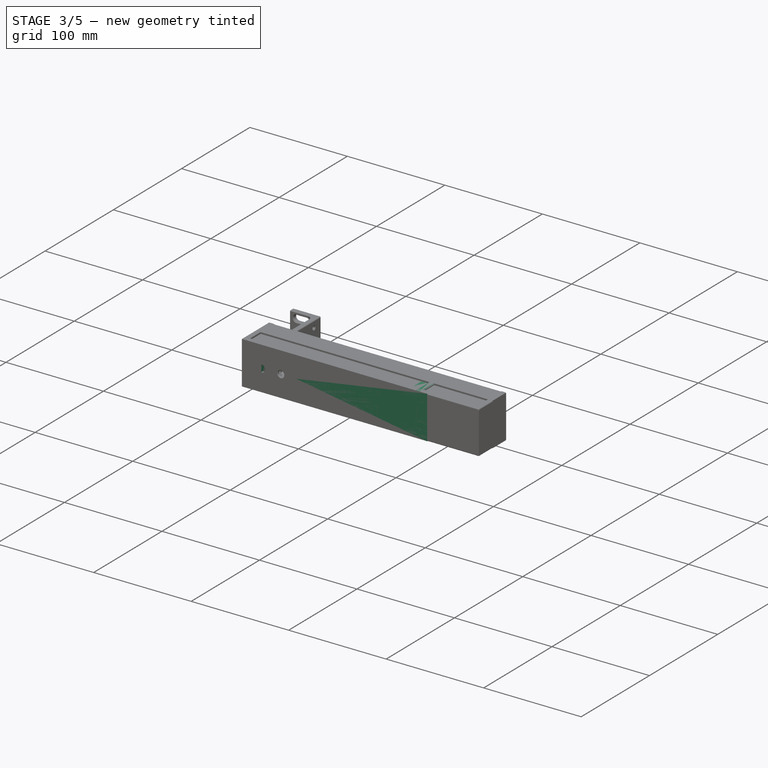
[diagram: stage 3 of 5 — iso view after this stage's code; geometry added in this stage tinted green]
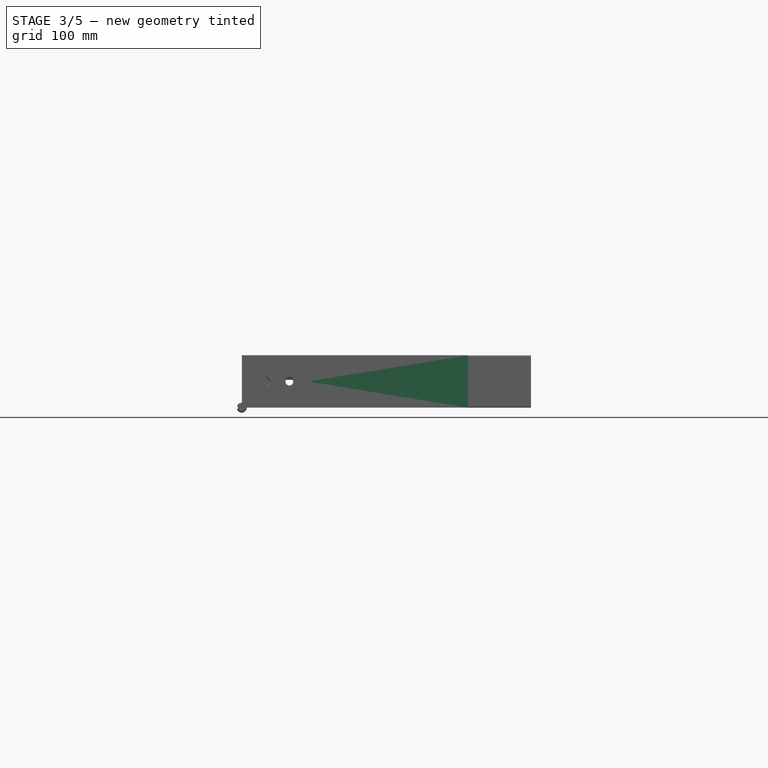
[diagram: stage 3 of 5 — front view after this stage's code; geometry added in this stage tinted green]
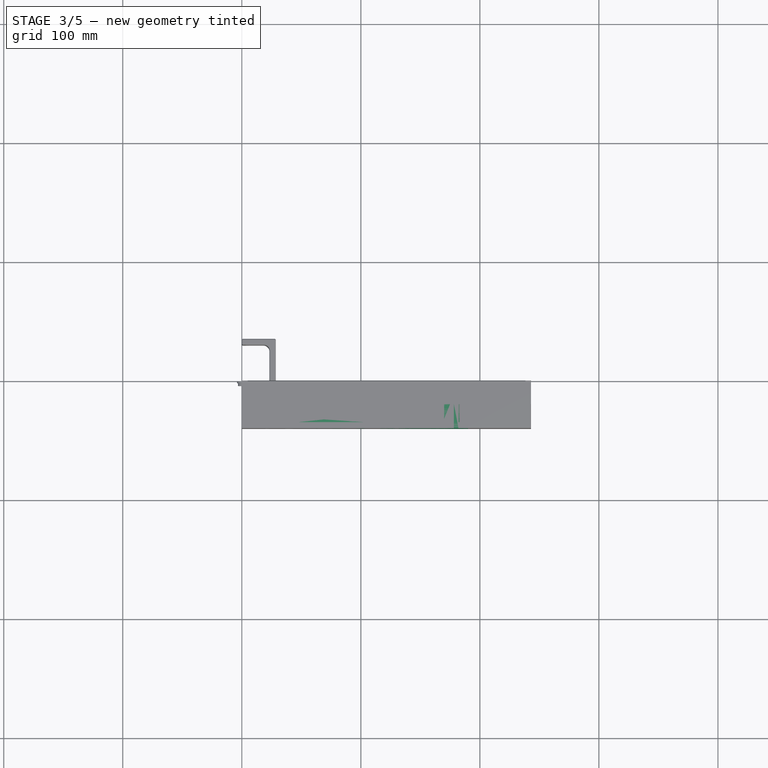
[diagram: stage 3 of 5 — top view after this stage's code; geometry added in this stage tinted green]
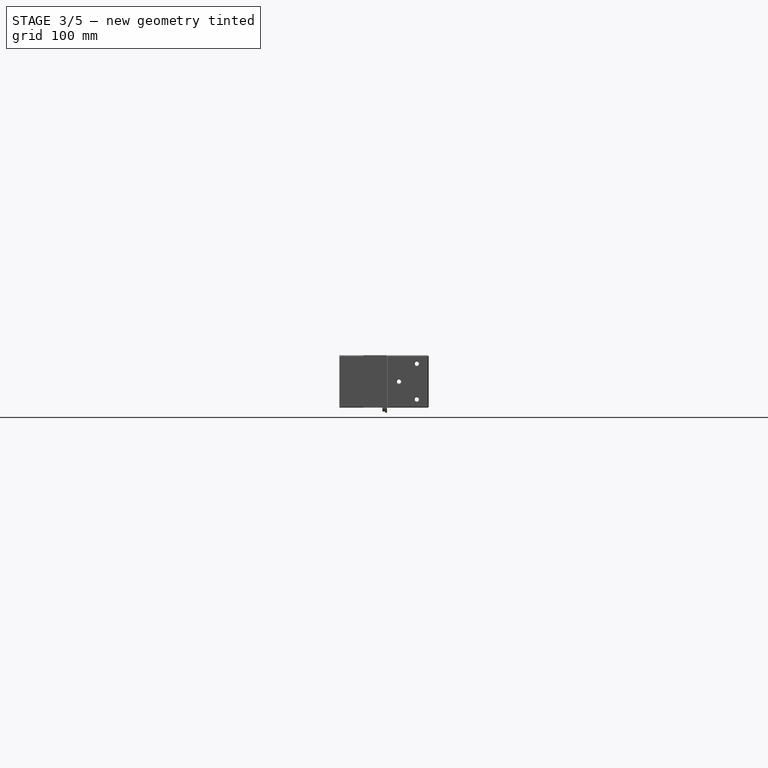
[diagram: stage 3 of 5 — right view after this stage's code; geometry added in this stage tinted green]
FEATURE [PartDesign::Body] Body015  label="pcb002"
  AllowCompound = false
  Group = -> [Sketch065,Pad018,Sketch066,Pad019,Sketch067,Pad020,Sketch068,Pocket031,Fillet009]
  Origin = -> Origin023
  Tip = -> Fillet009
FEATURE [App::Part] Part006  label="ontek-10g"
  Group = -> [Body015]
  Origin = -> Origin022
  Placement = pos=(7.5,-92,11.8) rot=(0,0,1;0rad)
FEATURE [Sketcher::SketchObject] Sketch069
  ArcFitTolerance = 1e-06
  AttachmentSupport = -> [XZ_Plane025]
  FullyConstrained = true
  MakeInternals = false
  MapMode = 5
  Placement = pos=(0,0,0) rot=(1,0,0;1.5708rad)
  sketch-geometry (4):
    g0: LineSegment StartX=0 StartY=0 StartZ=0 EndX=183 EndY=0 EndZ=0
    g1: LineSegment StartX=183 StartY=0 StartZ=0 EndX=183 EndY=44 EndZ=0
    g2: LineSegment StartX=183 StartY=44 StartZ=0 EndX=0 EndY=44 EndZ=0
    g3: LineSegment StartX=0 StartY=44 StartZ=0 EndX=0 EndY=0 EndZ=0
  constraints (11):
    c: Coincident(g0,g1)
    c: Coincident(g1,g2)
    c: Coincident(g2,g3)
    c: Coincident(g3,g0)
    c: Horizontal(g0)
    c: Horizontal(g2)
    c: Vertical(g1)
    c: Vertical(g3)
    c: Coincident(g0,g-1)
    c: DistanceX(g2,g2) = 183
    c: DistanceY(g1,g1) = 44
FEATURE [PartDesign::Pad] Pad021
  Direction = (0,-1,2e-16)
  Length = 40
  Length2 = 10
  Placement = pos=(0,0,0) rot=(1,0,0;1.5708rad)
  Profile = -> Sketch069
  ReferenceAxis = -> Sketch069 [N_Axis]
  Refine = true
  Suppressed = false
  Type = 0
FEATURE [Sketcher::SketchObject] Sketch070
  ArcFitTolerance = 1e-06
  AttachmentSupport = -> [Pad021]
  FullyConstrained = true
  MakeInternals = false
  MapMode = 5
  Placement = pos=(0,-40,0) rot=(1,0,0;1.5708rad)
  sketch-geometry (4):
    g0: LineSegment StartX=5 StartY=39 StartZ=0 EndX=5 EndY=5 EndZ=0
    g1: LineSegment StartX=5 StartY=5 StartZ=0 EndX=173 EndY=5 EndZ=0
    g2: LineSegment StartX=173 StartY=5 StartZ=0 EndX=173 EndY=39 EndZ=0
    g3: LineSegment StartX=173 StartY=39 StartZ=0 EndX=5 EndY=39 EndZ=0
  constraints (12):
    c: Coincident(g0,g1)
    c: Coincident(g1,g2)
    c: Coincident(g2,g3)
    c: Coincident(g3,g0)
    c: Vertical(g0)
    c: Vertical(g2)
    c: Horizontal(g1)
    c: Horizontal(g3)
    c: DistanceY(g0,g0) = 34
    c: DistanceX(g3,g3) = 168
    c: Distance(g-1,g1) = 5
    c: Distance(g-2,g0) = 5
FEATURE [PartDesign::Pocket] Pocket032
  BaseFeature = -> Pad021
  Direction = (0,1,-2e-16)
  Length = 38
  Length2 = 5
  Placement = pos=(0,0,0) rot=(1,0,0;1.5708rad)
  Profile = -> Sketch070
  ReferenceAxis = -> Sketch070 [N_Axis]
  Refine = true
  Suppressed = false
  Type = 0
FEATURE [Sketcher::SketchObject] Sketch071
  ArcFitTolerance = 1e-06
  AttachmentSupport = -> [Pocket032]
  FullyConstrained = true
  MakeInternals = false
  MapMode = 5
  Placement = pos=(0,-40,0) rot=(1,0,0;1.5708rad)
  sketch-geometry (8):
    g0: LineSegment StartX=0 StartY=0 StartZ=0 EndX=178.2 EndY=0 EndZ=0
    g1: LineSegment StartX=178.2 StartY=0 StartZ=0 EndX=178.2 EndY=1.6 EndZ=0
    g2: LineSegment StartX=178.2 StartY=1.6 StartZ=0 EndX=0 EndY=1.6 EndZ=0
    g3: LineSegment StartX=0 StartY=1.6 StartZ=0 EndX=0 EndY=0 EndZ=0
    g4: LineSegment StartX=0 StartY=44 StartZ=0 EndX=0 EndY=42.4 EndZ=0
    g5: LineSegment StartX=0 StartY=42.4 StartZ=0 EndX=178.2 EndY=42.4 EndZ=0
    g6: LineSegment StartX=178.2 StartY=42.4 StartZ=0 EndX=178.2 EndY=44 EndZ=0
    g7: LineSegment StartX=178.2 StartY=44 StartZ=0 EndX=0 EndY=44 EndZ=0
  constraints (23):
    c: Coincident(g0,g1)
    c: Coincident(g1,g2)
    c: Coincident(g2,g3)
    c: Coincident(g3,g0)
    c: Horizontal(g0)
    c: Horizontal(g2)
    c: Vertical(g1)
    c: Vertical(g3)
    c: Coincident(g0,g-1)
    c: Coincident(g4,g5)
    c: Coincident(g5,g6)
    c: Coincident(g6,g7)
    c: Coincident(g7,g4)
    c: Vertical(g4)
    c: Vertical(g6)
    c: Horizontal(g5)
    c: Horizontal(g7)
    c: PointOnObject(g4,g-2)
    c: DistanceX(g0,g0) = 178.2
    c: Distance(g3,g3) = 1.6
    c: Equal(g7,g0)
    c: Equal(g4,g3)
    c: Distance(g4,g0) = 44
FEATURE [PartDesign::Pocket] Pocket033
  BaseFeature = -> Pocket032
  Direction = (0,1,-2e-16)
  Length = 20.2
  Length2 = 5
  Placement = pos=(0,0,0) rot=(1,0,0;1.5708rad)
  Profile = -> Sketch071
  ReferenceAxis = -> Sketch071 [N_Axis]
  Refine = true
  Suppressed = false
  Type = 0
FEATURE [Sketcher::SketchObject] Sketch073
  ArcFitTolerance = 1e-06
  AttachmentSupport = -> [Pocket033]
  FullyConstrained = false
  MakeInternals = false
  MapMode = 5
  Placement = pos=(183,0,0) rot=(0.707107,0,0.707107;3.14159rad)
  sketch-geometry (4):
    g0: Circle CenterX=7 CenterY=10 CenterZ=0 NormalX=0 NormalY=0 NormalZ=1 AngleXU=0 Radius=2.15
    g1: Circle CenterX=22 CenterY=25 CenterZ=0 NormalX=0 NormalY=0 NormalZ=1 AngleXU=0 Radius=2.15
    g2: Circle CenterX=37 CenterY=10 CenterZ=0 NormalX=0 NormalY=0 NormalZ=1 AngleXU=0 Radius=2.15
    g3: LineSegment [constr] StartX=-11.5076 StartY=10 StartZ=0 EndX=55.4132 EndY=10 EndZ=0
  constraints (11):
    c: Horizontal(g3)
    c: Distance(g-1,g3) = 10
    c: DistanceX(g0,g1) = 15
    c: DistanceX(g1,g2) = 15
    c: PointOnObject(g0,g3)
    c: PointOnObject(g2,g3)
    c: Diameter(g0) = 4.3
    c: Diameter(g1) = 4.3
    c: Diameter(g2) = 4.3
    c: Distance(g0,g-2) = 7
    c: Distance(g1,g3) = 15
FEATURE [PartDesign::Pocket] Pocket035
  BaseFeature = -> Pocket033
  Direction = (-1,0,2e-16)
  Length = 4.5
  Length2 = 5
  Placement = pos=(0,0,0) rot=(1,0,0;1.5708rad)
  Profile = -> Sketch073
  ReferenceAxis = -> Sketch073 [N_Axis]
  Refine = true
  Suppressed = false
  Type = 0
FEATURE [Sketcher::SketchObject] Sketch076
  ArcFitTolerance = 1e-06
  FullyConstrained = false
  MakeInternals = false
  MapMode = 5
  Placement = pos=(0,-40,0) rot=(1,0,0;1.5708rad)
  sketch-geometry (3):
    g0: Circle CenterX=178 CenterY=12 CenterZ=0 NormalX=0 NormalY=0 NormalZ=1 AngleXU=0 Radius=1.6
    g1: Circle CenterX=178 CenterY=32 CenterZ=0 NormalX=0 NormalY=0 NormalZ=1 AngleXU=0 Radius=1.6
    g2: LineSegment [constr] StartX=178 StartY=47.3047 StartZ=0 EndX=178 EndY=-4.35257 EndZ=0
  constraints (8):
    c: Vertical(g2)
    c: Distance(g-2,g2) = 178
    c: Diameter(g0) = 3.2
    c: Diameter(g1) = 3.2
    c: PointOnObject(g1,g2)
    c: PointOnObject(g0,g2)
    c: DistanceY(g0,g1) = 20
    c: Distance(g0,g-1) = 12
FEATURE [PartDesign::Pocket] Pocket037
  BaseFeature = -> Pocket035
  Direction = (0,1,-2e-16)
  Length = 15
  Length2 = 5
  Placement = pos=(0,0,0) rot=(1,0,0;1.5708rad)
  Profile = -> Sketch076
  ReferenceAxis = -> Sketch076 [N_Axis]
  Refine = true
  Suppressed = false
  Type = 0
FEATURE [Sketcher::SketchObject] Sketch
  ArcFitTolerance = 1e-06
  FullyConstrained = true
  MakeInternals = false
  MapMode = 5
  Placement = pos=(0,4.9e-15,0) rot=(-1,0,0;1.5708rad)
  sketch-geometry (8):
    g0: LineSegment StartX=22.3 StartY=-13.2 StartZ=0 EndX=22.3 EndY=-23.4 EndZ=0
    g1: LineSegment StartX=22.3 StartY=-23.4 StartZ=0 EndX=80.7 EndY=-23.4 EndZ=0
    g2: LineSegment StartX=80.7 StartY=-23.4 StartZ=0 EndX=80.7 EndY=-13.2 EndZ=0
    g3: LineSegment StartX=80.7 StartY=-13.2 StartZ=0 EndX=22.3 EndY=-13.2 EndZ=0
    g4: LineSegment StartX=82.5 StartY=-13.2 StartZ=0 EndX=82.5 EndY=-23.4 EndZ=0
    g5: LineSegment StartX=82.5 StartY=-23.4 StartZ=0 EndX=140.9 EndY=-23.4 EndZ=0
    g6: LineSegment StartX=140.9 StartY=-23.4 StartZ=0 EndX=140.9 EndY=-13.2 EndZ=0
    g7: LineSegment StartX=140.9 StartY=-13.2 StartZ=0 EndX=82.5 EndY=-13.2 EndZ=0
  constraints (24):
    c: Coincident(g0,g1)
    c: Coincident(g1,g2)
    c: Coincident(g2,g3)
    c: Coincident(g3,g0)
    c: Vertical(g0)
    c: Vertical(g2)
    c: Horizontal(g1)
    c: Horizontal(g3)
    c: Coincident(g4,g5)
    c: Coincident(g5,g6)
    c: Coincident(g6,g7)
    c: Coincident(g7,g4)
    c: Vertical(g4)
    c: Vertical(g6)
    c: Horizontal(g5)
    c: Horizontal(g7)
    c: DistanceX(g3,g3) = 58.4
    c: DistanceY(g0,g0) = 10.2
    c: Equal(g0,g4)
    c: Equal(g3,g7)
    c: Distance(g0,g-2) = 22.3
    c: Distance(g0,g-1) = 13.2
    c: Distance(g4,g-1) = 13.2
    c: Distance(g4,g2) = 1.8
FEATURE [PartDesign::Pocket] Pocket
  BaseFeature = -> Pocket037
  Direction = (0,-1,-2e-16)
  Length = 5
  Length2 = 5
  Placement = pos=(0,0,0) rot=(1,0,0;1.5708rad)
  Profile = -> Sketch
  ReferenceAxis = -> Sketch [N_Axis]
  Refine = true
  Suppressed = false
  Type = 0
FEATURE [PartDesign::Body] Body017
  AllowCompound = false
  Group = -> [Sketch077,Pad022,Sketch078,Pocket038,Sketch079,Pocket039,Fillet010,Sketch080,Pocket040,Chamfer006,Fillet014]
  Origin = -> Origin027
  Tip = -> Fillet014
FEATURE [App::Part] Part008  label="sidepanel"
  Group = -> [Body017]
  Origin = -> Origin026
  Placement = pos=(163,-40,0) rot=(0,0,1;0rad)
FEATURE [Sketcher::SketchObject] Sketch084
  ArcFitTolerance = 1e-06
  AttachmentSupport = -> [XZ_Plane030]
  FullyConstrained = true
  MakeInternals = false
  MapMode = 5
  Placement = pos=(0,0,0) rot=(1,0,0;1.5708rad)
  sketch-geometry (4):
    g0: LineSegment StartX=0 StartY=0 StartZ=0 EndX=190 EndY=0 EndZ=0
    g1: LineSegment StartX=190 StartY=0 StartZ=0 EndX=190 EndY=44 EndZ=0
    g2: LineSegment StartX=190 StartY=44 StartZ=0 EndX=0 EndY=44 EndZ=0
    g3: LineSegment StartX=0 StartY=44 StartZ=0 EndX=0 EndY=0 EndZ=0
  constraints (11):
    c: Coincident(g0,g1)
    c: Coincident(g1,g2)
    c: Coincident(g2,g3)
    c: Coincident(g3,g0)
    c: Horizontal(g0)
    c: Horizontal(g2)
    c: Vertical(g1)
    c: Vertical(g3)
    c: Coincident(g0,g-1)
    c: DistanceX(g2,g2) = 190
    c: DistanceY(g1,g1) = 44
FEATURE [PartDesign::Pad] Pad
  Direction = (0,-1,2e-16)
  Length = 40
  Length2 = 10
  Placement = pos=(0,0,0) rot=(1,0,0;1.5708rad)
  Profile = -> Sketch084
  ReferenceAxis = -> Sketch084 [N_Axis]
  Refine = true
  Suppressed = false
  Type = 0
FEATURE [Sketcher::SketchObject] Sketch085
  ArcFitTolerance = 1e-06
  AttachmentSupport = -> [Pad]
  FullyConstrained = true
  MakeInternals = false
  MapMode = 5
  Placement = pos=(0,4.9e-15,0) rot=(-1,0,0;1.5708rad)
  sketch-geometry (4):
    g0: LineSegment StartX=185 StartY=-39 StartZ=0 EndX=185 EndY=-5 EndZ=0
    g1: LineSegment StartX=185 StartY=-5 StartZ=0 EndX=10 EndY=-5 EndZ=0
    g2: LineSegment StartX=10 StartY=-5 StartZ=0 EndX=10 EndY=-39 EndZ=0
    g3: LineSegment StartX=10 StartY=-39 StartZ=0 EndX=185 EndY=-39 EndZ=0
  constraints (12):
    c: Coincident(g0,g1)
    c: Coincident(g1,g2)
    c: Coincident(g2,g3)
    c: Coincident(g3,g0)
    c: Vertical(g0)
    c: Vertical(g2)
    c: Horizontal(g1)
    c: Horizontal(g3)
    c: Distance(g2,g-2) = 10
    c: DistanceY(g2,g2) = 34
    c: Distance(g-1,g1) = 5
    c: DistanceX(g3,g3) = 175
FEATURE [PartDesign::Pocket] Pocket042
  BaseFeature = -> Pad
  Direction = (0,-1,-2e-16)
  Length = 34
  Length2 = 5
  Placement = pos=(0,0,0) rot=(1,0,0;1.5708rad)
  Profile = -> Sketch085
  ReferenceAxis = -> Sketch085 [N_Axis]
  Refine = true
  Suppressed = false
  Type = 0
FEATURE [Sketcher::SketchObject] Sketch086
  ArcFitTolerance = 1e-06
  AttachmentSupport = -> [Pocket042]
  FullyConstrained = true
  MakeInternals = false
  MapMode = 5
  Placement = pos=(0,4.9e-15,0) rot=(-1,0,0;1.5708rad)
  sketch-geometry (8):
    g0: LineSegment StartX=190 StartY=-1.6 StartZ=0 EndX=190 EndY=0 EndZ=0
    g1: LineSegment StartX=190 StartY=0 StartZ=0 EndX=5 EndY=0 EndZ=0
    g2: LineSegment StartX=5 StartY=0 StartZ=0 EndX=5 EndY=-1.6 EndZ=0
    g3: LineSegment StartX=5 StartY=-1.6 StartZ=0 EndX=190 EndY=-1.6 EndZ=0
    g4: LineSegment StartX=5 StartY=-44 StartZ=0 EndX=190 EndY=-44 EndZ=0
    g5: LineSegment StartX=190 StartY=-44 StartZ=0 EndX=190 EndY=-42.4 EndZ=0
    g6: LineSegment StartX=190 StartY=-42.4 StartZ=0 EndX=5 EndY=-42.4 EndZ=0
    g7: LineSegment StartX=5 StartY=-42.4 StartZ=0 EndX=5 EndY=-44 EndZ=0
  constraints (24):
    c: Coincident(g0,g1)
    c: Coincident(g1,g2)
    c: Coincident(g2,g3)
    c: Coincident(g3,g0)
    c: Vertical(g0)
    c: Vertical(g2)
    c: Horizontal(g1)
    c: Horizontal(g3)
    c: Coincident(g4,g5)
    c: Coincident(g5,g6)
    c: Coincident(g6,g7)
    c: Coincident(g7,g4)
    c: Horizontal(g4)
    c: Horizontal(g6)
    c: Vertical(g5)
    c: Vertical(g7)
    c: Distance(g4,g-1) = 44
    c: Distance(g2,g2) = 1.6
    c: PointOnObject(g1,g-1)
    c: Equal(g7,g2)
    c: Equal(g1,g4)
    c: DistanceX(g1,g1) = 185
    c: Distance(g1,g-2) = 5
    c: Distance(g4,g-2) = 5
FEATURE [PartDesign::Pocket] Pocket043
  BaseFeature = -> Pocket042
  Direction = (0,-1,-2e-16)
  Length = 35
  Length2 = 5
  Placement = pos=(0,0,0) rot=(1,0,0;1.5708rad)
  Profile = -> Sketch086
  ReferenceAxis = -> Sketch086 [N_Axis]
  Refine = true
  Suppressed = false
  Type = 0
FEATURE [Sketcher::SketchObject] Sketch087
  ArcFitTolerance = 1e-06
  AttachmentSupport = -> [Pocket043]
  FullyConstrained = false
  MakeInternals = false
  MapMode = 5
  Placement = pos=(0,-40,0) rot=(1,0,0;1.5708rad)
  sketch-geometry (7):
    g0: LineSegment StartX=20 StartY=12.9 StartZ=0 EndX=46.6 EndY=12.9 EndZ=0
    g1: LineSegment StartX=46.6 StartY=12.9 StartZ=0 EndX=46.6 EndY=26.6 EndZ=0
    g2: LineSegment StartX=46.6 StartY=26.6 StartZ=0 EndX=41.95 EndY=31.1 EndZ=0
    g3: LineSegment StartX=41.95 StartY=31.1 StartZ=0 EndX=24.65 EndY=31.1 EndZ=0
    g4: LineSegment StartX=24.65 StartY=31.1 StartZ=0 EndX=20 EndY=26.6 EndZ=0
    g5: LineSegment StartX=20 StartY=26.6 StartZ=0 EndX=20 EndY=12.9 EndZ=0
    g6: LineSegment [constr] StartX=1.98253 StartY=22 StartZ=0 EndX=71.7355 EndY=22 EndZ=0
  constraints (20):
    c: Horizontal(g0)
    c: Coincident(g1,g0)
    c: Vertical(g1)
    c: Coincident(g2,g1)
    c: Coincident(g3,g2)
    c: Horizontal(g3)
    c: Coincident(g4,g3)
    c: Coincident(g5,g4)
    c: Coincident(g5,g0)
    c: Vertical(g5)
    c: DistanceX(g0,g0) = 26.6
    c: DistanceY(g0,g3) = 18.2
    c: DistanceY(g1,g1) = 13.7
    c: Equal(g1,g5)
    c: Equal(g4,g2)
    c: DistanceX(g3,g3) = 17.3
    c: Distance(g0,g-1) = 12.9
    c: Distance(g0,g-2) = 20
    c: Horizontal(g6)
    c: DistanceY(g-1,g6) = 22
FEATURE [PartDesign::Pocket] Pocket044
  BaseFeature = -> Pocket043
  Direction = (0,1,-2e-16)
  Length = 6
  Length2 = 5
  Placement = pos=(0,0,0) rot=(1,0,0;1.5708rad)
  Profile = -> Sketch087
  ReferenceAxis = -> Sketch087 [N_Axis]
  Refine = true
  Suppressed = false
  Type = 0
FEATURE [Sketcher::SketchObject] Sketch088
  ArcFitTolerance = 1e-06
  AttachmentSupport = -> [Pocket044]
  FullyConstrained = false
  MakeInternals = false
  MapMode = 5
  Placement = pos=(0,-40,0) rot=(1,0,0;1.5708rad)
  sketch-geometry (3):
    g0: LineSegment [constr] StartX=-5.96349 StartY=22 StartZ=0 EndX=63.3177 EndY=22 EndZ=0
    g1: Circle CenterX=13.05 CenterY=22 CenterZ=0 NormalX=0 NormalY=0 NormalZ=1 AngleXU=0 Radius=2.15
    g2: Circle CenterX=53.55 CenterY=22 CenterZ=0 NormalX=0 NormalY=0 NormalZ=1 AngleXU=0 Radius=2.15
  constraints (8):
    c: Horizontal(g0)
    c: PointOnObject(g1,g0)
    c: PointOnObject(g2,g0)
    c: DistanceX(g1,g2) = 40.5
    c: Diameter(g1) = 4.3
    c: Diameter(g2) = 4.3
    c: Distance(g1,g-2) = 13.05
    c: Distance(g-1,g0) = 22
FEATURE [PartDesign::Pocket] Pocket045
  BaseFeature = -> Pocket044
  Direction = (0,1,-2e-16)
  Length = 5
  Length2 = 5
  Placement = pos=(0,0,0) rot=(1,0,0;1.5708rad)
  Profile = -> Sketch088
  ReferenceAxis = -> Sketch088 [N_Axis]
  Refine = true
  Suppressed = false
  Type = 0
FEATURE [PartDesign::Fillet] Fillet015
  Base = -> Pocket045 [Edge55,Edge58,Edge62,Edge64]
  BaseFeature = -> Pocket045
  Placement = pos=(0,0,0) rot=(1,0,0;1.5708rad)
  Radius = 1
  Refine = true
  SupportTransform = false
  Suppressed = false
  UseAllEdges = false
FEATURE [Sketcher::SketchObject] Sketch108  label="top-bottom-plate"
  ArcFitTolerance = 1e-06
  FullyConstrained = false
  MakeInternals = false
  MapMode = 5
  Placement = pos=(0,1.87e-14,42.4) rot=(0,0,1;3.14159rad)
  sketch-geometry (3):
    g0: LineSegment [constr] StartX=-206.223 StartY=30 StartZ=0 EndX=18.7012 EndY=30 EndZ=0
    g1: Circle CenterX=-168 CenterY=30 CenterZ=0 NormalX=0 NormalY=0 NormalZ=1 AngleXU=0 Radius=2.15
    g2: Circle CenterX=-69 CenterY=30 CenterZ=0 NormalX=0 NormalY=0 NormalZ=1 AngleXU=0 Radius=2.15
  constraints (8):
    c: Horizontal(g0)
    c: Distance(g-1,g0) = 30
    c: PointOnObject(g1,g0)
    c: PointOnObject(g2,g0)
    c: DistanceX(g1,g2) = 99
    c: Distance(g1,g-2) = 168
    c: Diameter(g1) = 4.3
    c: Equal(g1,g2)
FEATURE [PartDesign::Pocket] Pocket061
  BaseFeature = -> Pocket
  Direction = (0,0,-1)
  Length = 44
  Length2 = 5
  Placement = pos=(0,0,0) rot=(1,0,0;1.5708rad)
  Profile = -> Sketch108
  ReferenceAxis = -> Sketch108 [N_Axis]
  Refine = true
  Suppressed = false
  Type = 0
FEATURE [Sketcher::SketchObject] Sketch109
  ArcFitTolerance = 1e-06
  AttachmentSupport = -> [Pocket061]
  FullyConstrained = false
  MakeInternals = false
  MapMode = 5
  Placement = pos=(5,0,0) rot=(0.707107,0,0.707107;3.14159rad)
  sketch-geometry (4):
    g0: LineSegment [constr] StartX=46.5213 StartY=15 StartZ=0 EndX=-3.69017 EndY=15 EndZ=0
    g1: Circle CenterX=32 CenterY=15 CenterZ=0 NormalX=0 NormalY=0 NormalZ=1 AngleXU=0 Radius=1.5
    g2: Circle CenterX=12 CenterY=15 CenterZ=0 NormalX=0 NormalY=0 NormalZ=1 AngleXU=0 Radius=1.5
    g3: Circle CenterX=22 CenterY=25 CenterZ=0 NormalX=0 NormalY=0 NormalZ=1 AngleXU=0 Radius=1.5
  constraints (11):
    c: Horizontal(g0)
    c: Distance(g-1,g0) = 15
    c: PointOnObject(g1,g0)
    c: PointOnObject(g2,g0)
    c: Distance(g3,g-1) = 25
    c: Distance(g3,g-2) = 22
    c: Diameter(g3) = 3
    c: Equal(g3,g1)
    c: Equal(g1,g2)
    c: DistanceX(g2,g1) = 20
    c: Distance(g2,g-2) = 12
FEATURE [PartDesign::Hole] Hole013
  BaseFeature = -> Pocket061
  CustomThreadClearance = 0
  Depth = 25
  DepthType = 0
  Diameter = 3.5
  DrillForDepth = false
  DrillPoint = 1
  DrillPointAngle = 118
  HoleCutCountersinkAngle = 90
  HoleCutCustomValues = false
  HoleCutDepth = 2
  HoleCutDiameter = 6.1
  HoleCutType = 1
  ModelThread = false
  Placement = pos=(0,0,0) rot=(1,0,0;1.5708rad)
  Profile = -> Sketch109
  Refine = true
  Suppressed = false
  Tapered = false
  TaperedAngle = 90
  ThreadClass = 0
  ThreadDepth = 25
  ThreadDepthType = 0
  ThreadDirection = 0
  ThreadFit = 0
  ThreadSize = 0
  ThreadType = 0
  Threaded = false
  UseCustomThreadClearance = false
FEATURE [Sketcher::SketchObject] Sketch126
  ArcFitTolerance = 1e-06
  AttachmentSupport = -> [XZ_Plane038]
  FullyConstrained = true
  MakeInternals = false
  MapMode = 5
  Placement = pos=(0,0,0) rot=(1,0,0;1.5708rad)
  sketch-geometry (4):
    g0: LineSegment StartX=0 StartY=0 StartZ=0 EndX=183 EndY=0 EndZ=0
    g1: LineSegment StartX=183 StartY=0 StartZ=0 EndX=183 EndY=44 EndZ=0
    g2: LineSegment StartX=183 StartY=44 StartZ=0 EndX=0 EndY=44 EndZ=0
    g3: LineSegment StartX=0 StartY=44 StartZ=0 EndX=0 EndY=0 EndZ=0
  constraints (11):
    c: Coincident(g0,g1)
    c: Coincident(g1,g2)
    c: Coincident(g2,g3)
    c: Coincident(g3,g0)
    c: Horizontal(g0)
    c: Horizontal(g2)
    c: Vertical(g1)
    c: Vertical(g3)
    c: Coincident(g0,g-1)
    c: DistanceX(g2,g2) = 183
    c: DistanceY(g1,g1) = 44
FEATURE [PartDesign::Pad] Pad032
  Direction = (0,-1,2e-16)
  Length = 40
  Length2 = 10
  Placement = pos=(0,0,0) rot=(1,0,0;1.5708rad)
  Profile = -> Sketch126
  ReferenceAxis = -> Sketch126 [N_Axis]
  Refine = true
  Suppressed = false
  Type = 0
FEATURE [Sketcher::SketchObject] Sketch127
  ArcFitTolerance = 1e-06
  AttachmentSupport = -> [Pad032]
  FullyConstrained = true
  MakeInternals = false
  MapMode = 5
  Placement = pos=(0,4.9e-15,0) rot=(-1,0,0;1.5708rad)
  sketch-geometry (4):
    g0: LineSegment StartX=178 StartY=-39 StartZ=0 EndX=178 EndY=-5 EndZ=0
    g1: LineSegment StartX=178 StartY=-5 StartZ=0 EndX=10 EndY=-5 EndZ=0
    g2: LineSegment StartX=10 StartY=-5 StartZ=0 EndX=10 EndY=-39 EndZ=0
    g3: LineSegment StartX=10 StartY=-39 StartZ=0 EndX=178 EndY=-39 EndZ=0
  constraints (12):
    c: Coincident(g0,g1)
    c: Coincident(g1,g2)
    c: Coincident(g2,g3)
    c: Coincident(g3,g0)
    c: Vertical(g0)
    c: Vertical(g2)
    c: Horizontal(g1)
    c: Horizontal(g3)
    c: Distance(g2,g-2) = 10
    c: DistanceY(g2,g2) = 34
    c: Distance(g-1,g1) = 5
    c: DistanceX(g3,g3) = 168
FEATURE [PartDesign::Pocket] Pocket071
  BaseFeature = -> Pad032
  Direction = (0,-1,-2e-16)
  Length = 37
  Length2 = 5
  Placement = pos=(0,0,0) rot=(1,0,0;1.5708rad)
  Profile = -> Sketch127
  ReferenceAxis = -> Sketch127 [N_Axis]
  Refine = true
  Suppressed = false
  Type = 0
FEATURE [Sketcher::SketchObject] Sketch128
  ArcFitTolerance = 1e-06
  AttachmentSupport = -> [Pocket071]
  FullyConstrained = true
  MakeInternals = false
  MapMode = 5
  Placement = pos=(0,4.9e-15,0) rot=(-1,0,0;1.5708rad)
  sketch-geometry (8):
    g0: LineSegment StartX=183.2 StartY=-1.6 StartZ=0 EndX=183.2 EndY=0 EndZ=0
    g1: LineSegment StartX=183.2 StartY=0 StartZ=0 EndX=5 EndY=0 EndZ=0
    g2: LineSegment StartX=5 StartY=0 StartZ=0 EndX=5 EndY=-1.6 EndZ=0
    g3: LineSegment StartX=5 StartY=-1.6 StartZ=0 EndX=183.2 EndY=-1.6 EndZ=0
    g4: LineSegment StartX=5 StartY=-44 StartZ=0 EndX=183.2 EndY=-44 EndZ=0
    g5: LineSegment StartX=183.2 StartY=-44 StartZ=0 EndX=183.2 EndY=-42.4 EndZ=0
    g6: LineSegment StartX=183.2 StartY=-42.4 StartZ=0 EndX=5 EndY=-42.4 EndZ=0
    g7: LineSegment StartX=5 StartY=-42.4 StartZ=0 EndX=5 EndY=-44 EndZ=0
  constraints (24):
    c: Coincident(g0,g1)
    c: Coincident(g1,g2)
    c: Coincident(g2,g3)
    c: Coincident(g3,g0)
    c: Vertical(g0)
    c: Vertical(g2)
    c: Horizontal(g1)
    c: Horizontal(g3)
    c: Coincident(g4,g5)
    c: Coincident(g5,g6)
    c: Coincident(g6,g7)
    c: Coincident(g7,g4)
    c: Horizontal(g4)
    c: Horizontal(g6)
    c: Vertical(g5)
    c: Vertical(g7)
    c: Distance(g4,g-1) = 44
    c: Distance(g2,g2) = 1.6
    c: PointOnObject(g1,g-1)
    c: Equal(g7,g2)
    c: Equal(g1,g4)
    c: DistanceX(g1,g1) = 178.2
    c: Distance(g1,g-2) = 5
    c: Distance(g4,g-2) = 5
FEATURE [PartDesign::Pocket] Pocket072
  BaseFeature = -> Pocket071
  Direction = (0,-1,-2e-16)
  Length = 35.2
  Length2 = 5
  Placement = pos=(0,0,0) rot=(1,0,0;1.5708rad)
  Profile = -> Sketch128
  ReferenceAxis = -> Sketch128 [N_Axis]
  Refine = true
  Suppressed = false
  Type = 0
FEATURE [Sketcher::SketchObject] Sketch131
  ArcFitTolerance = 1e-06
  FullyConstrained = false
  MakeInternals = false
  MapMode = 5
  Placement = pos=(0,-9.4e-15,42.4) rot=(0,0,1;3.14159rad)
  sketch-geometry (3):
    g0: LineSegment [constr] StartX=-195.391 StartY=25 StartZ=0 EndX=26.7442 EndY=25 EndZ=0
    g1: Circle CenterX=-114 CenterY=25 CenterZ=0 NormalX=0 NormalY=0 NormalZ=1 AngleXU=0 Radius=2.15
    g2: Circle CenterX=-15 CenterY=25 CenterZ=0 NormalX=0 NormalY=0 NormalZ=1 AngleXU=0 Radius=2.15
  constraints (7):
    c: Horizontal(g0)
    c: Distance(g-1,g0) = 25
    c: PointOnObject(g1,g0)
    c: PointOnObject(g2,g0)
    c: Distance(g2,g-2) = 15
    c: DistanceX(g1,g2) = 99
    c: Equal(g1,g2)
FEATURE [PartDesign::Pocket] Pocket075
  BaseFeature = -> Pocket072
  Direction = (0,0,-1)
  Length = 44
  Length2 = 5
  Placement = pos=(0,0,0) rot=(1,0,0;1.5708rad)
  Profile = -> Sketch131
  ReferenceAxis = -> Sketch131 [N_Axis]
  Refine = true
  Suppressed = false
  Type = 0
FEATURE [Sketcher::SketchObject] Sketch132
  ArcFitTolerance = 1e-06
  AttachmentSupport = -> [Pocket075]
  FullyConstrained = false
  MakeInternals = false
  MapMode = 5
  Placement = pos=(178,0,0) rot=(0.707107,0,-0.707107;3.14159rad)
  sketch-geometry (4):
    g0: LineSegment [constr] StartX=-54.6157 StartY=20 StartZ=0 EndX=16.3589 EndY=20 EndZ=0
    g1: Circle CenterX=-32 CenterY=20 CenterZ=0 NormalX=0 NormalY=0 NormalZ=1 AngleXU=0 Radius=2.15
    g2: Circle CenterX=-12 CenterY=20 CenterZ=0 NormalX=0 NormalY=0 NormalZ=1 AngleXU=0 Radius=2.15
    g3: Circle CenterX=-22 CenterY=10 CenterZ=0 NormalX=0 NormalY=0 NormalZ=1 AngleXU=0 Radius=2.15
  constraints (11):
    c: Horizontal(g0)
    c: PointOnObject(g1,g0)
    c: PointOnObject(g2,g0)
    c: Distance(g-1,g0) = 20
    c: DistanceX(g1,g2) = 20
    c: Distance(g2,g-2) = 12
    c: Diameter(g1) = 4.3
    c: Distance(g3,g-2) = 22
    c: Distance(g3,g-1) = 10
    c: Equal(g1,g2)
    c: Equal(g2,g3)
FEATURE [PartDesign::Pocket] Pocket076
  BaseFeature = -> Pocket075
  Direction = (1,0,2e-16)
  Length = 5
  Length2 = 5
  Placement = pos=(0,0,0) rot=(1,0,0;1.5708rad)
  Profile = -> Sketch132
  ReferenceAxis = -> Sketch132 [N_Axis]
  Refine = true
  Suppressed = false
  Type = 0
FEATURE [Sketcher::SketchObject] Sketch133
  ArcFitTolerance = 1e-06
  FullyConstrained = false
  MakeInternals = false
  MapMode = 5
  Placement = pos=(0,4.9e-15,0) rot=(-1,0,0;1.5708rad)
  sketch-geometry (3):
    g0: LineSegment [constr] StartX=5 StartY=4.37547 StartZ=0 EndX=5 EndY=-51.9483 EndZ=0
    g1: Circle CenterX=5 CenterY=-12 CenterZ=0 NormalX=0 NormalY=0 NormalZ=1 AngleXU=0 Radius=1.6
    g2: Circle CenterX=5 CenterY=-32 CenterZ=0 NormalX=0 NormalY=0 NormalZ=1 AngleXU=0 Radius=1.6
  constraints (8):
    c: Vertical(g0)
    c: Distance(g-2,g0) = 5
    c: PointOnObject(g1,g0)
    c: PointOnObject(g2,g0)
    c: DistanceY(g2,g1) = 20
    c: Distance(g1,g-1) = 12
    c: Diameter(g1) = 3.2
    c: Equal(g1,g2)
FEATURE [PartDesign::Pocket] Pocket077
  BaseFeature = -> Pocket076
  Direction = (0,-1,-2e-16)
  Length = 20
  Length2 = 5
  Placement = pos=(0,0,0) rot=(1,0,0;1.5708rad)
  Profile = -> Sketch133
  ReferenceAxis = -> Sketch133 [N_Axis]
  Refine = true
  Suppressed = false
  Type = 0
FEATURE [Sketcher::SketchObject] Sketch134
  ArcFitTolerance = 1e-06
  AttachmentSupport = -> [Pocket077]
  FullyConstrained = true
  MakeInternals = false
  MapMode = 5
  Placement = pos=(0,-37,0) rot=(-1,0,0;1.5708rad)
  sketch-geometry (4):
    g0: LineSegment StartX=10 StartY=-5 StartZ=0 EndX=10 EndY=-39 EndZ=0
    g1: LineSegment StartX=10 StartY=-39 StartZ=0 EndX=70 EndY=-39 EndZ=0
    g2: LineSegment StartX=70 StartY=-39 StartZ=0 EndX=70 EndY=-5 EndZ=0
    g3: LineSegment StartX=70 StartY=-5 StartZ=0 EndX=10 EndY=-5 EndZ=0
  constraints (12):
    c: Coincident(g0,g1)
    c: Coincident(g1,g2)
    c: Coincident(g2,g3)
    c: Coincident(g3,g0)
    c: Vertical(g0)
    c: Vertical(g2)
    c: Horizontal(g1)
    c: Horizontal(g3)
    c: DistanceX(g3,g3) = 60
    c: DistanceY(g0,g0) = 34
    c: Distance(g-2,g0) = 10
    c: Distance(g0,g-1) = 5
FEATURE [PartDesign::Pad] Pad033
  BaseFeature = -> Pocket077
  Direction = (0,1,2e-16)
  Length = 9
  Length2 = 10
  Placement = pos=(0,0,0) rot=(1,0,0;1.5708rad)
  Profile = -> Sketch134
  ReferenceAxis = -> Sketch134 [N_Axis]
  Refine = true
  Suppressed = false
  Type = 0
FEATURE [Sketcher::SketchObject] Sketch135
  ArcFitTolerance = 1e-06
  AttachmentSupport = -> [Pad033]
  FullyConstrained = true
  MakeInternals = false
  MapMode = 5
  Placement = pos=(0,-28,0) rot=(-1,0,0;1.5708rad)
  sketch-geometry (4):
    g0: LineSegment StartX=16.3 StartY=-8.3 StartZ=0 EndX=16.3 EndY=-35.7 EndZ=0
    g1: LineSegment StartX=16.3 StartY=-35.7 StartZ=0 EndX=63.7 EndY=-35.7 EndZ=0
    g2: LineSegment StartX=63.7 StartY=-35.7 StartZ=0 EndX=63.7 EndY=-8.3 EndZ=0
    g3: LineSegment StartX=63.7 StartY=-8.3 StartZ=0 EndX=16.3 EndY=-8.3 EndZ=0
  constraints (12):
    c: Coincident(g0,g1)
    c: Coincident(g1,g2)
    c: Coincident(g2,g3)
    c: Coincident(g3,g0)
    c: Vertical(g0)
    c: Vertical(g2)
    c: Horizontal(g1)
    c: Horizontal(g3)
    c: DistanceX(g3,g3) = 47.4
    c: DistanceY(g0,g0) = 27.4
    c: Distance(g0,g-1) = 8.3
    c: Distance(g0,g-2) = 16.3
FEATURE [PartDesign::Pocket] Pocket078
  BaseFeature = -> Pad033
  Direction = (0,-1,-2e-16)
  Length = 12
  Length2 = 5
  Placement = pos=(0,0,0) rot=(1,0,0;1.5708rad)
  Profile = -> Sketch135
  ReferenceAxis = -> Sketch135 [N_Axis]
  Refine = true
  Suppressed = false
  Type = 0
FEATURE [Sketcher::SketchObject] Sketch136
  ArcFitTolerance = 1e-06
  AttachmentSupport = -> [Pocket078]
  FullyConstrained = true
  MakeInternals = false
  MapMode = 5
  Placement = pos=(0,0,8.3) rot=(0,0,1;3.14159rad)
  sketch-geometry (8):
    g0: LineSegment StartX=-60.7 StartY=39.2 StartZ=0 EndX=-60.7 EndY=28 EndZ=0
    g1: LineSegment StartX=-60.7 StartY=28 StartZ=0 EndX=-49.7 EndY=28 EndZ=0
    g2: LineSegment StartX=-49.7 StartY=28 StartZ=0 EndX=-49.7 EndY=39.2 EndZ=0
    g3: LineSegment StartX=-49.7 StartY=39.2 StartZ=0 EndX=-60.7 EndY=39.2 EndZ=0
    g4: LineSegment StartX=-30.3 StartY=39.2 StartZ=0 EndX=-30.3 EndY=28 EndZ=0
    g5: LineSegment StartX=-30.3 StartY=28 StartZ=0 EndX=-19.3 EndY=28 EndZ=0
    g6: LineSegment StartX=-19.3 StartY=28 StartZ=0 EndX=-19.3 EndY=39.2 EndZ=0
    g7: LineSegment StartX=-19.3 StartY=39.2 StartZ=0 EndX=-30.3 EndY=39.2 EndZ=0
  constraints (24):
    c: Coincident(g0,g1)
    c: Coincident(g1,g2)
    c: Coincident(g2,g3)
    c: Coincident(g3,g0)
    c: Vertical(g0)
    c: Vertical(g2)
    c: Horizontal(g1)
    c: Horizontal(g3)
    c: Coincident(g4,g5)
    c: Coincident(g5,g6)
    c: Coincident(g6,g7)
    c: Coincident(g7,g4)
    c: Vertical(g4)
    c: Vertical(g6)
    c: Horizontal(g5)
    c: Horizontal(g7)
    c: DistanceX(g3,g3) = 11
    c: DistanceX(g7,g7) = 11
    c: Distance(g6,g-1) = 39.2
    c: Distance(g2,g-1) = 39.2
    c: DistanceY(g0,g0) = 11.2
    c: Distance(g6,g-2) = 19.3
    c: Equal(g0,g4)
    c: Distance(g0,g-2) = 60.7
FEATURE [PartDesign::Pocket] Pocket079
  BaseFeature = -> Pocket078
  Direction = (0,0,-1)
  Length = 1.1
  Length2 = 5
  Placement = pos=(0,0,0) rot=(1,0,0;1.5708rad)
  Profile = -> Sketch136
  ReferenceAxis = -> Sketch136 [N_Axis]
  Refine = true
  Suppressed = false
  Type = 0
FEATURE [Sketcher::SketchObject] Sketch137
  ArcFitTolerance = 1e-06
  AttachmentSupport = -> [Pocket079]
  FullyConstrained = true
  MakeInternals = false
  MapMode = 5
  Placement = pos=(0,0,35.7) rot=(1,0,0;3.14159rad)
  sketch-geometry (8):
    g0: LineSegment StartX=49.7 StartY=39.2 StartZ=0 EndX=49.7 EndY=28 EndZ=0
    g1: LineSegment StartX=49.7 StartY=28 StartZ=0 EndX=60.7 EndY=28 EndZ=0
    g2: LineSegment StartX=60.7 StartY=28 StartZ=0 EndX=60.7 EndY=39.2 EndZ=0
    g3: LineSegment StartX=60.7 StartY=39.2 StartZ=0 EndX=49.7 EndY=39.2 EndZ=0
    g4: LineSegment StartX=19.3 StartY=39.2 StartZ=0 EndX=19.3 EndY=28 EndZ=0
    g5: LineSegment StartX=19.3 StartY=28 StartZ=0 EndX=30.3 EndY=28 EndZ=0
    g6: LineSegment StartX=30.3 StartY=28 StartZ=0 EndX=30.3 EndY=39.2 EndZ=0
    g7: LineSegment StartX=30.3 StartY=39.2 StartZ=0 EndX=19.3 EndY=39.2 EndZ=0
  constraints (24):
    c: Coincident(g0,g1)
    c: Coincident(g1,g2)
    c: Coincident(g2,g3)
    c: Coincident(g3,g0)
    c: Vertical(g0)
    c: Vertical(g2)
    c: Horizontal(g1)
    c: Horizontal(g3)
    c: Coincident(g4,g5)
    c: Coincident(g5,g6)
    c: Coincident(g6,g7)
    c: Coincident(g7,g4)
    c: Vertical(g4)
    c: Vertical(g6)
    c: Horizontal(g5)
    c: Horizontal(g7)
    c: DistanceX(g3,g3) = 11
    c: DistanceX(g7,g7) = 11
    c: Distance(g6,g-1) = 39.2
    c: Distance(g2,g-1) = 39.2
    c: DistanceY(g0,g0) = 11.2
    c: Equal(g0,g4)
    c: Distance(g4,g-2) = 19.3
    c: Distance(g2,g-2) = 60.7
FEATURE [PartDesign::Pocket] Pocket080
  BaseFeature = -> Pocket079
  Direction = (0,0,1)
  Length = 1.1
  Length2 = 5
  Placement = pos=(0,0,0) rot=(1,0,0;1.5708rad)
  Profile = -> Sketch137
  ReferenceAxis = -> Sketch137 [N_Axis]
  Refine = true
  Suppressed = false
  Type = 0
FEATURE [Sketcher::SketchObject] Sketch138
  ArcFitTolerance = 1e-06
  FullyConstrained = true
  MakeInternals = false
  MapMode = 5
  Placement = pos=(0,1.87e-14,42.4) rot=(0,0,1;3.14159rad)
  sketch-geometry (1):
    g0: Circle CenterX=-162 CenterY=22.5 CenterZ=0 NormalX=0 NormalY=0 NormalZ=1 AngleXU=0 Radius=1.75
  constraints (3):
    c: Distance(g0,g-2) = 162
    c: Distance(g0,g-1) = 22.5
    c: Diameter(g0) = 3.5
FEATURE [PartDesign::Pocket] Pocket081
  BaseFeature = -> Hole013
  Direction = (0,0,-1)
  Length = 5
  Length2 = 5
  Placement = pos=(0,0,0) rot=(1,0,0;1.5708rad)
  Profile = -> Sketch138
  ReferenceAxis = -> Sketch138 [N_Axis]
  Refine = true
  Suppressed = false
  Type = 0
FEATURE [Sketcher::SketchObject] Sketch139
  ArcFitTolerance = 1e-06
  FullyConstrained = true
  MakeInternals = false
  MapMode = 5
  Placement = pos=(0,1.1e-15,5) rot=(0,0,1;3.14159rad)
  sketch-geometry (5):
    g0: LineSegment StartX=-165.5 StartY=26 StartZ=0 EndX=-165.5 EndY=8 EndZ=0
    g1: LineSegment StartX=-165.5 StartY=8 StartZ=0 EndX=-158.5 EndY=8 EndZ=0
    g2: LineSegment StartX=-158.5 StartY=8 StartZ=0 EndX=-158.5 EndY=26 EndZ=0
    g3: LineSegment StartX=-158.5 StartY=26 StartZ=0 EndX=-165.5 EndY=26 EndZ=0
    g4: Circle CenterX=-162 CenterY=22.5 CenterZ=0 NormalX=0 NormalY=0 NormalZ=1 AngleXU=0 Radius=2.15
  constraints (15):
    c: Coincident(g0,g1)
    c: Coincident(g1,g2)
    c: Coincident(g2,g3)
    c: Coincident(g3,g0)
    c: Vertical(g0)
    c: Vertical(g2)
    c: Horizontal(g1)
    c: Horizontal(g3)
    c: DistanceX(g3,g3) = 7
    c: DistanceY(g0,g0) = 18
    c: Distance(g4,g-2) = 162
    c: Distance(g4,g-1) = 22.5
    c: Diameter(g4) = 4.3
    c: DistanceX(g4,g2) = 3.5
    c: Distance(g4,g3) = 3.5
FEATURE [PartDesign::Pad] Pad034
  BaseFeature = -> Pocket081
  Direction = (0,0,1)
  Length = 6.7
  Length2 = 10
  Placement = pos=(0,0,0) rot=(1,0,0;1.5708rad)
  Profile = -> Sketch139
  ReferenceAxis = -> Sketch139 [N_Axis]
  Refine = true
  Suppressed = false
  Type = 0
FEATURE [Sketcher::SketchObject] Sketch140
  ArcFitTolerance = 1e-06
  AttachmentSupport = -> [Pad034]
  FullyConstrained = true
  MakeInternals = false
  MapMode = 5
  Placement = pos=(158.5,-1.9e-14,0) rot=(0.707107,0,-0.707107;3.14159rad)
  sketch-geometry (3):
    g0: LineSegment StartX=-11.7 StartY=8 StartZ=0 EndX=-11.7 EndY=19 EndZ=0
    g1: LineSegment StartX=-11.7 StartY=19 StartZ=0 EndX=-5 EndY=8 EndZ=0
    g2: LineSegment StartX=-5 StartY=8 StartZ=0 EndX=-11.7 EndY=8 EndZ=0
  constraints (9):
    c: Vertical(g0)
    c: Coincident(g1,g0)
    c: Coincident(g2,g1)
    c: Coincident(g2,g0)
    c: Horizontal(g2)
    c: DistanceX(g2,g2) = 6.7
    c: Distance(g1,g-2) = 5
    c: DistanceY(g0,g0) = 11
    c: Distance(g0,g-1) = 8
FEATURE [PartDesign::Pocket] Pocket082
  BaseFeature = -> Pad034
  Direction = (1,0,2e-16)
  Length = 7
  Length2 = 5
  Placement = pos=(0,0,0) rot=(1,0,0;1.5708rad)
  Profile = -> Sketch140
  ReferenceAxis = -> Sketch140 [N_Axis]
  Refine = true
  Suppressed = false
  Type = 0
FEATURE [PartDesign::Chamfer] Chamfer029
  Angle = 45
  Base = -> Pocket082 [Edge76,Edge75,Edge77,Edge22,Edge20,Edge21,Edge34,Edge33,Edge96,Edge97,Edge127,Edge83,Edge70,Edge81,Edge82,Edge71,Edge90,Edge89,Edge44,Edge43,Edge45,Edge15,Edge16,Edge17,Edge14,Edge11,Edge12,Edge52,Edge54,Edge55,Edge13,Edge10,Edge49,Edge63,Edge57,Edge60,Edge62]
  BaseFeature = -> Pocket082
  ChamferType = 0
  FlipDirection = false
  Placement = pos=(0,0,0) rot=(1,0,0;1.5708rad)
  Refine = true
  Size = 0.5
  Size2 = 1
  SupportTransform = false
  Suppressed = false
  UseAllEdges = false
FEATURE [PartDesign::Fillet] Fillet036
  Base = -> Chamfer029 [Edge124,Edge120,Edge119,Edge113,Edge112,Edge117,Edge111,Edge116,Edge126,Edge125,Edge128,Edge127,Edge182,Edge178,Edge179,Edge185,Edge183,Edge181,Edge180,Edge37,Edge21,Edge7,Edge8,Edge5]
  BaseFeature = -> Chamfer029
  Placement = pos=(0,0,0) rot=(1,0,0;1.5708rad)
  Radius = 1
  Refine = true
  SupportTransform = false
  Suppressed = false
  UseAllEdges = false
FEATURE [Sketcher::SketchObject] Sketch145
  ArcFitTolerance = 1e-06
  AttachmentOffset = pos=(0,0,2) rot=(0,0,1;0rad)
  FullyConstrained = false
  MakeInternals = false
  MapMode = 5
  Placement = pos=(0,-4,4e-16) rot=(1,0,0;1.5708rad)
  sketch-geometry (18):
    g0: LineSegment StartX=10 StartY=38.5 StartZ=0 EndX=7.11325 EndY=33.5 EndZ=0
    g1: LineSegment StartX=7.11325 StartY=33.5 StartZ=0 EndX=12.8868 EndY=33.5 EndZ=0
    g2: LineSegment StartX=12.8868 StartY=33.5 StartZ=0 EndX=10 EndY=38.5 EndZ=0
    g3: Circle [constr] CenterX=10 CenterY=35.1667 CenterZ=0 NormalX=0 NormalY=0 NormalZ=1 AngleXU=0 Radius=3.33333
    g4: LineSegment StartX=15.8868 StartY=33.5 StartZ=0 EndX=18.7735 EndY=38.5 EndZ=0
    g5: LineSegment StartX=18.7735 StartY=38.5 StartZ=0 EndX=13 EndY=38.5 EndZ=0
    g6: LineSegment StartX=13 StartY=38.5 StartZ=0 EndX=15.8868 EndY=33.5 EndZ=0
    g7: Circle [constr] CenterX=15.8868 CenterY=36.8333 CenterZ=0 NormalX=0 NormalY=0 NormalZ=1 AngleXU=0 Radius=3.33333
    g8: LineSegment [constr] StartX=7.61939 StartY=33.5 StartZ=0 EndX=168.827 EndY=33.5 EndZ=0
    g9: LineSegment [constr] StartX=-78.2422 StartY=5.5 StartZ=0 EndX=90.1081 EndY=5.5 EndZ=0
    g10: LineSegment StartX=15.8868 StartY=10.5 StartZ=0 EndX=13 EndY=5.5 EndZ=0
    g11: LineSegment StartX=13 StartY=5.5 StartZ=0 EndX=18.7735 EndY=5.5 EndZ=0
    g12: LineSegment StartX=18.7735 StartY=5.5 StartZ=0 EndX=15.8868 EndY=10.5 EndZ=0
    g13: Circle [constr] CenterX=15.8868 CenterY=7.16667 CenterZ=0 NormalX=0 NormalY=0 NormalZ=1 AngleXU=0 Radius=3.33333
    g14: LineSegment StartX=10 StartY=5.5 StartZ=0 EndX=12.8868 EndY=10.5 EndZ=0
    g15: LineSegment StartX=12.8868 StartY=10.5 StartZ=0 EndX=7.11325 EndY=10.5 EndZ=0
    g16: LineSegment StartX=7.11325 StartY=10.5 StartZ=0 EndX=10 EndY=5.5 EndZ=0
    g17: Circle [constr] CenterX=10 CenterY=8.83333 CenterZ=0 NormalX=0 NormalY=0 NormalZ=1 AngleXU=0 Radius=3.33333
  constraints (52):
    c: Coincident(g0,g1)
    c: Coincident(g1,g2)
    c: Coincident(g2,g0)
    c: Equal(g0,g1)
    c: Equal(g0,g2)
    c: PointOnObject(g0,g3)
    c: PointOnObject(g1,g3)
    c: PointOnObject(g2,g3)
    c: Coincident(g4,g5)
    c: Coincident(g5,g6)
    c: Coincident(g6,g4)
    c: Equal(g4,g5)
    c: Equal(g4,g6)
    c: PointOnObject(g4,g7)
    c: PointOnObject(g5,g7)
    c: PointOnObject(g6,g7)
    c: Horizontal(g8)
    c: Horizontal(g5)
    c: Horizontal(g1)
    c: PointOnObject(g0,g8)
    c: PointOnObject(g4,g8)
    c: DistanceY(g0,g0) = 5
    c: Equal(g0,g6)
    c: DistanceX(g1,g4) = 3
    c: Distance(g3,g-2) = 10
    c: Horizontal(g9)
    c: Coincident(g10,g11)
    c: Coincident(g11,g12)
    c: Coincident(g12,g10)
    c: Equal(g10,g11)
    c: Equal(g10,g12)
    c: PointOnObject(g10,g13)
    c: PointOnObject(g11,g13)
    c: PointOnObject(g12,g13)
    c: Coincident(g14,g15)
    c: Coincident(g15,g16)
    c: Coincident(g16,g14)
    c: Equal(g14,g15)
    c: Equal(g14,g16)
    c: PointOnObject(g14,g17)
    c: PointOnObject(g15,g17)
    c: PointOnObject(g16,g17)
    c: PointOnObject(g10,g9)
    c: PointOnObject(g14,g9)
    c: Horizontal(g11)
    c: Horizontal(g15)
    c: DistanceY(g10,g10) = 5
    c: Equal(g12,g16)
    c: Distance(g9,g-1) = 5.5
    c: Distance(g0,g-1) = 38.5
    c: DistanceX(g14,g10) = 3
    c: Distance(g14,g-2) = 10
FEATURE [PartDesign::Pocket] Pocket086
  BaseFeature = -> Fillet036
  Direction = (0,1,-2e-16)
  Length = 5
  Length2 = 5
  Placement = pos=(0,0,0) rot=(1,0,0;1.5708rad)
  Profile = -> Sketch145
  ReferenceAxis = -> Sketch145 [N_Axis]
  Refine = true
  Suppressed = false
  Type = 0
FEATURE [PartDesign::LinearPattern] LinearPattern001
  BaseFeature = -> Pocket086
  Direction = -> Sketch145 [H_Axis]
  Length = 152
  Mode = 0
  Occurrences = 14
  Offset = 11.6923
  Originals = -> [Pocket086]
  Placement = pos=(0,0,0) rot=(1,0,0;1.5708rad)
  Refine = true
  Suppressed = false
  TransformMode = 0
FEATURE [PartDesign::Chamfer] Chamfer033
  Angle = 45
  Base = -> LinearPattern001 [Edge178,Edge180,Edge179,Edge176,Edge175,Edge177,Edge172,Edge174,Edge173,Edge170,Edge169,Edge171,Edge166,Edge168,Edge167,Edge164,Edge165,Edge163,Edge160,Edge162,Edge161,Edge158,Edge157,Edge159,Edge154,Edge156,Edge155,Edge152,Edge153,Edge151,Edge148,Edge150,Edge149,Edge146,Edge145,Edge147,Edge142,Edge144,Edge143,Edge140,+44 more]
  BaseFeature = -> LinearPattern001
  ChamferType = 0
  FlipDirection = false
  Placement = pos=(0,0,0) rot=(1,0,0;1.5708rad)
  Refine = true
  Size = 0.5
  Size2 = 1
  SupportTransform = false
  Suppressed = false
  UseAllEdges = false
FEATURE [PartDesign::Chamfer] Chamfer034
  Angle = 45
  Base = -> Chamfer033 [Edge98,Edge99,Edge97,Edge94,Edge96,Edge95,Edge92,Edge93,Edge91,Edge88,Edge90,Edge89,Edge86,Edge87,Edge85,Edge82,Edge84,Edge83,Edge81,Edge80,Edge79,Edge72,Edge74,Edge73,Edge70,Edge69,Edge71,Edge66,Edge68,Edge67,Edge64,Edge65,Edge63,Edge60,Edge62,Edge61,Edge58,Edge57,Edge59,Edge54,+44 more]
  BaseFeature = -> Chamfer033
  ChamferType = 0
  FlipDirection = false
  Placement = pos=(0,0,0) rot=(1,0,0;1.5708rad)
  Refine = true
  Size = 0.5
  Size2 = 1
  SupportTransform = false
  Suppressed = false
  UseAllEdges = false
FEATURE [PartDesign::Body] Body016  label="Body"
  AllowCompound = false
  Group = -> [Sketch069,Pad021,Sketch070,Pocket032,Sketch071,Pocket033,Sketch073,Pocket035,Sketch076,Pocket037,Sketch,Pocket,Sketch108,Pocket061,Sketch109,Hole013,Sketch138,Pocket081,Sketch139,Pad034,Sketch140,Pocket082,Chamfer029,Fillet036,Sketch145,Pocket086,LinearPattern001,Chamfer033,Chamfer034]
  Origin = -> Origin025
  Tip = -> Chamfer034
FEATURE [App::Part] Part007  label="ontek-10g-front"
  Group = -> [Body016]
  Origin = -> Origin024
FEATURE [Sketcher::SketchObject] Sketch146
  ArcFitTolerance = 1e-06
  AttachmentSupport = -> [Pocket080]
  FullyConstrained = true
  MakeInternals = false
  MapMode = 5
  Placement = pos=(0,4.9e-15,0) rot=(-1,0,0;1.5708rad)
  sketch-geometry (4):
    g0: LineSegment StartX=130 StartY=-1.6 StartZ=0 EndX=130 EndY=-42.4 EndZ=0
    g1: LineSegment StartX=130 StartY=-42.4 StartZ=0 EndX=170 EndY=-42.4 EndZ=0
    g2: LineSegment StartX=170 StartY=-42.4 StartZ=0 EndX=170 EndY=-1.6 EndZ=0
    g3: LineSegment StartX=170 StartY=-1.6 StartZ=0 EndX=130 EndY=-1.6 EndZ=0
  constraints (12):
    c: Coincident(g0,g1)
    c: Coincident(g1,g2)
    c: Coincident(g2,g3)
    c: Coincident(g3,g0)
    c: Vertical(g0)
    c: Vertical(g2)
    c: Horizontal(g1)
    c: Horizontal(g3)
    c: DistanceX(g3,g3) = 40
    c: DistanceY(g0,g0) = 40.8
    c: Distance(g0,g-1) = 1.6
    c: Distance(g0,g-2) = 130
FEATURE [PartDesign::Pocket] Pocket087
  BaseFeature = -> Pocket080
  Direction = (0,-1,-2e-16)
  Length = 32
  Length2 = 5
  Placement = pos=(0,0,0) rot=(1,0,0;1.5708rad)
  Profile = -> Sketch146
  ReferenceAxis = -> Sketch146 [N_Axis]
  Refine = true
  Suppressed = false
  Type = 0
FEATURE [Sketcher::SketchObject] Sketch147
  ArcFitTolerance = 1e-06
  AttachmentSupport = -> [Pocket087]
  FullyConstrained = true
  MakeInternals = false
  MapMode = 5
  Placement = pos=(0,-37,0) rot=(-1,0,0;1.5708rad)
  sketch-geometry (4):
    g0: LineSegment StartX=130 StartY=-5 StartZ=0 EndX=130 EndY=-39 EndZ=0
    g1: LineSegment StartX=130 StartY=-39 StartZ=0 EndX=170 EndY=-39 EndZ=0
    g2: LineSegment StartX=170 StartY=-39 StartZ=0 EndX=170 EndY=-5 EndZ=0
    g3: LineSegment StartX=170 StartY=-5 StartZ=0 EndX=130 EndY=-5 EndZ=0
  constraints (12):
    c: Coincident(g0,g1)
    c: Coincident(g1,g2)
    c: Coincident(g2,g3)
    c: Coincident(g3,g0)
    c: Vertical(g0)
    c: Vertical(g2)
    c: Horizontal(g1)
    c: Horizontal(g3)
    c: DistanceY(g0,g0) = 34
    c: Distance(g-1,g3) = 5
    c: DistanceX(g1,g1) = 40
    c: Distance(g0,g-2) = 130
FEATURE [PartDesign::Pad] Pad035
  BaseFeature = -> Pocket087
  Direction = (0,1,2e-16)
  Length = 5
  Length2 = 10
  Placement = pos=(0,0,0) rot=(1,0,0;1.5708rad)
  Profile = -> Sketch147
  ReferenceAxis = -> Sketch147 [N_Axis]
  Refine = true
  Suppressed = false
  Type = 0
FEATURE [Sketcher::SketchObject] Sketch148
  ArcFitTolerance = 1e-06
  AttachmentSupport = -> [Pad035]
  FullyConstrained = false
  MakeInternals = false
  MapMode = 5
  Placement = pos=(0,-32,0) rot=(-1,0,0;1.5708rad)
  sketch-geometry (8):
    g0: LineSegment [constr] StartX=134 StartY=2.07886 StartZ=0 EndX=134 EndY=-47.6107 EndZ=0
    g1: LineSegment [constr] StartX=166 StartY=1.77725 StartZ=0 EndX=166 EndY=-46.7813 EndZ=0
    g2: LineSegment [constr] StartX=124.057 StartY=-6 StartZ=0 EndX=171.485 EndY=-6 EndZ=0
    g3: LineSegment [constr] StartX=125.037 StartY=-38 StartZ=0 EndX=173.747 EndY=-38 EndZ=0
    g4: Circle CenterX=134 CenterY=-6 CenterZ=0 NormalX=0 NormalY=0 NormalZ=1 AngleXU=0 Radius=2.15
    g5: Circle CenterX=166 CenterY=-6 CenterZ=0 NormalX=0 NormalY=0 NormalZ=1 AngleXU=0 Radius=2.15
    g6: Circle CenterX=134 CenterY=-38 CenterZ=0 NormalX=0 NormalY=0 NormalZ=1 AngleXU=0 Radius=2.15
    g7: Circle CenterX=166 CenterY=-38 CenterZ=0 NormalX=0 NormalY=0 NormalZ=1 AngleXU=0 Radius=2.15
  constraints (20):
    c: Vertical(g0)
    c: Vertical(g1)
    c: Horizontal(g2)
    c: Horizontal(g3)
    c: Distance(g3,g2) = 32
    c: Distance(g1,g0) = 32
    c: Distance(g-1,g2) = 6
    c: Distance(g-2,g0) = 134
    c: PointOnObject(g4,g2)
    c: PointOnObject(g5,g2)
    c: PointOnObject(g6,g3)
    c: PointOnObject(g7,g3)
    c: PointOnObject(g6,g0)
    c: PointOnObject(g7,g1)
    c: PointOnObject(g4,g0)
    c: PointOnObject(g5,g1)
    c: Diameter(g4) = 4.3
    c: Equal(g4,g5)
    c: Equal(g5,g7)
    c: Equal(g7,g6)
FEATURE [PartDesign::Pocket] Pocket088
  BaseFeature = -> Pad035
  Direction = (0,-1,-2e-16)
  Length = 5
  Length2 = 5
  Placement = pos=(0,0,0) rot=(1,0,0;1.5708rad)
  Profile = -> Sketch148
  ReferenceAxis = -> Sketch148 [N_Axis]
  Refine = true
  Suppressed = false
  Type = 0
FEATURE [Sketcher::SketchObject] Sketch149
  ArcFitTolerance = 1e-06
  AttachmentSupport = -> [Pocket088]
  FullyConstrained = true
  MakeInternals = false
  MapMode = 5
  Placement = pos=(0,-32,0) rot=(-1,0,0;1.5708rad)
  sketch-geometry (1):
    g0: Circle CenterX=150 CenterY=-22 CenterZ=0 NormalX=0 NormalY=0 NormalZ=1 AngleXU=0 Radius=19.1
  constraints (3):
    c: Distance(g0,g-1) = 22
    c: Distance(g0,g-2) = 150
    c: Diameter(g0) = 38.2
FEATURE [PartDesign::Pocket] Pocket089
  BaseFeature = -> Pocket088
  Direction = (0,-1,-2e-16)
  Length = 8
  Length2 = 5
  Placement = pos=(0,0,0) rot=(1,0,0;1.5708rad)
  Profile = -> Sketch149
  ReferenceAxis = -> Sketch149 [N_Axis]
  Refine = true
  Suppressed = false
  Type = 0
FEATURE [PartDesign::Fillet] Fillet038
  Base = -> Pocket089 [Edge142,Edge60,Edge61,Edge129,Edge51,Edge52,Edge50,Edge143,Edge49,Edge57,Edge56,Edge62,Edge150,Edge153,Edge148,Edge147,Edge151,Edge81,Edge85,Edge13,Edge9,Edge40,Edge6,Edge33,Edge5,Edge34]
  BaseFeature = -> Pocket089
  Placement = pos=(0,0,0) rot=(1,0,0;1.5708rad)
  Radius = 1
  Refine = true
  SupportTransform = false
  Suppressed = false
  UseAllEdges = false
FEATURE [PartDesign::Chamfer] Chamfer035
  Angle = 45
  Base = -> Fillet038 [Edge70,Edge137,Edge135,Edge138,Edge112,Edge136,Edge134,Edge122,Edge126,Edge124,Edge99,Edge51,Edge52,Edge22,Edge23,Edge83,Edge82,Edge41,Edge42,Edge40,Edge109,Edge111,Edge110,Edge108,Edge247,Edge187,Edge207,Edge191,Edge250,Edge195,Edge251,Edge249,Edge248,Edge246,Edge186,Edge205,Edge245,Edge244,Edge243,Edge201,+4 more]
  BaseFeature = -> Fillet038
  ChamferType = 0
  FlipDirection = false
  Placement = pos=(0,0,0) rot=(1,0,0;1.5708rad)
  Refine = true
  Size = 0.5
  Size2 = 1
  SupportTransform = false
  Suppressed = false
  UseAllEdges = false
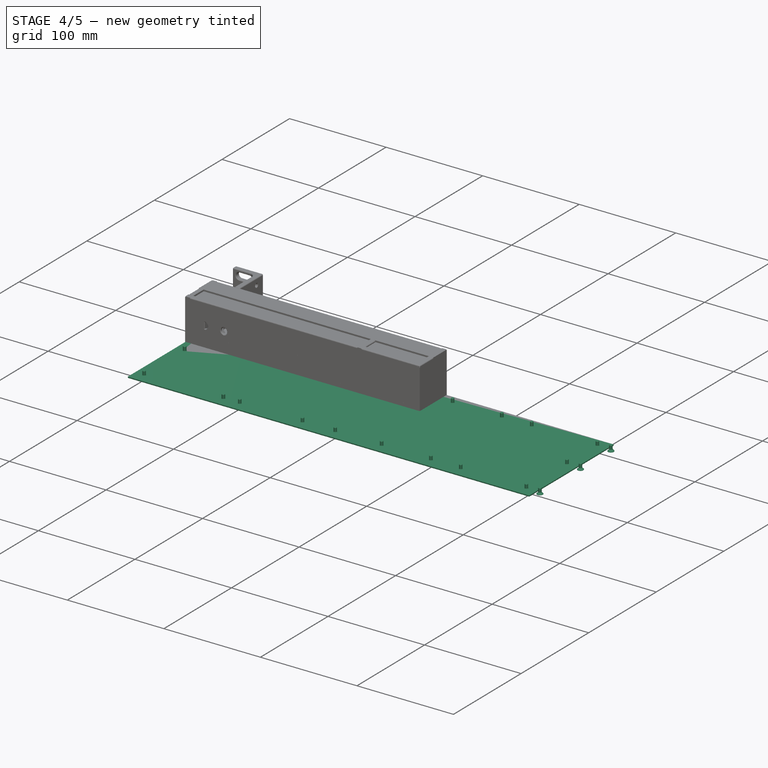
[diagram: stage 4 of 5 — iso view after this stage's code; geometry added in this stage tinted green]
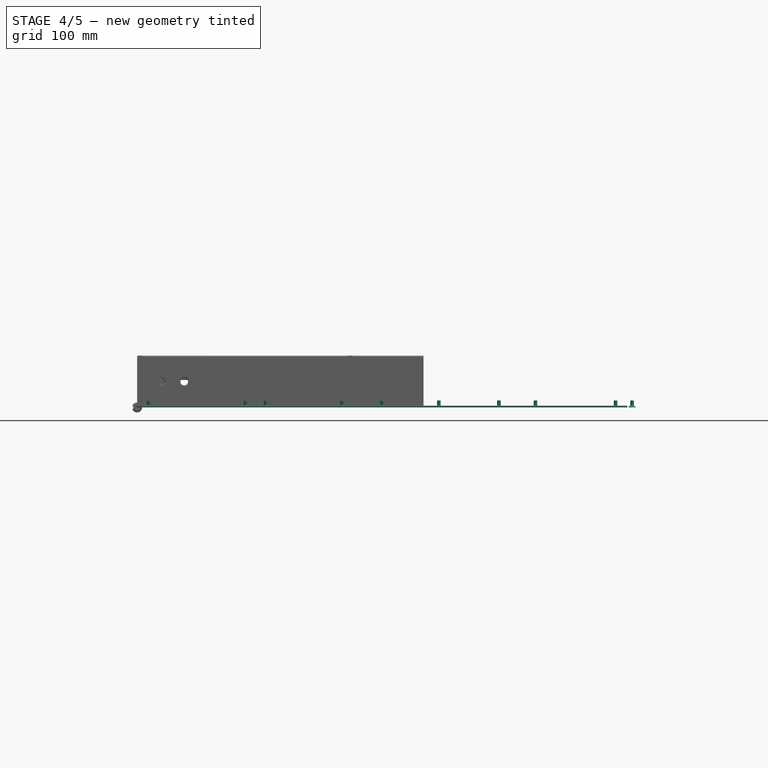
[diagram: stage 4 of 5 — front view after this stage's code; geometry added in this stage tinted green]
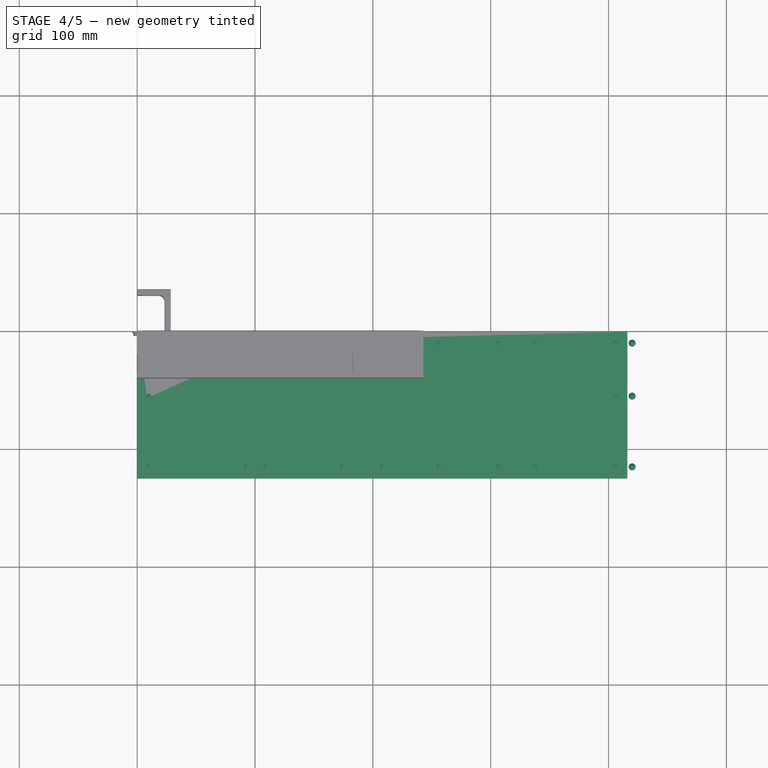
[diagram: stage 4 of 5 — top view after this stage's code; geometry added in this stage tinted green]
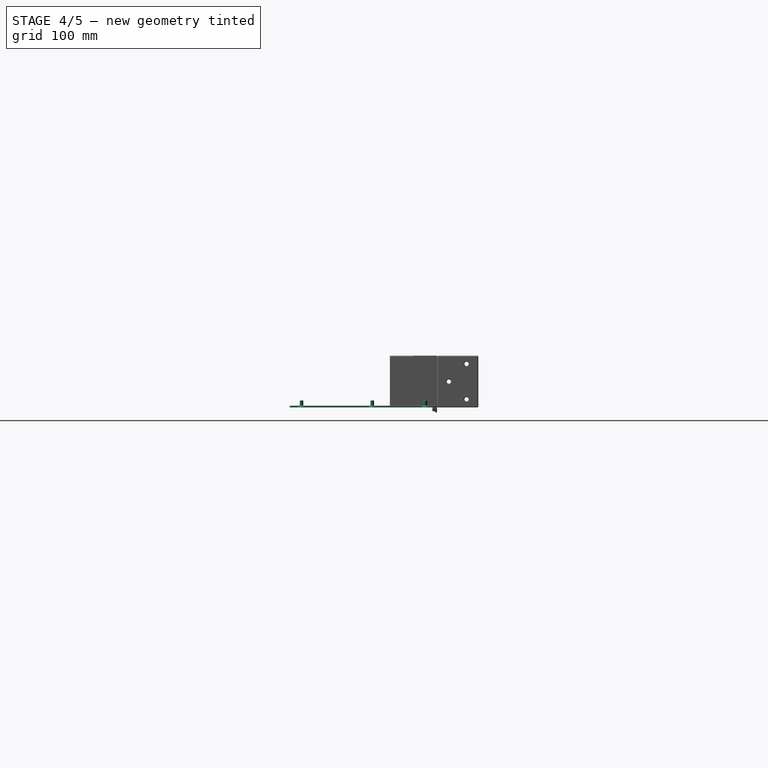
[diagram: stage 4 of 5 — right view after this stage's code; geometry added in this stage tinted green]
FEATURE [PartDesign::Fillet] Fillet016
  Base = -> Fillet015 [Edge18,Edge22]
  BaseFeature = -> Fillet015
  Placement = pos=(0,0,0) rot=(1,0,0;1.5708rad)
  Radius = 2
  Refine = true
  SupportTransform = false
  Suppressed = false
  UseAllEdges = false
FEATURE [PartDesign::Chamfer] Chamfer013
  Angle = 45
  Base = -> Fillet016 [Edge4,Edge17,Edge18,Edge27]
  BaseFeature = -> Fillet016
  ChamferType = 0
  FlipDirection = false
  Placement = pos=(0,0,0) rot=(1,0,0;1.5708rad)
  Refine = true
  Size = 0.5
  Size2 = 1
  SupportTransform = false
  Suppressed = false
  UseAllEdges = false
FEATURE [PartDesign::Fillet] Fillet021
  Base = -> Chamfer013 [Edge16,Edge48,Edge14,Edge13,Edge47]
  BaseFeature = -> Chamfer013
  Placement = pos=(0,0,0) rot=(1,0,0;1.5708rad)
  Radius = 1
  Refine = true
  SupportTransform = false
  Suppressed = false
  UseAllEdges = false
FEATURE [Sketcher::SketchObject] Sketch099
  ArcFitTolerance = 1e-06
  FullyConstrained = false
  MakeInternals = false
  MapMode = 5
  Placement = pos=(0,-9.4e-15,42.4) rot=(0,0,1;3.14159rad)
  sketch-geometry (4):
    g0: LineSegment [constr] StartX=-195.391 StartY=25 StartZ=0 EndX=26.7442 EndY=25 EndZ=0
    g1: Circle CenterX=-179 CenterY=25 CenterZ=0 NormalX=0 NormalY=0 NormalZ=1 AngleXU=0 Radius=2.15
    g2: Circle CenterX=-97 CenterY=25 CenterZ=0 NormalX=0 NormalY=0 NormalZ=1 AngleXU=0 Radius=2.15
    g3: Circle CenterX=-15 CenterY=25 CenterZ=0 NormalX=0 NormalY=0 NormalZ=1 AngleXU=0 Radius=2.15
  constraints (11):
    c: Horizontal(g0)
    c: Distance(g-1,g0) = 25
    c: PointOnObject(g1,g0)
    c: PointOnObject(g2,g0)
    c: PointOnObject(g3,g0)
    c: Distance(g3,g-2) = 15
    c: DistanceX(g2,g3) = 82
    c: DistanceX(g1,g2) = 82
    c: Diameter(g1) = 4.3
    c: Equal(g1,g2)
    c: Equal(g2,g3)
FEATURE [PartDesign::Pocket] Pocket054
  BaseFeature = -> Fillet021
  Direction = (0,0,-1)
  Length = 44
  Length2 = 5
  Placement = pos=(0,0,0) rot=(1,0,0;1.5708rad)
  Profile = -> Sketch099
  ReferenceAxis = -> Sketch099 [N_Axis]
  Refine = true
  Suppressed = false
  Type = 0
FEATURE [Sketcher::SketchObject] Sketch100
  ArcFitTolerance = 1e-06
  AttachmentSupport = -> [Pocket054]
  FullyConstrained = false
  MakeInternals = false
  MapMode = 5
  Placement = pos=(185,0,0) rot=(0.707107,0,-0.707107;3.14159rad)
  sketch-geometry (4):
    g0: LineSegment [constr] StartX=-54.6157 StartY=20 StartZ=0 EndX=16.3589 EndY=20 EndZ=0
    g1: Circle CenterX=-32 CenterY=20 CenterZ=0 NormalX=0 NormalY=0 NormalZ=1 AngleXU=0 Radius=2.15
    g2: Circle CenterX=-12 CenterY=20 CenterZ=0 NormalX=0 NormalY=0 NormalZ=1 AngleXU=0 Radius=2.15
    g3: Circle CenterX=-22 CenterY=10 CenterZ=0 NormalX=0 NormalY=0 NormalZ=1 AngleXU=0 Radius=2.15
  constraints (11):
    c: Horizontal(g0)
    c: PointOnObject(g1,g0)
    c: PointOnObject(g2,g0)
    c: Distance(g-1,g0) = 20
    c: DistanceX(g1,g2) = 20
    c: Distance(g2,g-2) = 12
    c: Diameter(g1) = 4.3
    c: Distance(g3,g-2) = 22
    c: Distance(g3,g-1) = 10
    c: Equal(g1,g2)
    c: Equal(g2,g3)
FEATURE [PartDesign::Pocket] Pocket055
  BaseFeature = -> Pocket054
  Direction = (1,0,2e-16)
  Length = 5
  Length2 = 5
  Placement = pos=(0,0,0) rot=(1,0,0;1.5708rad)
  Profile = -> Sketch100
  ReferenceAxis = -> Sketch100 [N_Axis]
  Refine = true
  Suppressed = false
  Type = 0
FEATURE [PartDesign::Chamfer] Chamfer016
  Angle = 45
  Base = -> Pocket055 [Edge74,Edge75,Edge76,Edge100,Edge102,Edge98,Edge138,Edge142,Edge140,Edge95,Edge94,Edge93,Edge29,Edge28,Edge30,Edge150,Edge151,Edge152]
  BaseFeature = -> Pocket055
  ChamferType = 0
  FlipDirection = false
  Placement = pos=(0,0,0) rot=(1,0,0;1.5708rad)
  Refine = true
  Size = 0.5
  Size2 = 1
  SupportTransform = false
  Suppressed = false
  UseAllEdges = false
FEATURE [Sketcher::SketchObject] Sketch107
  ArcFitTolerance = 1e-06
  AttachmentSupport = -> [Chamfer016]
  FullyConstrained = false
  MakeInternals = false
  MapMode = 5
  Placement = pos=(0,4.9e-15,0) rot=(-1,0,0;1.5708rad)
  sketch-geometry (3):
    g0: LineSegment [constr] StartX=5 StartY=5.16045 StartZ=0 EndX=5 EndY=-51.1633 EndZ=0
    g1: Circle CenterX=5 CenterY=-12 CenterZ=0 NormalX=0 NormalY=0 NormalZ=1 AngleXU=0 Radius=1.6
    g2: Circle CenterX=5 CenterY=-32 CenterZ=0 NormalX=0 NormalY=0 NormalZ=1 AngleXU=0 Radius=1.6
  constraints (8):
    c: Vertical(g0)
    c: Distance(g-2,g0) = 5
    c: PointOnObject(g1,g0)
    c: PointOnObject(g2,g0)
    c: DistanceY(g2,g1) = 20
    c: Distance(g1,g-1) = 12
    c: Diameter(g1) = 3.2
    c: Equal(g1,g2)
FEATURE [PartDesign::Pocket] Pocket060
  BaseFeature = -> Chamfer016
  Direction = (0,-1,-2e-16)
  Length = 20
  Length2 = 5
  Placement = pos=(0,0,0) rot=(1,0,0;1.5708rad)
  Profile = -> Sketch107
  ReferenceAxis = -> Sketch107 [N_Axis]
  Refine = true
  Suppressed = false
  Type = 0
FEATURE [PartDesign::Chamfer] Chamfer022
  Angle = 45
  Base = -> Pocket060 [Edge56,Edge55]
  BaseFeature = -> Pocket060
  ChamferType = 0
  FlipDirection = false
  Placement = pos=(0,0,0) rot=(1,0,0;1.5708rad)
  Refine = true
  Size = 0.5
  Size2 = 1
  SupportTransform = false
  Suppressed = false
  UseAllEdges = false
FEATURE [PartDesign::Body] Body018
  AllowCompound = false
  Group = -> [Sketch083,Pad024,Chamfer008,Sketch114,Hole014]
  Origin = -> Origin029
  Tip = -> Hole014
FEATURE [Part::FeaturePython] Screw004  label="M3x6-Screw"  # Fasteners workbench fastener (typed FeaturePython)
  Placement = pos=(10,-10,0) rot=(0,1,0;3.14159rad)
  diameter = 3
  invert = false
  leftHanded = false
  length = 7
  lengthCustom = 6
  matchOuter = false
  offset = 0
  thread = false
  type = 50
FEATURE [Part::FeaturePython] Screw005  label="M3x6-Screw014"  # Fasteners workbench fastener (typed FeaturePython)
  Placement = pos=(92,-10,0) rot=(0,1,0;3.14159rad)
  diameter = 3
  invert = false
  leftHanded = false
  length = 7
  lengthCustom = 6
  matchOuter = false
  offset = 0
  thread = false
  type = 50
FEATURE [Part::FeaturePython] Screw006  label="M3x6-Screw015"  # Fasteners workbench fastener (typed FeaturePython)
  Placement = pos=(174,-10,0) rot=(0,1,0;3.14159rad)
  diameter = 3
  invert = false
  leftHanded = false
  length = 7
  lengthCustom = 6
  matchOuter = false
  offset = 0
  thread = false
  type = 50
FEATURE [Part::FeaturePython] Screw007  label="M3x6-Screw016"  # Fasteners workbench fastener (typed FeaturePython)
  Placement = pos=(256,-10,0) rot=(0,1,0;3.14159rad)
  diameter = 3
  invert = false
  leftHanded = false
  length = 7
  lengthCustom = 6
  matchOuter = false
  offset = 0
  thread = false
  type = 50
FEATURE [Part::FeaturePython] Screw008  label="M3x6-Screw017"  # Fasteners workbench fastener (typed FeaturePython)
  Placement = pos=(338,-10,0) rot=(0,1,0;3.14159rad)
  diameter = 3
  invert = false
  leftHanded = false
  length = 7
  lengthCustom = 6
  matchOuter = false
  offset = 0
  thread = false
  type = 50
FEATURE [Part::FeaturePython] Screw009  label="M3x6-Screw018"  # Fasteners workbench fastener (typed FeaturePython)
  Placement = pos=(420,-10,0) rot=(0,1,0;3.14159rad)
  diameter = 3
  invert = false
  leftHanded = false
  length = 7
  lengthCustom = 6
  matchOuter = false
  offset = 0
  thread = false
  type = 50
FEATURE [Part::FeaturePython] Screw010  label="M3x6-Screw019"  # Fasteners workbench fastener (typed FeaturePython)
  Placement = pos=(10,-115,0) rot=(0,1,0;3.14159rad)
  diameter = 3
  invert = false
  leftHanded = false
  length = 7
  lengthCustom = 6
  matchOuter = false
  offset = 0
  thread = false
  type = 50
FEATURE [Part::FeaturePython] Screw011  label="M3x6-Screw031"  # Fasteners workbench fastener (typed FeaturePython)
  Placement = pos=(92,-115,0) rot=(0,1,0;3.14159rad)
  diameter = 3
  invert = false
  leftHanded = false
  length = 7
  lengthCustom = 6
  matchOuter = false
  offset = 0
  thread = false
  type = 50
FEATURE [Part::FeaturePython] Screw012  label="M3x6-Screw032"  # Fasteners workbench fastener (typed FeaturePython)
  Placement = pos=(174,-115,0) rot=(0,1,0;3.14159rad)
  diameter = 3
  invert = false
  leftHanded = false
  length = 7
  lengthCustom = 6
  matchOuter = false
  offset = 0
  thread = false
  type = 50
FEATURE [Part::FeaturePython] Screw013  label="M3x6-Screw033"  # Fasteners workbench fastener (typed FeaturePython)
  Placement = pos=(256,-115,0) rot=(0,1,0;3.14159rad)
  diameter = 3
  invert = false
  leftHanded = false
  length = 7
  lengthCustom = 6
  matchOuter = false
  offset = 0
  thread = false
  type = 50
FEATURE [Part::FeaturePython] Screw014  label="M3x6-Screw034"  # Fasteners workbench fastener (typed FeaturePython)
  Placement = pos=(338,-115,0) rot=(0,1,0;3.14159rad)
  diameter = 3
  invert = false
  leftHanded = false
  length = 7
  lengthCustom = 6
  matchOuter = false
  offset = 0
  thread = false
  type = 50
FEATURE [Part::FeaturePython] Screw015  label="M3x6-Screw035"  # Fasteners workbench fastener (typed FeaturePython)
  Placement = pos=(420,-115,0) rot=(0,1,0;3.14159rad)
  diameter = 3
  invert = false
  leftHanded = false
  length = 7
  lengthCustom = 6
  matchOuter = false
  offset = 0
  thread = false
  type = 50
FEATURE [Part::FeaturePython] Screw016  label="M3x6-Screw040"  # Fasteners workbench fastener (typed FeaturePython)
  Placement = pos=(420,-55,0) rot=(0,1,0;3.14159rad)
  diameter = 3
  invert = false
  leftHanded = false
  length = 7
  lengthCustom = 6
  matchOuter = false
  offset = 0
  thread = false
  type = 50
FEATURE [Part::FeaturePython] Screw017  label="M3x6-Screw039"  # Fasteners workbench fastener (typed FeaturePython)
  Placement = pos=(10,-55,0) rot=(0,1,0;3.14159rad)
  diameter = 3
  invert = false
  leftHanded = false
  length = 7
  lengthCustom = 6
  matchOuter = false
  offset = 0
  thread = false
  type = 50
FEATURE [App::Part] Part009  label="bottom-plate"
  Group = -> [Body018,Screw004,Screw005,Screw006,Screw007,Screw008,Screw009,Screw010,Screw011,Screw012,Screw013,Screw014,Screw015,Screw017,Screw016]
  Origin = -> Origin028
  Placement = pos=(-245,-20,0) rot=(0,0,1;0rad)
FEATURE [Part::FeaturePython] Screw018  label="M3x6-Screw055"  # Fasteners workbench fastener (typed FeaturePython)
  Placement = pos=(10,-10,0) rot=(0,1,0;3.14159rad)
  diameter = 3
  invert = false
  leftHanded = false
  length = 7
  lengthCustom = 6
  matchOuter = false
  offset = 0
  thread = false
  type = 50
FEATURE [Part::FeaturePython] Screw019  label="M3x6-Screw069"  # Fasteners workbench fastener (typed FeaturePython)
  Placement = pos=(109,-10,0) rot=(0,1,0;3.14159rad)
  diameter = 3
  invert = false
  leftHanded = false
  length = 7
  lengthCustom = 6
  matchOuter = false
  offset = 0
  thread = false
  type = 50
FEATURE [Part::FeaturePython] Screw020  label="M3x6-Screw070"  # Fasteners workbench fastener (typed FeaturePython)
  Placement = pos=(208,-10,0) rot=(0,1,0;3.14159rad)
  diameter = 3
  invert = false
  leftHanded = false
  length = 7
  lengthCustom = 6
  matchOuter = false
  offset = 0
  thread = false
  type = 50
FEATURE [Part::FeaturePython] Screw021  label="M3x6-Screw071"  # Fasteners workbench fastener (typed FeaturePython)
  Placement = pos=(307,-10,0) rot=(0,1,0;3.14159rad)
  diameter = 3
  invert = false
  leftHanded = false
  length = 7
  lengthCustom = 6
  matchOuter = false
  offset = 0
  thread = false
  type = 50
FEATURE [Part::FeaturePython] Screw022  label="M3x6-Screw072"  # Fasteners workbench fastener (typed FeaturePython)
  Placement = pos=(406,-10,0) rot=(0,1,0;3.14159rad)
  diameter = 3
  invert = false
  leftHanded = false
  length = 7
  lengthCustom = 6
  matchOuter = false
  offset = 0
  thread = false
  type = 50
FEATURE [Part::FeaturePython] Screw024  label="M3x6-Screw061"  # Fasteners workbench fastener (typed FeaturePython)
  Placement = pos=(10,-115,0) rot=(0,1,0;3.14159rad)
  diameter = 3
  invert = false
  leftHanded = false
  length = 7
  lengthCustom = 6
  matchOuter = false
  offset = 0
  thread = false
  type = 50
FEATURE [Part::FeaturePython] Screw025  label="M3x6-Screw073"  # Fasteners workbench fastener (typed FeaturePython)
  Placement = pos=(109,-115,0) rot=(0,1,0;3.14159rad)
  diameter = 3
  invert = false
  leftHanded = false
  length = 7
  lengthCustom = 6
  matchOuter = false
  offset = 0
  thread = false
  type = 50
FEATURE [Part::FeaturePython] Screw026  label="M3x6-Screw074"  # Fasteners workbench fastener (typed FeaturePython)
  Placement = pos=(208,-115,0) rot=(0,1,0;3.14159rad)
  diameter = 3
  invert = false
  leftHanded = false
  length = 7
  lengthCustom = 6
  matchOuter = false
  offset = 0
  thread = false
  type = 50
FEATURE [Part::FeaturePython] Screw027  label="M3x6-Screw075"  # Fasteners workbench fastener (typed FeaturePython)
  Placement = pos=(307,-115,0) rot=(0,1,0;3.14159rad)
  diameter = 3
  invert = false
  leftHanded = false
  length = 7
  lengthCustom = 6
  matchOuter = false
  offset = 0
  thread = false
  type = 50
FEATURE [Part::FeaturePython] Screw028  label="M3x6-Screw076"  # Fasteners workbench fastener (typed FeaturePython)
  Placement = pos=(406,-115,0) rot=(0,1,0;3.14159rad)
  diameter = 3
  invert = false
  leftHanded = false
  length = 7
  lengthCustom = 6
  matchOuter = false
  offset = 0
  thread = false
  type = 50
FEATURE [Part::FeaturePython] Screw030  label="M3x6-Screw077"  # Fasteners workbench fastener (typed FeaturePython)
  Placement = pos=(406,-55,0) rot=(0,1,0;3.14159rad)
  diameter = 3
  invert = false
  leftHanded = false
  length = 7
  lengthCustom = 6
  matchOuter = false
  offset = 0
  thread = false
  type = 50
FEATURE [Part::FeaturePython] Screw031  label="M3x6-Screw067"  # Fasteners workbench fastener (typed FeaturePython)
  Placement = pos=(10,-55,0) rot=(0,1,0;3.14159rad)
  diameter = 3
  invert = false
  leftHanded = false
  length = 7
  lengthCustom = 6
  matchOuter = false
  offset = 0
  thread = false
  type = 50
FEATURE [Sketcher::SketchObject] Sketch115
  ArcFitTolerance = 1e-06
  AttachmentSupport = -> [XY_Plane036]
  FullyConstrained = true
  MakeInternals = false
  MapMode = 5
  sketch-geometry (4):
    g0: LineSegment StartX=0 StartY=0 StartZ=0 EndX=0 EndY=-125 EndZ=0
    g1: LineSegment StartX=0 StartY=-125 StartZ=0 EndX=416 EndY=-125 EndZ=0
    g2: LineSegment StartX=416 StartY=-125 StartZ=0 EndX=416 EndY=0 EndZ=0
    g3: LineSegment StartX=416 StartY=0 StartZ=0 EndX=0 EndY=0 EndZ=0
  constraints (11):
    c: Coincident(g0,g1)
    c: Coincident(g1,g2)
    c: Coincident(g2,g3)
    c: Coincident(g3,g0)
    c: Vertical(g0)
    c: Vertical(g2)
    c: Horizontal(g1)
    c: Horizontal(g3)
    c: Coincident(g0,g-1)
    c: DistanceX(g3,g3) = 416
    c: DistanceY(g2,g2) = 125
FEATURE [PartDesign::Pad] Pad029
  Direction = (0,0,1)
  Length = 1.5
  Length2 = 10
  Profile = -> Sketch115
  ReferenceAxis = -> Sketch115 [N_Axis]
  Refine = true
  Suppressed = false
  Type = 0
FEATURE [PartDesign::Chamfer] Chamfer025
  Angle = 45
  Base = -> Pad029 [Edge7]
  BaseFeature = -> Pad029
  ChamferType = 0
  FlipDirection = false
  Refine = true
  Size = 0.3
  Size2 = 1
  SupportTransform = false
  Suppressed = false
  UseAllEdges = true
FEATURE [Sketcher::SketchObject] Sketch116
  ArcFitTolerance = 1e-06
  AttachmentSupport = -> [Chamfer025]
  FullyConstrained = false
  MakeInternals = false
  MapMode = 5
  Placement = pos=(0,0,0) rot=(1,0,0;3.14159rad)
  sketch-geometry (20):
    g0: LineSegment [constr] StartX=465.24 StartY=10 StartZ=0 EndX=-19.1092 EndY=10 EndZ=0
    g1: LineSegment [constr] StartX=456.926 StartY=115 StartZ=0 EndX=-19.3223 EndY=115 EndZ=0
    g2: LineSegment [constr] StartX=10 StartY=-29.6661 StartZ=0 EndX=10 EndY=146.422 EndZ=0
    g3: LineSegment [constr] StartX=109 StartY=-29.2398 StartZ=0 EndX=109 EndY=140.453 EndZ=0
    g4: LineSegment [constr] StartX=208 StartY=-27.7475 StartZ=0 EndX=208 EndY=140.027 EndZ=0
    g5: LineSegment [constr] StartX=307 StartY=-24.9762 StartZ=0 EndX=307 EndY=140.026 EndZ=0
    g6: LineSegment [constr] StartX=406 StartY=140.879 StartZ=0 EndX=406 EndY=-27.7475 EndZ=0
    g7: LineSegment [constr] StartX=456.147 StartY=55 StartZ=0 EndX=-24.5774 EndY=55 EndZ=0
    g8: Circle CenterX=406 CenterY=10 CenterZ=0 NormalX=0 NormalY=0 NormalZ=1 AngleXU=0 Radius=6.22063
    g9: Circle CenterX=307 CenterY=10 CenterZ=0 NormalX=0 NormalY=0 NormalZ=1 AngleXU=0 Radius=5.64959
    g10: Circle CenterX=208 CenterY=10 CenterZ=0 NormalX=0 NormalY=0 NormalZ=1 AngleXU=0 Radius=5.55224
    g11: Circle CenterX=109 CenterY=10 CenterZ=0 NormalX=0 NormalY=0 NormalZ=1 AngleXU=0 Radius=6.40088
    g12: Circle CenterX=10 CenterY=10 CenterZ=0 NormalX=0 NormalY=0 NormalZ=1 AngleXU=0 Radius=6.8304
    g13: Circle CenterX=10 CenterY=55 CenterZ=0 NormalX=0 NormalY=0 NormalZ=1 AngleXU=0 Radius=5.28666
    g14: Circle CenterX=10 CenterY=115 CenterZ=0 NormalX=0 NormalY=0 NormalZ=1 AngleXU=0 Radius=5.50515
    g15: Circle CenterX=109 CenterY=115 CenterZ=0 NormalX=0 NormalY=0 NormalZ=1 AngleXU=0 Radius=3.54581
    g16: Circle CenterX=208 CenterY=115 CenterZ=0 NormalX=0 NormalY=0 NormalZ=1 AngleXU=0 Radius=4.81808
    g17: Circle CenterX=307 CenterY=115 CenterZ=0 NormalX=0 NormalY=0 NormalZ=1 AngleXU=0 Radius=4.50085
    g18: Circle CenterX=406 CenterY=115 CenterZ=0 NormalX=0 NormalY=0 NormalZ=1 AngleXU=0 Radius=7.92542
    g19: Circle CenterX=406 CenterY=55 CenterZ=0 NormalX=0 NormalY=0 NormalZ=1 AngleXU=0 Radius=7.68792
  constraints (39):
    c: Horizontal(g0)
    c: Horizontal(g1)
    c: Vertical(g2)
    c: Vertical(g3)
    c: Vertical(g4)
    c: Vertical(g5)
    c: Vertical(g6)
    c: Distance(g-1,g0) = 10
    c: Distance(g1,g-1) = 115
    c: Distance(g2,g-2) = 10
    c: Distance(g3,g2) = 99
    c: Distance(g4,g3) = 99
    c: Distance(g5,g4) = 99
    c: Distance(g6,g5) = 99
    c: Horizontal(g7)
    c: Distance(g7,g-1) = 55
    c: PointOnObject(g8,g0)
    c: PointOnObject(g9,g0)
    c: PointOnObject(g10,g0)
    c: PointOnObject(g11,g0)
    c: PointOnObject(g12,g0)
    c: PointOnObject(g13,g7)
    c: PointOnObject(g14,g1)
    c: PointOnObject(g15,g1)
    c: PointOnObject(g16,g1)
    c: PointOnObject(g17,g1)
    c: PointOnObject(g18,g1)
    c: PointOnObject(g8,g6)
    c: PointOnObject(g9,g5)
    c: PointOnObject(g10,g4)
    c: PointOnObject(g11,g3)
    c: PointOnObject(g12,g2)
    c: PointOnObject(g13,g2)
    c: PointOnObject(g14,g2)
    c: PointOnObject(g15,g3)
    c: PointOnObject(g16,g4)
    c: PointOnObject(g17,g5)
    c: PointOnObject(g18,g6)
    c: PointOnObject(g19,g6)
FEATURE [PartDesign::Hole] Hole015
  BaseFeature = -> Chamfer025
  CustomThreadClearance = 0
  Depth = 25
  DepthType = 0
  Diameter = 3.5
  DrillForDepth = false
  DrillPoint = 1
  DrillPointAngle = 118
  HoleCutCountersinkAngle = 90
  HoleCutCustomValues = false
  HoleCutDepth = 0
  HoleCutDiameter = 6.1
  HoleCutType = 2
  ModelThread = false
  Profile = -> Sketch116
  Refine = true
  Suppressed = false
  Tapered = false
  TaperedAngle = 90
  ThreadClass = 0
  ThreadDepth = 25
  ThreadDepthType = 0
  ThreadDirection = 0
  ThreadFit = 0
  ThreadSize = 0
  ThreadType = 0
  Threaded = false
  UseCustomThreadClearance = false
FEATURE [Sketcher::SketchObject] Sketch123
  ArcFitTolerance = 1e-06
  AttachmentSupport = -> [Pocket068]
  FullyConstrained = true
  MakeInternals = false
  MapMode = 5
  Placement = pos=(89.3,-1.07e-14,0) rot=(0.707107,0,-0.707107;3.14159rad)
  sketch-geometry (3):
    g0: LineSegment StartX=-5.01 StartY=14.5 StartZ=0 EndX=-11.31 EndY=22.5 EndZ=0
    g1: LineSegment StartX=-11.31 StartY=22.5 StartZ=0 EndX=-11.31 EndY=14.5 EndZ=0
    g2: LineSegment StartX=-11.31 StartY=14.5 StartZ=0 EndX=-5.01 EndY=14.5 EndZ=0
  constraints (9):
    c: DistanceY(g-1,g0) = 22.5
    c: Vertical(g1)
    c: Coincident(g2,g1)
    c: Horizontal(g2)
    c: Distance(g0,g-2) = 5.01
    c: DistanceY(g1,g1) = 8
    c: DistanceX(g2,g2) = 6.3
    c: Coincident(g2,g0)
    c: Coincident(g0,g1)
FEATURE [Sketcher::SketchObject] Sketch124
  ArcFitTolerance = 1e-06
  AttachmentSupport = -> [Chamfer022]
  FullyConstrained = true
  MakeInternals = false
  MapMode = 5
  Placement = pos=(0,-34,0) rot=(-1,0,0;1.5708rad)
  sketch-geometry (4):
    g0: LineSegment StartX=58 StartY=-5 StartZ=0 EndX=58 EndY=-39 EndZ=0
    g1: LineSegment StartX=58 StartY=-39 StartZ=0 EndX=185 EndY=-39 EndZ=0
    g2: LineSegment StartX=185 StartY=-39 StartZ=0 EndX=185 EndY=-5 EndZ=0
    g3: LineSegment StartX=185 StartY=-5 StartZ=0 EndX=58 EndY=-5 EndZ=0
  constraints (12):
    c: Coincident(g0,g1)
    c: Coincident(g1,g2)
    c: Coincident(g2,g3)
    c: Coincident(g3,g0)
    c: Vertical(g0)
    c: Vertical(g2)
    c: Horizontal(g1)
    c: Horizontal(g3)
    c: DistanceY(g0,g0) = 34
    c: DistanceX(g3,g3) = 127
    c: Distance(g0,g-2) = 58
    c: Distance(g0,g-1) = 5
FEATURE [PartDesign::Pocket] Pocket069
  BaseFeature = -> Chamfer022
  Direction = (0,-1,-2e-16)
  Length = 3
  Length2 = 5
  Placement = pos=(0,0,0) rot=(1,0,0;1.5708rad)
  Profile = -> Sketch124
  ReferenceAxis = -> Sketch124 [N_Axis]
  Refine = true
  Suppressed = false
  Type = 0
FEATURE [PartDesign::Fillet] Fillet032
  Base = -> Pocket069 [Edge188,Edge189,Edge190,Edge185,Edge187,Edge130,Edge129,Edge86,Edge88,Edge87,Edge128,Edge186]
  BaseFeature = -> Pocket069
  Placement = pos=(0,0,0) rot=(1,0,0;1.5708rad)
  Radius = 1
  Refine = true
  SupportTransform = false
  Suppressed = false
  UseAllEdges = false
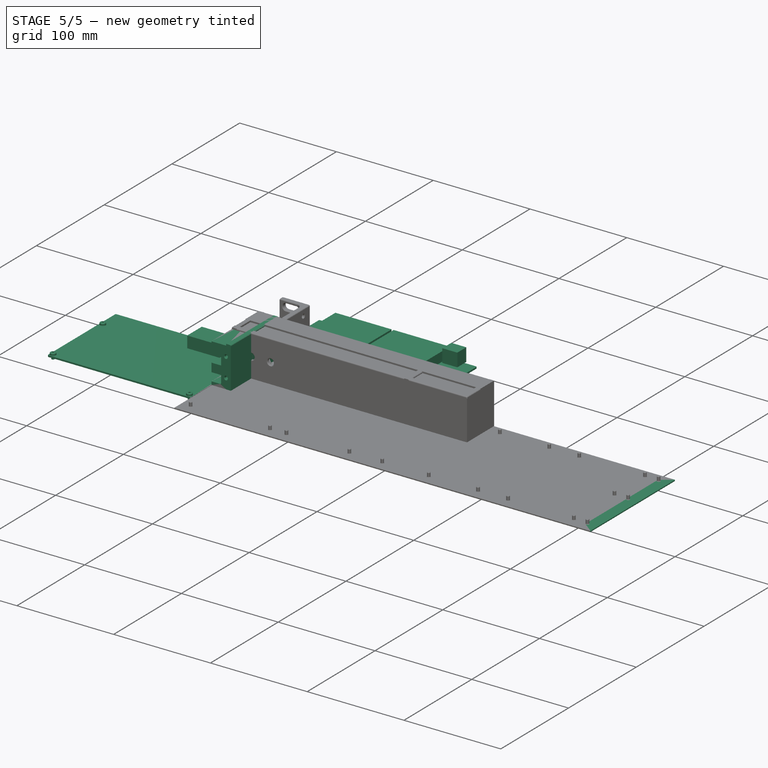
[diagram: stage 5 of 5 — iso view after this stage's code; geometry added in this stage tinted green]
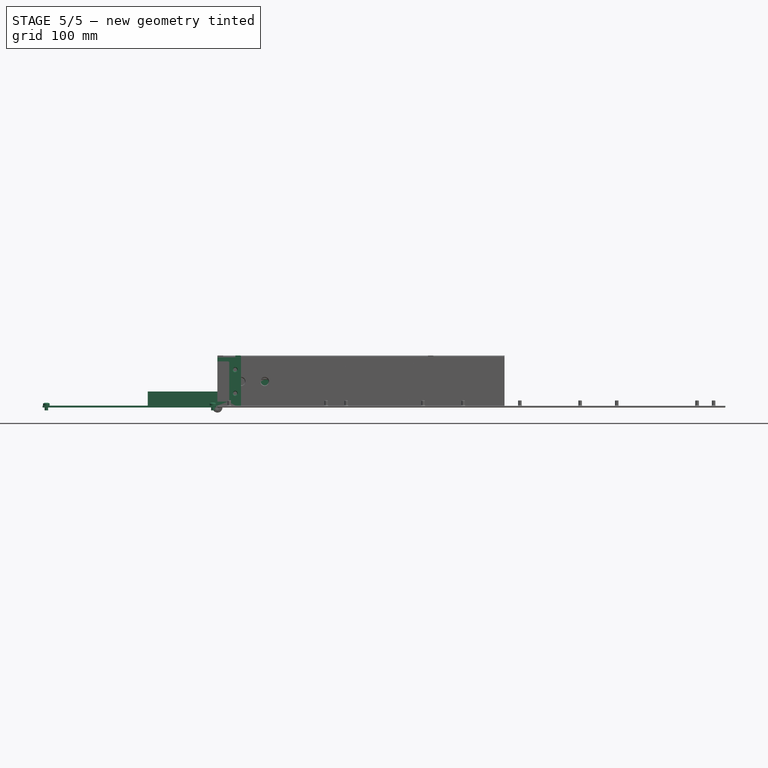
[diagram: stage 5 of 5 — front view after this stage's code; geometry added in this stage tinted green]
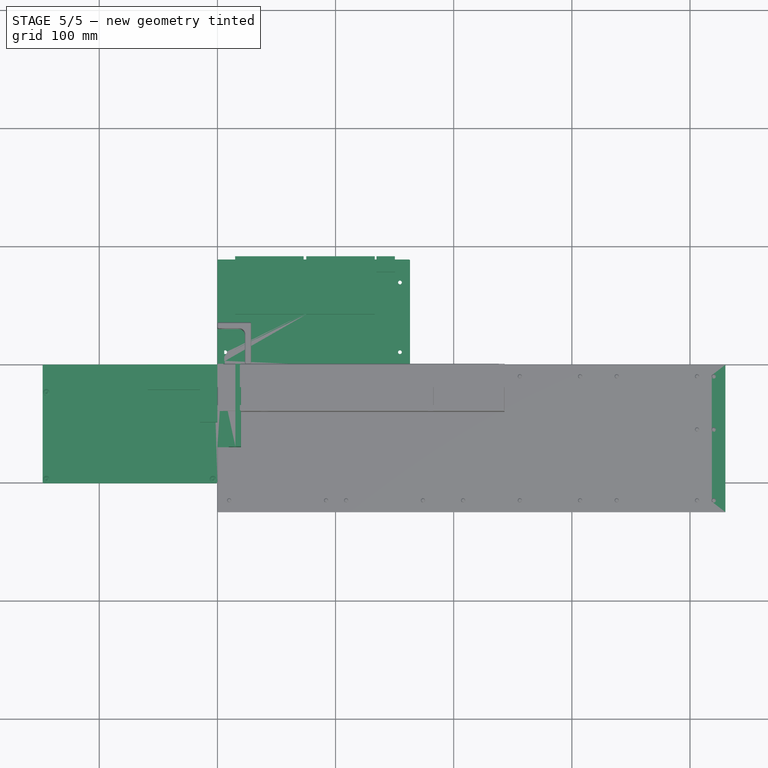
[diagram: stage 5 of 5 — top view after this stage's code; geometry added in this stage tinted green]
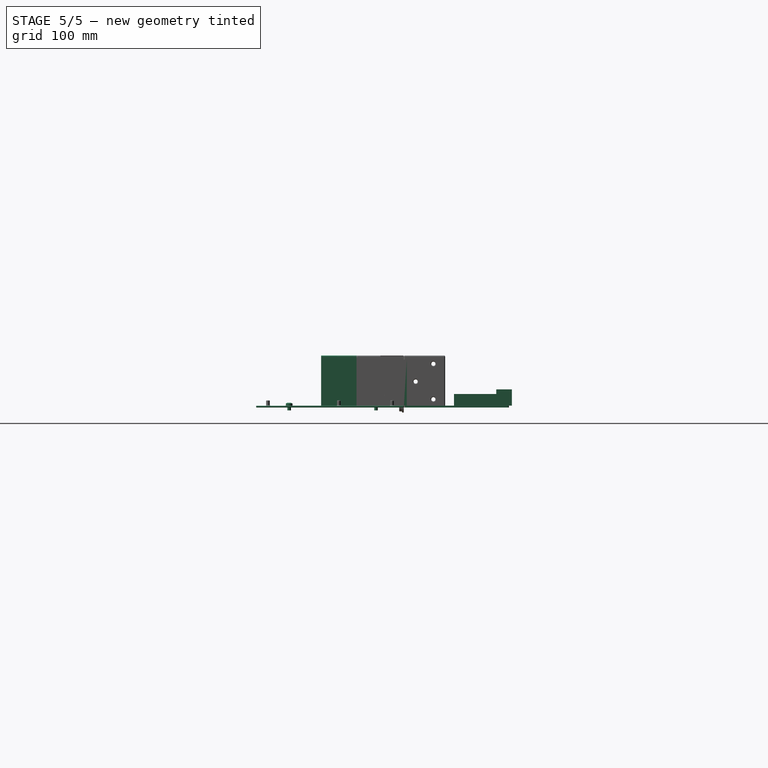
[diagram: stage 5 of 5 — right view after this stage's code; geometry added in this stage tinted green]
FEATURE [Sketcher::SketchObject] Sketch002
  ArcFitTolerance = 0
  AttachmentSupport = -> [XY_Plane001]
  FullyConstrained = true
  MakeInternals = false
  MapMode = 5
  sketch-geometry (4):
    g0: LineSegment StartX=-148 StartY=0 StartZ=0 EndX=0 EndY=0 EndZ=0
    g1: LineSegment StartX=0 StartY=0 StartZ=0 EndX=0 EndY=-100.5 EndZ=0
    g2: LineSegment StartX=0 StartY=-100.5 StartZ=0 EndX=-148 EndY=-100.5 EndZ=0
    g3: LineSegment StartX=-148 StartY=-100.5 StartZ=0 EndX=-148 EndY=0 EndZ=0
  constraints (11):
    c: Coincident(g0,g1)
    c: Coincident(g1,g2)
    c: Coincident(g2,g3)
    c: Coincident(g3,g0)
    c: Horizontal(g0)
    c: Horizontal(g2)
    c: Vertical(g1)
    c: Vertical(g3)
    c: Distance(g0) = 148
    c: Distance(g3) = 100.5
    c: Coincident(g0,g-1)
FEATURE [PartDesign::Pad] Pad001
  Direction = (0,0,1)
  Length = 1.6
  Length2 = 10
  Profile = -> Sketch002
  ReferenceAxis = -> Sketch002 [N_Axis]
  Suppressed = false
  Type = 0
FEATURE [Sketcher::SketchObject] Sketch003
  ArcFitTolerance = 0
  AttachmentSupport = -> [YZ_Plane003]
  FullyConstrained = true
  MakeInternals = false
  MapMode = 5
  Placement = pos=(0,0,0) rot=(0.57735,0.57735,0.57735;2.0944rad)
  sketch-geometry (4):
    g0: LineSegment StartX=20 StartY=13.1 StartZ=0 EndX=0 EndY=13.1 EndZ=0
    g1: LineSegment StartX=0 StartY=13.1 StartZ=0 EndX=0 EndY=0 EndZ=0
    g2: LineSegment StartX=0 StartY=0 StartZ=0 EndX=20 EndY=0 EndZ=0
    g3: LineSegment StartX=20 StartY=0 StartZ=0 EndX=20 EndY=13.1 EndZ=0
  constraints (11):
    c: Coincident(g0,g1)
    c: Coincident(g1,g2)
    c: Coincident(g2,g3)
    c: Coincident(g3,g0)
    c: Horizontal(g0)
    c: Horizontal(g2)
    c: Vertical(g1)
    c: Vertical(g3)
    c: Distance(g1) = 13.1
    c: Distance(g0) = 20
    c: Coincident(g1,g-1)
FEATURE [PartDesign::Pad] Pad002
  Direction = (1,0,0)
  Length = 5.8
  Length2 = 10
  Placement = pos=(0,0,0) rot=(1,1,1;2.0944rad)
  Profile = -> Sketch003
  ReferenceAxis = -> Sketch003 [N_Axis]
  Suppressed = false
  Type = 0
FEATURE [PartDesign::Body] Body002  label="usb-a"
  AllowCompound = false
  Group = -> [Sketch003,Pad002]
  Origin = -> Origin003
  Placement = pos=(-13.6,-17.2,2.2) rot=(0,0,1;0rad)
  Tip = -> Pad002
FEATURE [Sketcher::SketchObject] Sketch004
  ArcFitTolerance = 0
  AttachmentSupport = -> [XZ_Plane004]
  FullyConstrained = true
  MakeInternals = false
  MapMode = 5
  Placement = pos=(0,0,0) rot=(1,0,0;1.5708rad)
  sketch-geometry (4):
    g0: LineSegment StartX=0 StartY=0 StartZ=0 EndX=-14.6 EndY=0 EndZ=0
    g1: LineSegment StartX=-14.6 StartY=0 StartZ=0 EndX=-14.6 EndY=10.5 EndZ=0
    g2: LineSegment StartX=-14.6 StartY=10.5 StartZ=0 EndX=0 EndY=10.5 EndZ=0
    g3: LineSegment StartX=0 StartY=10.5 StartZ=0 EndX=0 EndY=0 EndZ=0
  constraints (11):
    c: Coincident(g0,g1)
    c: Coincident(g1,g2)
    c: Coincident(g2,g3)
    c: Coincident(g3,g0)
    c: Horizontal(g0)
    c: Horizontal(g2)
    c: Vertical(g1)
    c: Vertical(g3)
    c: Coincident(g0,g-1)
    c: Distance(g2) = 14.6
    c: Distance(g1) = 10.5
FEATURE [PartDesign::Pad] Pad003
  Direction = (0,-1,2e-16)
  Length = 49
  Length2 = 10
  Placement = pos=(0,0,0) rot=(1,0,0;1.5708rad)
  Profile = -> Sketch004
  ReferenceAxis = -> Sketch004 [N_Axis]
  Suppressed = false
  Type = 0
FEATURE [PartDesign::Body] Body003  label="sfp1"
  AllowCompound = false
  Group = -> [Sketch004,Pad003]
  Origin = -> Origin004
  Placement = pos=(-17.4,2.9,1.9) rot=(0,0,1;0rad)
  Tip = -> Pad003
FEATURE [Sketcher::SketchObject] Sketch005
  ArcFitTolerance = 0
  AttachmentSupport = -> [XZ_Plane005]
  FullyConstrained = true
  MakeInternals = false
  MapMode = 5
  Placement = pos=(0,0,0) rot=(1,0,0;1.5708rad)
  sketch-geometry (4):
    g0: LineSegment StartX=0 StartY=0 StartZ=0 EndX=-14.6 EndY=0 EndZ=0
    g1: LineSegment StartX=-14.6 StartY=0 StartZ=0 EndX=-14.6 EndY=10.5 EndZ=0
    g2: LineSegment StartX=-14.6 StartY=10.5 StartZ=0 EndX=0 EndY=10.5 EndZ=0
    g3: LineSegment StartX=0 StartY=10.5 StartZ=0 EndX=0 EndY=0 EndZ=0
  constraints (11):
    c: Coincident(g0,g1)
    c: Coincident(g1,g2)
    c: Coincident(g2,g3)
    c: Coincident(g3,g0)
    c: Horizontal(g0)
    c: Horizontal(g2)
    c: Vertical(g1)
    c: Vertical(g3)
    c: Coincident(g0,g-1)
    c: Distance(g2) = 14.6
    c: Distance(g1) = 10.5
FEATURE [PartDesign::Pad] Pad004
  Direction = (0,-1,2e-16)
  Length = 49
  Length2 = 10
  Placement = pos=(0,0,0) rot=(1,0,0;1.5708rad)
  Profile = -> Sketch005
  ReferenceAxis = -> Sketch005 [N_Axis]
  Suppressed = false
  Type = 0
FEATURE [PartDesign::Body] Body004  label="sfp2"
  AllowCompound = false
  Group = -> [Sketch005,Pad004]
  Origin = -> Origin005
  Placement = pos=(-35.2,2.9,1.9) rot=(0,0,1;0rad)
  Tip = -> Pad004
FEATURE [Sketcher::SketchObject] Sketch006
  ArcFitTolerance = 0
  AttachmentSupport = -> [XZ_Plane006]
  FullyConstrained = true
  MakeInternals = false
  MapMode = 5
  Placement = pos=(0,0,0) rot=(1,0,0;1.5708rad)
  sketch-geometry (4):
    g0: LineSegment StartX=0 StartY=0 StartZ=0 EndX=-59 EndY=0 EndZ=0
    g1: LineSegment StartX=-59 StartY=0 StartZ=0 EndX=-59 EndY=13.5 EndZ=0
    g2: LineSegment StartX=-59 StartY=13.5 StartZ=0 EndX=0 EndY=13.5 EndZ=0
    g3: LineSegment StartX=0 StartY=13.5 StartZ=0 EndX=0 EndY=0 EndZ=0
  constraints (11):
    c: Coincident(g0,g1)
    c: Coincident(g1,g2)
    c: Coincident(g2,g3)
    c: Coincident(g3,g0)
    c: Horizontal(g0)
    c: Horizontal(g2)
    c: Vertical(g1)
    c: Vertical(g3)
    c: Coincident(g0,g-1)
    c: Distance(g2) = 59
    c: Distance(g1) = 13.5
FEATURE [PartDesign::Pad] Pad005
  Direction = (0,-1,2e-16)
  Length = 21.5
  Length2 = 10
  Placement = pos=(0,0,0) rot=(1,0,0;1.5708rad)
  Profile = -> Sketch006
  ReferenceAxis = -> Sketch006 [N_Axis]
  Suppressed = false
  Type = 0
FEATURE [PartDesign::Body] Body005  label="rj45"
  AllowCompound = false
  Group = -> [Sketch006,Pad005]
  Origin = -> Origin006
  Placement = pos=(-63.3,2.5,1.6) rot=(0,0,1;0rad)
  Tip = -> Pad005
FEATURE [Sketcher::SketchObject] Sketch007
  ArcFitTolerance = 0
  AttachmentSupport = -> [XZ_Plane007]
  FullyConstrained = true
  MakeInternals = false
  MapMode = 5
  Placement = pos=(0,0,0) rot=(1,0,0;1.5708rad)
  sketch-geometry (4):
    g0: LineSegment StartX=0 StartY=0 StartZ=0 EndX=-8.9 EndY=0 EndZ=0
    g1: LineSegment StartX=-8.9 StartY=0 StartZ=0 EndX=-8.9 EndY=3.4 EndZ=0
    g2: LineSegment StartX=-8.9 StartY=3.4 StartZ=0 EndX=0 EndY=3.4 EndZ=0
    g3: LineSegment StartX=0 StartY=3.4 StartZ=0 EndX=0 EndY=0 EndZ=0
  constraints (11):
    c: Coincident(g0,g1)
    c: Coincident(g1,g2)
    c: Coincident(g2,g3)
    c: Coincident(g3,g0)
    c: Horizontal(g0)
    c: Horizontal(g2)
    c: Vertical(g1)
    c: Vertical(g3)
    c: Coincident(g0,g-1)
    c: Distance(g1) = 3.4
    c: Distance(g2) = 8.9
FEATURE [PartDesign::Pad] Pad006
  Direction = (0,-1,2e-16)
  Length = 6.8
  Length2 = 10
  Placement = pos=(0,0,0) rot=(1,0,0;1.5708rad)
  Profile = -> Sketch007
  ReferenceAxis = -> Sketch007 [N_Axis]
  Suppressed = false
  Type = 0
FEATURE [PartDesign::Fillet] Fillet
  Base = -> Pad006 [Edge8,Edge5,Edge1,Edge2]
  BaseFeature = -> Pad006
  Placement = pos=(0,0,0) rot=(1,0,0;1.5708rad)
  Radius = 1.5
  SupportTransform = false
  Suppressed = false
  UseAllEdges = false
FEATURE [PartDesign::Body] Body006  label="usb-c"
  AllowCompound = false
  Group = -> [Sketch007,Pad006,Fillet]
  Origin = -> Origin007
  Placement = pos=(-137.5,1.7,1.6) rot=(0,0,1;0rad)
  Tip = -> Fillet
FEATURE [PartDesign::Fillet] Fillet001
  Base = -> Pad001 [Edge2,Edge1,Edge5,Edge8]
  BaseFeature = -> Pad001
  Radius = 1
  SupportTransform = false
  Suppressed = false
  UseAllEdges = false
FEATURE [Sketcher::SketchObject] Sketch008
  ArcFitTolerance = 0
  AttachmentSupport = -> [Fillet001]
  FullyConstrained = true
  MakeInternals = false
  MapMode = 5
  Placement = pos=(0,0,1.6) rot=(0,0,1;0rad)
  sketch-geometry (5):
    g0: Circle CenterX=-144.8 CenterY=-97 CenterZ=0 NormalX=0 NormalY=0 NormalZ=1 AngleXU=0 Radius=1.5
    g1: Circle CenterX=-3.8 CenterY=-97 CenterZ=0 NormalX=0 NormalY=0 NormalZ=1 AngleXU=0 Radius=1.5
    g2: Circle CenterX=-3.8 CenterY=-23.5 CenterZ=0 NormalX=0 NormalY=0 NormalZ=1 AngleXU=0 Radius=1.5
    g3: Circle CenterX=-144.8 CenterY=-23.5 CenterZ=0 NormalX=0 NormalY=0 NormalZ=1 AngleXU=0 Radius=1.5
    g4: LineSegment [constr] StartX=-74.3 StartY=0 StartZ=0 EndX=-74.3 EndY=-100.5 EndZ=0
  constraints (14):
    c: Diameter(g3) = 3
    c: Diameter(g0) = 3
    c: Diameter(g1) = 3
    c: Diameter(g2) = 3
    c: DistanceX(g1,g-1) = 3.8
    c: DistanceY(g1,g-1) = 97
    c: DistanceX(g2,g-1) = 3.8
    c: DistanceY(g2,g-1) = 23.5
    c: Vertical(g4)
    c: DistanceX(g4,g-1) = 74.3
    c: Symmetric(g1,g0,g4)
    c: Symmetric(g2,g3,g4)
    c: Distance(g4) = 100.5
    c: PointOnObject(g4,g-1)
FEATURE [PartDesign::Pocket] Pocket001
  BaseFeature = -> Fillet001
  Direction = (0,0,-1)
  Length = 1.6
  Length2 = 5
  Profile = -> Sketch008
  ReferenceAxis = -> Sketch008 [N_Axis]
  Suppressed = false
  Type = 0
FEATURE [PartDesign::Body] Body001  label="pcb"
  AllowCompound = false
  Group = -> [Sketch002,Pad001,Fillet001,Sketch008,Pocket001]
  Origin = -> Origin001
  Tip = -> Pocket001
FEATURE [Part::FeaturePython] Screw  label="M3x4-Screw"  # Fasteners workbench fastener (typed FeaturePython)
  Placement = pos=(-3.8,-23.5,1.6) rot=(0,0,1;0rad)
  diameter = 3
  invert = false
  leftHanded = false
  length = 0
  lengthCustom = 4
  matchOuter = false
  offset = 0
  thread = false
  type = 55
FEATURE [Part::FeaturePython] Screw001  label="M3x4-Screw006"  # Fasteners workbench fastener (typed FeaturePython)
  Placement = pos=(-144.8,-97,1.6) rot=(0,0,1;0rad)
  diameter = 3
  invert = false
  leftHanded = false
  length = 0
  lengthCustom = 4
  matchOuter = false
  offset = 0
  thread = false
  type = 55
FEATURE [Part::FeaturePython] Screw002  label="M3x4-Screw005"  # Fasteners workbench fastener (typed FeaturePython)
  Placement = pos=(-3.8,-97,1.6) rot=(0,0,1;0rad)
  diameter = 3
  invert = false
  leftHanded = false
  length = 0
  lengthCustom = 4
  matchOuter = false
  offset = 0
  thread = false
  type = 55
FEATURE [Part::FeaturePython] Screw003  label="M3x4-Screw007"  # Fasteners workbench fastener (typed FeaturePython)
  Placement = pos=(-144.8,-23.5,1.6) rot=(0,0,1;0rad)
  diameter = 3
  invert = false
  leftHanded = false
  length = 0
  lengthCustom = 4
  matchOuter = false
  offset = 0
  thread = false
  type = 55
FEATURE [App::Part] Part  label="bpi-r4"
  Group = -> [Body001,Body002,Body003,Body004,Body005,Body006,Screw,Screw001,Screw002,Screw003]
  Origin = -> Origin002
  Placement = pos=(-5.5,-3,11.4) rot=(0,0,1;0rad)
FEATURE [Sketcher::SketchObject] Sketch035
  ArcFitTolerance = 0
  AttachmentSupport = -> [XZ_Plane016]
  FullyConstrained = true
  MakeInternals = false
  MapMode = 5
  Placement = pos=(0,0,0) rot=(1,0,0;1.5708rad)
  sketch-geometry (4):
    g0: LineSegment StartX=0 StartY=0 StartZ=0 EndX=67.5 EndY=0 EndZ=0
    g1: LineSegment StartX=67.5 StartY=0 StartZ=0 EndX=67.5 EndY=40.5 EndZ=0
    g2: LineSegment StartX=67.5 StartY=40.5 StartZ=0 EndX=0 EndY=40.5 EndZ=0
    g3: LineSegment StartX=0 StartY=40.5 StartZ=0 EndX=0 EndY=0 EndZ=0
  constraints (11):
    c: Coincident(g0,g1)
    c: Coincident(g1,g2)
    c: Coincident(g2,g3)
    c: Coincident(g3,g0)
    c: Horizontal(g0)
    c: Horizontal(g2)
    c: Vertical(g1)
    c: Vertical(g3)
    c: Coincident(g0,g-1)
    c: Distance(g2) = 67.5
    c: Distance(g1) = 40.5
FEATURE [PartDesign::Pad] Pad010
  Direction = (0,-1,2e-16)
  Length = 1.6
  Length2 = 10
  Placement = pos=(0,0,0) rot=(1,0,0;1.5708rad)
  Profile = -> Sketch035
  ReferenceAxis = -> Sketch035 [N_Axis]
  Suppressed = false
  Type = 0
FEATURE [Sketcher::SketchObject] Sketch036
  ArcFitTolerance = 0
  AttachmentSupport = -> [Pad010]
  FullyConstrained = true
  MakeInternals = false
  MapMode = 5
  Placement = pos=(0,4.5e-15,0) rot=(-1,0,0;1.5708rad)
  sketch-geometry (4):
    g0: Circle CenterX=3.15 CenterY=-3.25 CenterZ=0 NormalX=0 NormalY=0 NormalZ=1 AngleXU=0 Radius=1.55
    g1: Circle CenterX=64.35 CenterY=-3.25 CenterZ=0 NormalX=0 NormalY=0 NormalZ=1 AngleXU=0 Radius=1.55
    g2: Circle CenterX=3.15 CenterY=-37.25 CenterZ=0 NormalX=0 NormalY=0 NormalZ=1 AngleXU=0 Radius=1.55
    g3: Circle CenterX=64.35 CenterY=-37.25 CenterZ=0 NormalX=0 NormalY=0 NormalZ=1 AngleXU=0 Radius=1.55
  constraints (12):
    c: DistanceX(g0,g1) = 61.2
    c: DistanceY(g3,g1) = 34
    c: DistanceX(g2,g3) = 61.2
    c: DistanceY(g2,g0) = 34
    c: DistanceY(g0,g-1) = 3.25
    c: DistanceY(g1,g-1) = 3.25
    c: DistanceX(g-1,g0) = 3.15
    c: DistanceX(g-1,g2) = 3.15
    c: Diameter(g0) = 3.1
    c: Diameter(g1) = 3.1
    c: Diameter(g2) = 3.1
    c: Diameter(g3) = 3.1
FEATURE [PartDesign::Hole] Hole010
  BaseFeature = -> Pad010
  CustomThreadClearance = 0
  Depth = 159.043
  DepthType = 1
  Diameter = 3.1
  DrillForDepth = false
  DrillPoint = 1
  DrillPointAngle = 118
  HoleCutCountersinkAngle = 90
  HoleCutCustomValues = false
  HoleCutDepth = 0
  HoleCutDiameter = 6.1
  HoleCutType = 0
  ModelThread = false
  Placement = pos=(0,0,0) rot=(1,0,0;1.5708rad)
  Profile = -> Sketch036
  Suppressed = false
  Tapered = false
  TaperedAngle = 90
  ThreadClass = 0
  ThreadDepth = 159.043
  ThreadDepthType = 0
  ThreadDirection = 0
  ThreadFit = 0
  ThreadSize = 0
  ThreadType = 0
  Threaded = false
  UseCustomThreadClearance = false
FEATURE [PartDesign::Body] Body010  label="pcb001"
  AllowCompound = false
  Group = -> [Sketch035,Pad010,Sketch036,Hole010]
  Origin = -> Origin016
  Tip = -> Hole010
FEATURE [Sketcher::SketchObject] Sketch037
  ArcFitTolerance = 0
  AttachmentSupport = -> [XZ_Plane017]
  FullyConstrained = true
  MakeInternals = false
  MapMode = 5
  Placement = pos=(0,0,0) rot=(1,0,0;1.5708rad)
  sketch-geometry (4):
    g0: LineSegment StartX=6.25 StartY=40.5 StartZ=0 EndX=61.25 EndY=40.5 EndZ=0
    g1: LineSegment StartX=61.25 StartY=40.5 StartZ=0 EndX=61.25 EndY=0 EndZ=0
    g2: LineSegment StartX=61.25 StartY=0 StartZ=0 EndX=6.25 EndY=0 EndZ=0
    g3: LineSegment StartX=6.25 StartY=0 StartZ=0 EndX=6.25 EndY=40.5 EndZ=0
  constraints (12):
    c: Coincident(g0,g1)
    c: Coincident(g1,g2)
    c: Coincident(g2,g3)
    c: Coincident(g3,g0)
    c: Horizontal(g0)
    c: Horizontal(g2)
    c: Vertical(g1)
    c: Vertical(g3)
    c: Distance(g0) = 55
    c: Distance(g1) = 40.5
    c: PointOnObject(g2,g-1)
    c: DistanceX(g-1,g2) = 6.25
FEATURE [PartDesign::Pad] Pad011
  Direction = (0,-1,2e-16)
  Length = 2.5
  Length2 = 10
  Placement = pos=(0,0,0) rot=(1,0,0;1.5708rad)
  Profile = -> Sketch037
  ReferenceAxis = -> Sketch037 [N_Axis]
  Reversed = true
  Suppressed = false
  Type = 0
FEATURE [PartDesign::Body] Body011  label="display"
  AllowCompound = false
  Group = -> [Sketch037,Pad011]
  Origin = -> Origin017
  Tip = -> Pad011
FEATURE [Sketcher::SketchObject] Sketch038
  ArcFitTolerance = 0
  AttachmentSupport = -> [XZ_Plane018]
  FullyConstrained = true
  MakeInternals = false
  MapMode = 5
  Placement = pos=(0,0,0) rot=(1,0,0;1.5708rad)
  sketch-geometry (4):
    g0: LineSegment StartX=10 StartY=40.5 StartZ=0 EndX=36.5 EndY=40.5 EndZ=0
    g1: LineSegment StartX=36.5 StartY=40.5 StartZ=0 EndX=36.5 EndY=22 EndZ=0
    g2: LineSegment StartX=36.5 StartY=22 StartZ=0 EndX=10 EndY=22 EndZ=0
    g3: LineSegment StartX=10 StartY=22 StartZ=0 EndX=10 EndY=40.5 EndZ=0
  constraints (12):
    c: Coincident(g0,g1)
    c: Coincident(g1,g2)
    c: Coincident(g2,g3)
    c: Coincident(g3,g0)
    c: Horizontal(g0)
    c: Horizontal(g2)
    c: Vertical(g1)
    c: Vertical(g3)
    c: DistanceY(g-1,g2) = 22
    c: Distance(g2) = 26.5
    c: DistanceX(g-1,g0) = 10
    c: DistanceY(g-1,g0) = 40.5
FEATURE [PartDesign::Pad] Pad012
  Direction = (0,-1,2e-16)
  Length = 2.8
  Length2 = 10
  Placement = pos=(0,0,0) rot=(1,0,0;1.5708rad)
  Profile = -> Sketch038
  ReferenceAxis = -> Sketch038 [N_Axis]
  Suppressed = false
  Type = 0
FEATURE [Sketcher::SketchObject] Sketch065
  ArcFitTolerance = 1e-06
  AttachmentSupport = -> [XY_Plane023]
  FullyConstrained = true
  MakeInternals = false
  MapMode = 5
  sketch-geometry (4):
    g0: LineSegment StartX=0 StartY=0 StartZ=0 EndX=163 EndY=0 EndZ=0
    g1: LineSegment StartX=163 StartY=0 StartZ=0 EndX=163 EndY=89 EndZ=0
    g2: LineSegment StartX=163 StartY=89 StartZ=0 EndX=0 EndY=89 EndZ=0
    g3: LineSegment StartX=0 StartY=89 StartZ=0 EndX=0 EndY=0 EndZ=0
  constraints (11):
    c: Coincident(g0,g1)
    c: Coincident(g1,g2)
    c: Coincident(g2,g3)
    c: Coincident(g3,g0)
    c: Horizontal(g0)
    c: Horizontal(g2)
    c: Vertical(g1)
    c: Vertical(g3)
    c: Coincident(g0,g-1)
    c: DistanceY(g1,g1) = 89
    c: DistanceX(g2,g2) = 163
FEATURE [PartDesign::Pad] Pad018
  Direction = (0,0,1)
  Length = 1.6
  Length2 = 10
  Profile = -> Sketch065
  ReferenceAxis = -> Sketch065 [N_Axis]
  Refine = true
  Suppressed = false
  Type = 0
FEATURE [Sketcher::SketchObject] Sketch066
  ArcFitTolerance = 1e-06
  AttachmentSupport = -> [Pad018]
  FullyConstrained = true
  MakeInternals = false
  MapMode = 5
  Placement = pos=(0,0,1.6) rot=(0,0,1;0rad)
  sketch-geometry (8):
    g0: LineSegment StartX=15 StartY=91.5 StartZ=0 EndX=15 EndY=42.5 EndZ=0
    g1: LineSegment StartX=15 StartY=42.5 StartZ=0 EndX=73 EndY=42.5 EndZ=0
    g2: LineSegment StartX=73 StartY=42.5 StartZ=0 EndX=73 EndY=91.5 EndZ=0
    g3: LineSegment StartX=73 StartY=91.5 StartZ=0 EndX=15 EndY=91.5 EndZ=0
    g4: LineSegment StartX=75.2 StartY=91.5 StartZ=0 EndX=75.2 EndY=42.5 EndZ=0
    g5: LineSegment StartX=75.2 StartY=42.5 StartZ=0 EndX=133.2 EndY=42.5 EndZ=0
    g6: LineSegment StartX=133.2 StartY=42.5 StartZ=0 EndX=133.2 EndY=91.5 EndZ=0
    g7: LineSegment StartX=133.2 StartY=91.5 StartZ=0 EndX=75.2 EndY=91.5 EndZ=0
  constraints (24):
    c: Coincident(g0,g1)
    c: Coincident(g1,g2)
    c: Coincident(g2,g3)
    c: Coincident(g3,g0)
    c: Vertical(g0)
    c: Vertical(g2)
    c: Horizontal(g1)
    c: Horizontal(g3)
    c: Coincident(g4,g5)
    c: Coincident(g5,g6)
    c: Coincident(g6,g7)
    c: Coincident(g7,g4)
    c: Vertical(g4)
    c: Vertical(g6)
    c: Horizontal(g5)
    c: Horizontal(g7)
    c: DistanceX(g1,g1) = 58
    c: DistanceY(g0,g0) = 49
    c: Equal(g1,g5)
    c: Equal(g0,g4)
    c: Distance(g0,g-2) = 15
    c: DistanceX(g2,g4) = 2.2
    c: Distance(g0,g-1) = 91.5
    c: Distance(g4,g-1) = 91.5
FEATURE [PartDesign::Pad] Pad019
  BaseFeature = -> Pad018
  Direction = (0,0,1)
  Length = 9.8
  Length2 = 10
  Profile = -> Sketch066
  ReferenceAxis = -> Sketch066 [N_Axis]
  Refine = true
  Suppressed = false
  Type = 0
FEATURE [Sketcher::SketchObject] Sketch067
  ArcFitTolerance = 1e-06
  AttachmentSupport = -> [Pad019]
  FullyConstrained = true
  MakeInternals = false
  MapMode = 5
  Placement = pos=(0,0,1.6) rot=(0,0,1;0rad)
  sketch-geometry (4):
    g0: LineSegment StartX=134.7 StartY=91.5 StartZ=0 EndX=134.7 EndY=78.3 EndZ=0
    g1: LineSegment StartX=134.7 StartY=78.3 StartZ=0 EndX=150.2 EndY=78.3 EndZ=0
    g2: LineSegment StartX=150.2 StartY=78.3 StartZ=0 EndX=150.2 EndY=91.5 EndZ=0
    g3: LineSegment StartX=150.2 StartY=91.5 StartZ=0 EndX=134.7 EndY=91.5 EndZ=0
  constraints (12):
    c: Coincident(g0,g1)
    c: Coincident(g1,g2)
    c: Coincident(g2,g3)
    c: Coincident(g3,g0)
    c: Vertical(g0)
    c: Vertical(g2)
    c: Horizontal(g1)
    c: Horizontal(g3)
    c: DistanceX(g3,g3) = 15.5
    c: DistanceY(g2,g2) = 13.2
    c: Distance(g0,g-1) = 91.5
    c: Distance(g0,g-2) = 134.7
FEATURE [PartDesign::Pad] Pad020
  BaseFeature = -> Pad019
  Direction = (0,0,1)
  Length = 13.7
  Length2 = 10
  Profile = -> Sketch067
  ReferenceAxis = -> Sketch067 [N_Axis]
  Refine = true
  Suppressed = false
  Type = 0
FEATURE [Sketcher::SketchObject] Sketch068
  ArcFitTolerance = 1e-06
  AttachmentSupport = -> [Pad020]
  FullyConstrained = false
  MakeInternals = false
  MapMode = 5
  Placement = pos=(0,0,1.6) rot=(0,0,1;0rad)
  sketch-geometry (5):
    g0: Circle CenterX=6.5 CenterY=10.5 CenterZ=0 NormalX=0 NormalY=0 NormalZ=1 AngleXU=0 Radius=1.6
    g1: Circle CenterX=154.5 CenterY=69.5 CenterZ=0 NormalX=0 NormalY=0 NormalZ=1 AngleXU=0 Radius=1.6
    g2: Circle CenterX=154.5 CenterY=10.5 CenterZ=0 NormalX=0 NormalY=0 NormalZ=1 AngleXU=0 Radius=1.6
    g3: LineSegment [constr] StartX=154.5 StartY=94.4855 StartZ=0 EndX=154.5 EndY=-6.07726 EndZ=0
    g4: LineSegment [constr] StartX=-6.1445 StartY=10.5 StartZ=0 EndX=173.983 EndY=10.5 EndZ=0
  constraints (13):
    c: Vertical(g3)
    c: Distance(g-2,g3) = 154.5
    c: PointOnObject(g2,g3)
    c: PointOnObject(g1,g3)
    c: Diameter(g1) = 3.2
    c: Diameter(g2) = 3.2
    c: Diameter(g0) = 3.2
    c: Horizontal(g4)
    c: PointOnObject(g2,g4)
    c: PointOnObject(g0,g4)
    c: Distance(g-1,g4) = 10.5
    c: DistanceY(g2,g1) = 59
    c: Distance(g0,g-2) = 6.5
FEATURE [PartDesign::Pocket] Pocket031
  BaseFeature = -> Pad020
  Direction = (0,0,-1)
  Length = 4
  Length2 = 5
  Profile = -> Sketch068
  ReferenceAxis = -> Sketch068 [N_Axis]
  Refine = true
  Suppressed = false
  Type = 0
FEATURE [PartDesign::Fillet] Fillet009
  Base = -> Pocket031 [Edge8,Edge5,Edge2,Edge1]
  BaseFeature = -> Pocket031
  Radius = 1
  Refine = true
  SupportTransform = false
  Suppressed = false
  UseAllEdges = false
FEATURE [Sketcher::SketchObject] Sketch077
  ArcFitTolerance = 1e-06
  AttachmentSupport = -> [YZ_Plane027]
  FullyConstrained = true
  MakeInternals = false
  MapMode = 5
  Placement = pos=(0,0,0) rot=(0.57735,0.57735,0.57735;2.0944rad)
  sketch-geometry (4):
    g0: LineSegment StartX=0 StartY=0 StartZ=0 EndX=0 EndY=44 EndZ=0
    g1: LineSegment StartX=0 StartY=44 StartZ=0 EndX=-70 EndY=44 EndZ=0
    g2: LineSegment StartX=-70 StartY=44 StartZ=0 EndX=-70 EndY=0 EndZ=0
    g3: LineSegment StartX=-70 StartY=0 StartZ=0 EndX=0 EndY=0 EndZ=0
  constraints (11):
    c: Coincident(g0,g1)
    c: Coincident(g1,g2)
    c: Coincident(g2,g3)
    c: Coincident(g3,g0)
    c: Vertical(g0)
    c: Vertical(g2)
    c: Horizontal(g1)
    c: Horizontal(g3)
    c: Coincident(g0,g-1)
    c: DistanceX(g3,g3) = 70
    c: DistanceY(g2,g2) = 44
FEATURE [PartDesign::Pad] Pad022
  Direction = (1,0,0)
  Length = 20
  Length2 = 10
  Placement = pos=(0,0,0) rot=(1,1,1;2.0944rad)
  Profile = -> Sketch077
  ReferenceAxis = -> Sketch077 [N_Axis]
  Refine = true
  Suppressed = false
  Type = 0
FEATURE [Sketcher::SketchObject] Sketch078
  ArcFitTolerance = 1e-06
  AttachmentSupport = -> [Pad022]
  FullyConstrained = true
  MakeInternals = false
  MapMode = 5
  Placement = pos=(-1.54e-14,-70,0) rot=(0.57735,0.57735,-0.57735;2.0944rad)
  sketch-geometry (12):
    g0: LineSegment StartX=-39 StartY=10 StartZ=0 EndX=-39 EndY=0 EndZ=0
    g1: LineSegment StartX=-39 StartY=0 StartZ=0 EndX=-5 EndY=0 EndZ=0
    g2: LineSegment StartX=-5 StartY=0 StartZ=0 EndX=-5 EndY=10 EndZ=0
    g3: LineSegment StartX=-5 StartY=10 StartZ=0 EndX=-39 EndY=10 EndZ=0
    g4: LineSegment StartX=-42.4 StartY=0 StartZ=0 EndX=-42.4 EndY=15.2 EndZ=0
    g5: LineSegment StartX=-42.4 StartY=15.2 StartZ=0 EndX=-44 EndY=15.2 EndZ=0
    g6: LineSegment StartX=-44 StartY=15.2 StartZ=0 EndX=-44 EndY=0 EndZ=0
    g7: LineSegment StartX=-44 StartY=0 StartZ=0 EndX=-42.4 EndY=0 EndZ=0
    g8: LineSegment StartX=0 StartY=0 StartZ=0 EndX=0 EndY=15.2 EndZ=0
    g9: LineSegment StartX=0 StartY=15.2 StartZ=0 EndX=-1.6 EndY=15.2 EndZ=0
    g10: LineSegment StartX=-1.6 StartY=15.2 StartZ=0 EndX=-1.6 EndY=0 EndZ=0
    g11: LineSegment StartX=-1.6 StartY=0 StartZ=0 EndX=0 EndY=0 EndZ=0
  constraints (35):
    c: Coincident(g0,g1)
    c: Coincident(g1,g2)
    c: Coincident(g2,g3)
    c: Coincident(g3,g0)
    c: Vertical(g0)
    c: Vertical(g2)
    c: Horizontal(g1)
    c: Horizontal(g3)
    c: PointOnObject(g1,g-1)
    c: DistanceX(g3,g3) = 34
    c: Distance(g2,g-2) = 5
    c: DistanceY(g0,g0) = 10
    c: Coincident(g4,g5)
    c: Coincident(g5,g6)
    c: Coincident(g6,g7)
    c: Coincident(g7,g4)
    c: Vertical(g4)
    c: Vertical(g6)
    c: Horizontal(g5)
    c: Horizontal(g7)
    c: PointOnObject(g4,g-1)
    c: Coincident(g8,g9)
    c: Coincident(g9,g10)
    c: Coincident(g10,g11)
    c: Coincident(g11,g8)
    c: Vertical(g8)
    c: Vertical(g10)
    c: Horizontal(g9)
    c: Horizontal(g11)
    c: Coincident(g8,g-1)
    c: DistanceY(g6,g6) = 15.2
    c: Equal(g6,g8)
    c: Distance(g5,g5) = 1.6
    c: Equal(g5,g9)
    c: Distance(g6,g-2) = 44
FEATURE [PartDesign::Pocket] Pocket038
  BaseFeature = -> Pad022
  Direction = (0,1,0)
  Length = 70
  Length2 = 5
  Placement = pos=(0,0,0) rot=(1,1,1;2.0944rad)
  Profile = -> Sketch078
  ReferenceAxis = -> Sketch078 [N_Axis]
  Refine = true
  Suppressed = false
  Type = 0
FEATURE [Sketcher::SketchObject] Sketch079
  ArcFitTolerance = 1e-06
  AttachmentSupport = -> [Pocket038]
  FullyConstrained = false
  MakeInternals = false
  MapMode = 5
  Placement = pos=(0,0,0) rot=(0.57735,0.57735,0.57735;4.18879rad)
  sketch-geometry (3):
    g0: Circle CenterX=12 CenterY=15 CenterZ=0 NormalX=0 NormalY=0 NormalZ=1 AngleXU=0 Radius=1.6
    g1: Circle CenterX=32 CenterY=15 CenterZ=0 NormalX=0 NormalY=0 NormalZ=1 AngleXU=0 Radius=1.6
    g2: LineSegment [constr] StartX=0 StartY=15 StartZ=0 EndX=47.1695 EndY=15 EndZ=0
  constraints (9):
    c: Horizontal(g2)
    c: PointOnObject(g0,g2)
    c: PointOnObject(g1,g2)
    c: Distance(g-1,g2) = 15
    c: DistanceX(g0,g1) = 20
    c: Distance(g0,g-2) = 12
    c: Diameter(g0) = 3.2
    c: Diameter(g1) = 3.2
    c: PointOnObject(g2,g-2)
FEATURE [PartDesign::Pocket] Pocket039
  BaseFeature = -> Pocket038
  Direction = (0,-1,0)
  Length = 70
  Length2 = 5
  Placement = pos=(0,0,0) rot=(1,1,1;2.0944rad)
  Profile = -> Sketch079
  ReferenceAxis = -> Sketch079 [N_Axis]
  Refine = true
  Suppressed = false
  Type = 0
FEATURE [PartDesign::Fillet] Fillet010
  Base = -> Pocket039 [Edge28,Edge32]
  BaseFeature = -> Pocket039
  Placement = pos=(0,0,0) rot=(1,1,1;2.0944rad)
  Radius = 1
  Refine = true
  SupportTransform = false
  Suppressed = false
  UseAllEdges = false
FEATURE [Sketcher::SketchObject] Sketch080
  ArcFitTolerance = 1e-06
  FullyConstrained = true
  MakeInternals = false
  MapMode = 5
  Placement = pos=(-1.88e-14,1.88e-14,42.4) rot=(0,0,-1;1.5708rad)
  sketch-geometry (1):
    g0: Circle CenterX=35 CenterY=5 CenterZ=0 NormalX=0 NormalY=0 NormalZ=1 AngleXU=0 Radius=2.15
  constraints (3):
    c: Distance(g0,g-2) = 35
    c: Distance(g0,g-1) = 5
    c: Diameter(g0) = 4.3
FEATURE [PartDesign::Pocket] Pocket040
  BaseFeature = -> Fillet010
  Direction = (0,0,-1)
  Length = 44
  Length2 = 5
  Placement = pos=(0,0,0) rot=(1,1,1;2.0944rad)
  Profile = -> Sketch080
  ReferenceAxis = -> Sketch080 [N_Axis]
  Refine = true
  Suppressed = false
  Type = 0
FEATURE [PartDesign::Chamfer] Chamfer006
  Angle = 45
  Base = -> Pocket040 [Edge29,Edge45,Edge50,Edge52,Edge20,Edge36,Edge15,Edge16]
  BaseFeature = -> Pocket040
  ChamferType = 0
  FlipDirection = false
  Placement = pos=(0,0,0) rot=(1,1,1;2.0944rad)
  Refine = true
  Size = 0.5
  Size2 = 1
  SupportTransform = false
  Suppressed = false
  UseAllEdges = false
FEATURE [Sketcher::SketchObject] Sketch083
  ArcFitTolerance = 1e-06
  AttachmentSupport = -> [XY_Plane029]
  FullyConstrained = true
  MakeInternals = false
  MapMode = 5
  sketch-geometry (4):
    g0: LineSegment StartX=0 StartY=0 StartZ=0 EndX=0 EndY=-125 EndZ=0
    g1: LineSegment StartX=0 StartY=-125 StartZ=0 EndX=430 EndY=-125 EndZ=0
    g2: LineSegment StartX=430 StartY=-125 StartZ=0 EndX=430 EndY=0 EndZ=0
    g3: LineSegment StartX=430 StartY=0 StartZ=0 EndX=0 EndY=0 EndZ=0
  constraints (11):
    c: Coincident(g0,g1)
    c: Coincident(g1,g2)
    c: Coincident(g2,g3)
    c: Coincident(g3,g0)
    c: Vertical(g0)
    c: Vertical(g2)
    c: Horizontal(g1)
    c: Horizontal(g3)
    c: Coincident(g0,g-1)
    c: DistanceX(g3,g3) = 430
    c: DistanceY(g2,g2) = 125
FEATURE [PartDesign::Pad] Pad024
  Direction = (0,0,1)
  Length = 1.5
  Length2 = 10
  Profile = -> Sketch083
  ReferenceAxis = -> Sketch083 [N_Axis]
  Refine = true
  Suppressed = false
  Type = 0
FEATURE [PartDesign::Chamfer] Chamfer008
  Angle = 45
  Base = -> Pad024 [Edge7]
  BaseFeature = -> Pad024
  ChamferType = 0
  FlipDirection = false
  Refine = true
  Size = 0.3
  Size2 = 1
  SupportTransform = false
  Suppressed = false
  UseAllEdges = true
FEATURE [PartDesign::Fillet] Fillet014
  Base = -> Chamfer006 [Edge43,Edge39]
  BaseFeature = -> Chamfer006
  Placement = pos=(0,0,0) rot=(1,1,1;2.0944rad)
  Radius = 1
  Refine = true
  SupportTransform = false
  Suppressed = false
  UseAllEdges = false
FEATURE [Sketcher::SketchObject] Sketch110
  ArcFitTolerance = 1e-06
  AttachmentSupport = -> [YZ_Plane034]
  FullyConstrained = true
  MakeInternals = false
  MapMode = 5
  Placement = pos=(0,0,0) rot=(0.57735,0.57735,0.57735;2.0944rad)
  sketch-geometry (4):
    g0: LineSegment StartX=0 StartY=0 StartZ=0 EndX=0 EndY=44 EndZ=0
    g1: LineSegment StartX=0 StartY=44 StartZ=0 EndX=-70 EndY=44 EndZ=0
    g2: LineSegment StartX=-70 StartY=44 StartZ=0 EndX=-70 EndY=0 EndZ=0
    g3: LineSegment StartX=-70 StartY=0 StartZ=0 EndX=0 EndY=0 EndZ=0
  constraints (11):
    c: Coincident(g0,g1)
    c: Coincident(g1,g2)
    c: Coincident(g2,g3)
    c: Coincident(g3,g0)
    c: Vertical(g0)
    c: Vertical(g2)
    c: Horizontal(g1)
    c: Horizontal(g3)
    c: Coincident(g0,g-1)
    c: DistanceX(g3,g3) = 70
    c: DistanceY(g2,g2) = 44
FEATURE [PartDesign::Pad] Pad028
  Direction = (1,0,0)
  Length = 20
  Length2 = 10
  Placement = pos=(0,0,0) rot=(1,1,1;2.0944rad)
  Profile = -> Sketch110
  ReferenceAxis = -> Sketch110 [N_Axis]
  Refine = true
  Suppressed = false
  Type = 0
FEATURE [Sketcher::SketchObject] Sketch111
  ArcFitTolerance = 1e-06
  AttachmentSupport = -> [Pad028]
  FullyConstrained = true
  MakeInternals = false
  MapMode = 5
  Placement = pos=(-1.54e-14,-70,0) rot=(0.57735,0.57735,-0.57735;2.0944rad)
  sketch-geometry (12):
    g0: LineSegment StartX=-39 StartY=10 StartZ=0 EndX=-39 EndY=0 EndZ=0
    g1: LineSegment StartX=-39 StartY=0 StartZ=0 EndX=-5 EndY=0 EndZ=0
    g2: LineSegment StartX=-5 StartY=0 StartZ=0 EndX=-5 EndY=10 EndZ=0
    g3: LineSegment StartX=-5 StartY=10 StartZ=0 EndX=-39 EndY=10 EndZ=0
    g4: LineSegment StartX=-42.4 StartY=0 StartZ=0 EndX=-42.4 EndY=15.2 EndZ=0
    g5: LineSegment StartX=-42.4 StartY=15.2 StartZ=0 EndX=-44 EndY=15.2 EndZ=0
    g6: LineSegment StartX=-44 StartY=15.2 StartZ=0 EndX=-44 EndY=0 EndZ=0
    g7: LineSegment StartX=-44 StartY=0 StartZ=0 EndX=-42.4 EndY=0 EndZ=0
    g8: LineSegment StartX=0 StartY=0 StartZ=0 EndX=0 EndY=15.2 EndZ=0
    g9: LineSegment StartX=0 StartY=15.2 StartZ=0 EndX=-1.6 EndY=15.2 EndZ=0
    g10: LineSegment StartX=-1.6 StartY=15.2 StartZ=0 EndX=-1.6 EndY=0 EndZ=0
    g11: LineSegment StartX=-1.6 StartY=0 StartZ=0 EndX=0 EndY=0 EndZ=0
  constraints (35):
    c: Coincident(g0,g1)
    c: Coincident(g1,g2)
    c: Coincident(g2,g3)
    c: Coincident(g3,g0)
    c: Vertical(g0)
    c: Vertical(g2)
    c: Horizontal(g1)
    c: Horizontal(g3)
    c: PointOnObject(g1,g-1)
    c: DistanceX(g3,g3) = 34
    c: Distance(g2,g-2) = 5
    c: DistanceY(g0,g0) = 10
    c: Coincident(g4,g5)
    c: Coincident(g5,g6)
    c: Coincident(g6,g7)
    c: Coincident(g7,g4)
    c: Vertical(g4)
    c: Vertical(g6)
    c: Horizontal(g5)
    c: Horizontal(g7)
    c: PointOnObject(g4,g-1)
    c: Coincident(g8,g9)
    c: Coincident(g9,g10)
    c: Coincident(g10,g11)
    c: Coincident(g11,g8)
    c: Vertical(g8)
    c: Vertical(g10)
    c: Horizontal(g9)
    c: Horizontal(g11)
    c: Coincident(g8,g-1)
    c: DistanceY(g6,g6) = 15.2
    c: Equal(g6,g8)
    c: Distance(g5,g5) = 1.6
    c: Equal(g5,g9)
    c: Distance(g6,g-2) = 44
FEATURE [PartDesign::Pocket] Pocket062
  BaseFeature = -> Pad028
  Direction = (0,1,0)
  Length = 70
  Length2 = 5
  Placement = pos=(0,0,0) rot=(1,1,1;2.0944rad)
  Profile = -> Sketch111
  ReferenceAxis = -> Sketch111 [N_Axis]
  Refine = true
  Suppressed = false
  Type = 0
FEATURE [Sketcher::SketchObject] Sketch112
  ArcFitTolerance = 1e-06
  AttachmentSupport = -> [Pocket062]
  FullyConstrained = false
  MakeInternals = false
  MapMode = 5
  Placement = pos=(0,0,0) rot=(0.57735,0.57735,0.57735;4.18879rad)
  sketch-geometry (3):
    g0: Circle CenterX=12 CenterY=15 CenterZ=0 NormalX=0 NormalY=0 NormalZ=1 AngleXU=0 Radius=1.6
    g1: Circle CenterX=32 CenterY=15 CenterZ=0 NormalX=0 NormalY=0 NormalZ=1 AngleXU=0 Radius=1.6
    g2: LineSegment [constr] StartX=0 StartY=15 StartZ=0 EndX=47.1695 EndY=15 EndZ=0
  constraints (9):
    c: Horizontal(g2)
    c: PointOnObject(g0,g2)
    c: PointOnObject(g1,g2)
    c: Distance(g-1,g2) = 15
    c: DistanceX(g0,g1) = 20
    c: Distance(g0,g-2) = 12
    c: Diameter(g0) = 3.2
    c: Diameter(g1) = 3.2
    c: PointOnObject(g2,g-2)
FEATURE [PartDesign::Pocket] Pocket063
  BaseFeature = -> Pocket062
  Direction = (0,-1,0)
  Length = 70
  Length2 = 5
  Placement = pos=(0,0,0) rot=(1,1,1;2.0944rad)
  Profile = -> Sketch112
  ReferenceAxis = -> Sketch112 [N_Axis]
  Refine = true
  Suppressed = false
  Type = 0
FEATURE [PartDesign::Fillet] Fillet027
  Base = -> Pocket063 [Edge28,Edge32]
  BaseFeature = -> Pocket063
  Placement = pos=(0,0,0) rot=(1,1,1;2.0944rad)
  Radius = 1
  Refine = true
  SupportTransform = false
  Suppressed = false
  UseAllEdges = false
FEATURE [Sketcher::SketchObject] Sketch113
  ArcFitTolerance = 1e-06
  FullyConstrained = true
  MakeInternals = false
  MapMode = 5
  Placement = pos=(-1.88e-14,1.88e-14,42.4) rot=(0,0,-1;1.5708rad)
  sketch-geometry (1):
    g0: Circle CenterX=35 CenterY=5 CenterZ=0 NormalX=0 NormalY=0 NormalZ=1 AngleXU=0 Radius=2.15
  constraints (3):
    c: Distance(g0,g-2) = 35
    c: Distance(g0,g-1) = 5
    c: Diameter(g0) = 4.3
FEATURE [PartDesign::Pocket] Pocket064
  BaseFeature = -> Fillet027
  Direction = (0,0,-1)
  Length = 44
  Length2 = 5
  Placement = pos=(0,0,0) rot=(1,1,1;2.0944rad)
  Profile = -> Sketch113
  ReferenceAxis = -> Sketch113 [N_Axis]
  Refine = true
  Suppressed = false
  Type = 0
FEATURE [PartDesign::Chamfer] Chamfer024
  Angle = 45
  Base = -> Pocket064 [Edge29,Edge45,Edge50,Edge52,Edge20,Edge36,Edge15,Edge16]
  BaseFeature = -> Pocket064
  ChamferType = 0
  FlipDirection = false
  Placement = pos=(0,0,0) rot=(1,1,1;2.0944rad)
  Refine = true
  Size = 0.5
  Size2 = 1
  SupportTransform = false
  Suppressed = false
  UseAllEdges = false
FEATURE [PartDesign::Fillet] Fillet028
  Base = -> Chamfer024 [Edge43,Edge39]
  BaseFeature = -> Chamfer024
  Placement = pos=(0,0,0) rot=(1,1,1;2.0944rad)
  Radius = 1
  Refine = true
  SupportTransform = false
  Suppressed = false
  UseAllEdges = false
FEATURE [PartDesign::Body] Body020  label="Body021"
  AllowCompound = false
  Group = -> [Sketch110,Pad028,Sketch111,Pocket062,Sketch112,Pocket063,Fillet027,Sketch113,Pocket064,Chamfer024,Fillet028]
  Origin = -> Origin034
  Tip = -> Fillet028
FEATURE [App::Part] Part012  label="sidepanel001"
  Group = -> [Body020]
  Origin = -> Origin033
  Placement = pos=(-223,-110,0) rot=(0,0,1;3.14159rad)
FEATURE [Sketcher::SketchObject] Sketch114
  ArcFitTolerance = 1e-06
  AttachmentSupport = -> [Chamfer008]
  FullyConstrained = false
  MakeInternals = false
  MapMode = 5
  Placement = pos=(0,0,0) rot=(1,0,0;3.14159rad)
  sketch-geometry (23):
    g0: LineSegment [constr] StartX=465.24 StartY=10 StartZ=0 EndX=-19.1092 EndY=10 EndZ=0
    g1: LineSegment [constr] StartX=456.926 StartY=115 StartZ=0 EndX=-19.3223 EndY=115 EndZ=0
    g2: LineSegment [constr] StartX=420 StartY=-29.6662 StartZ=0 EndX=420 EndY=141.306 EndZ=0
    g3: LineSegment [constr] StartX=10 StartY=-29.6661 StartZ=0 EndX=10 EndY=146.422 EndZ=0
    g4: LineSegment [constr] StartX=92 StartY=-29.2398 StartZ=0 EndX=92 EndY=140.453 EndZ=0
    g5: LineSegment [constr] StartX=174 StartY=-27.7475 StartZ=0 EndX=174 EndY=140.027 EndZ=0
    g6: LineSegment [constr] StartX=256 StartY=-24.9762 StartZ=0 EndX=256 EndY=140.026 EndZ=0
    g7: LineSegment [constr] StartX=338 StartY=140.879 StartZ=0 EndX=338 EndY=-27.7475 EndZ=0
    g8: LineSegment [constr] StartX=456.147 StartY=55 StartZ=0 EndX=-24.5774 EndY=55 EndZ=0
    g9: Circle CenterX=420 CenterY=10 CenterZ=0 NormalX=0 NormalY=0 NormalZ=1 AngleXU=0 Radius=6.20233
    g10: Circle CenterX=338 CenterY=10 CenterZ=0 NormalX=0 NormalY=0 NormalZ=1 AngleXU=0 Radius=6.22063
    g11: Circle CenterX=256 CenterY=10 CenterZ=0 NormalX=0 NormalY=0 NormalZ=1 AngleXU=0 Radius=5.64959
    g12: Circle CenterX=174 CenterY=10 CenterZ=0 NormalX=0 NormalY=0 NormalZ=1 AngleXU=0 Radius=5.55224
    g13: Circle CenterX=92 CenterY=10 CenterZ=0 NormalX=0 NormalY=0 NormalZ=1 AngleXU=0 Radius=6.40088
    g14: Circle CenterX=10 CenterY=10 CenterZ=0 NormalX=0 NormalY=0 NormalZ=1 AngleXU=0 Radius=6.8304
    g15: Circle CenterX=10 CenterY=55 CenterZ=0 NormalX=0 NormalY=0 NormalZ=1 AngleXU=0 Radius=5.28666
    g16: Circle CenterX=10 CenterY=115 CenterZ=0 NormalX=0 NormalY=0 NormalZ=1 AngleXU=0 Radius=5.50515
    g17: Circle CenterX=92 CenterY=115 CenterZ=0 NormalX=0 NormalY=0 NormalZ=1 AngleXU=0 Radius=3.54581
    g18: Circle CenterX=174 CenterY=115 CenterZ=0 NormalX=0 NormalY=0 NormalZ=1 AngleXU=0 Radius=4.81808
    g19: Circle CenterX=256 CenterY=115 CenterZ=0 NormalX=0 NormalY=0 NormalZ=1 AngleXU=0 Radius=4.50085
    g20: Circle CenterX=338 CenterY=115 CenterZ=0 NormalX=0 NormalY=0 NormalZ=1 AngleXU=0 Radius=7.92542
    g21: Circle CenterX=420 CenterY=115 CenterZ=0 NormalX=0 NormalY=0 NormalZ=1 AngleXU=0 Radius=4.81811
    g22: Circle CenterX=420 CenterY=55 CenterZ=0 NormalX=0 NormalY=0 NormalZ=1 AngleXU=0 Radius=7.68792
  constraints (46):
    c: Horizontal(g0)
    c: Horizontal(g1)
    c: Vertical(g2)
    c: Vertical(g3)
    c: Vertical(g4)
    c: Vertical(g5)
    c: Vertical(g6)
    c: Vertical(g7)
    c: Distance(g-1,g0) = 10
    c: Distance(g1,g-1) = 115
    c: Distance(g3,g-2) = 10
    c: Distance(g4,g3) = 82
    c: Distance(g5,g4) = 82
    c: Distance(g6,g5) = 82
    c: Distance(g7,g6) = 82
    c: Distance(g2,g7) = 82
    c: Horizontal(g8)
    c: Distance(g8,g-1) = 55
    c: PointOnObject(g9,g0)
    c: PointOnObject(g10,g0)
    c: PointOnObject(g11,g0)
    c: PointOnObject(g12,g0)
    c: PointOnObject(g13,g0)
    c: PointOnObject(g14,g0)
    c: PointOnObject(g15,g8)
    c: PointOnObject(g16,g1)
    c: PointOnObject(g17,g1)
    c: PointOnObject(g18,g1)
    c: PointOnObject(g19,g1)
    c: PointOnObject(g20,g1)
    c: PointOnObject(g21,g1)
    c: PointOnObject(g22,g8)
    c: PointOnObject(g9,g2)
    c: PointOnObject(g10,g7)
    c: PointOnObject(g11,g6)
    c: PointOnObject(g12,g5)
    c: PointOnObject(g13,g4)
    c: PointOnObject(g14,g3)
    c: PointOnObject(g15,g3)
    c: PointOnObject(g16,g3)
    c: PointOnObject(g17,g4)
    c: PointOnObject(g18,g5)
    c: PointOnObject(g19,g6)
    c: PointOnObject(g20,g7)
    c: PointOnObject(g21,g2)
    c: PointOnObject(g22,g2)
FEATURE [PartDesign::Hole] Hole014
  BaseFeature = -> Chamfer008
  CustomThreadClearance = 0
  Depth = 25
  DepthType = 0
  Diameter = 3.5
  DrillForDepth = false
  DrillPoint = 1
  DrillPointAngle = 118
  HoleCutCountersinkAngle = 90
  HoleCutCustomValues = false
  HoleCutDepth = 0
  HoleCutDiameter = 6.1
  HoleCutType = 2
  ModelThread = false
  Profile = -> Sketch114
  Refine = true
  Suppressed = false
  Tapered = false
  TaperedAngle = 90
  ThreadClass = 0
  ThreadDepth = 25
  ThreadDepthType = 0
  ThreadDirection = 0
  ThreadFit = 0
  ThreadSize = 0
  ThreadType = 0
  Threaded = false
  UseCustomThreadClearance = false
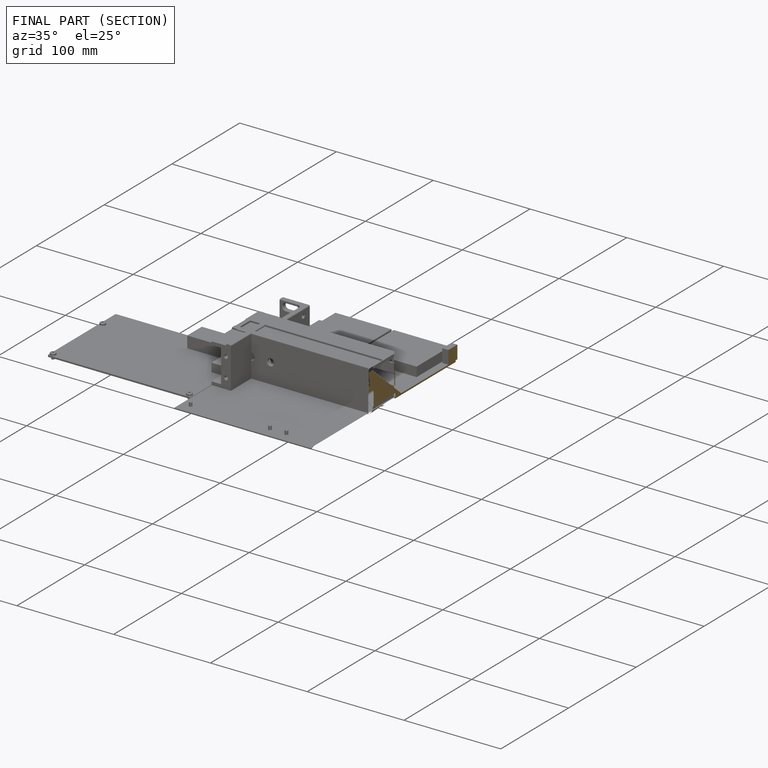
[diagram: finished part — half-section view (interior)]
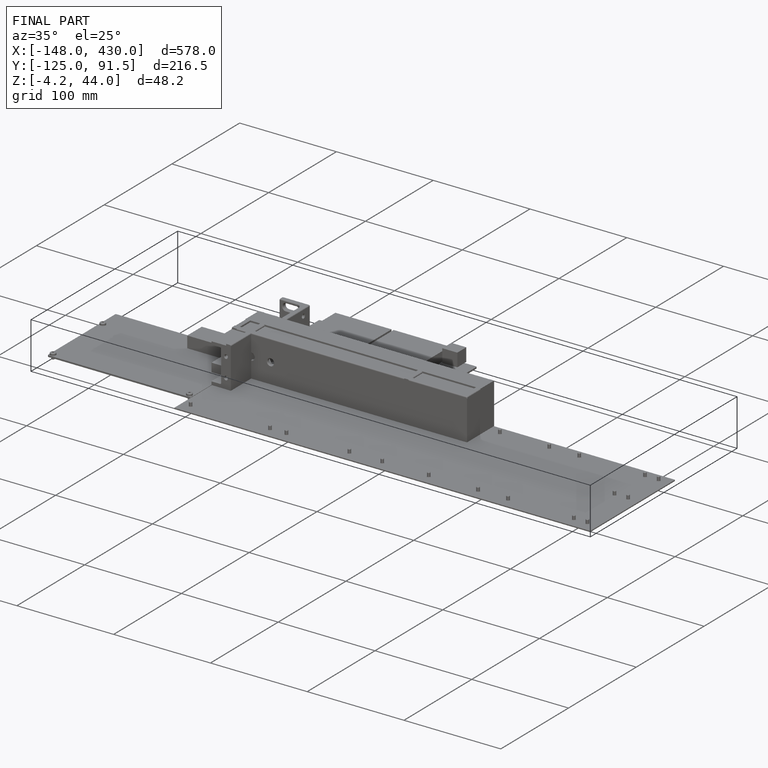
[diagram: finished part — iso view with bounding-box wireframe]
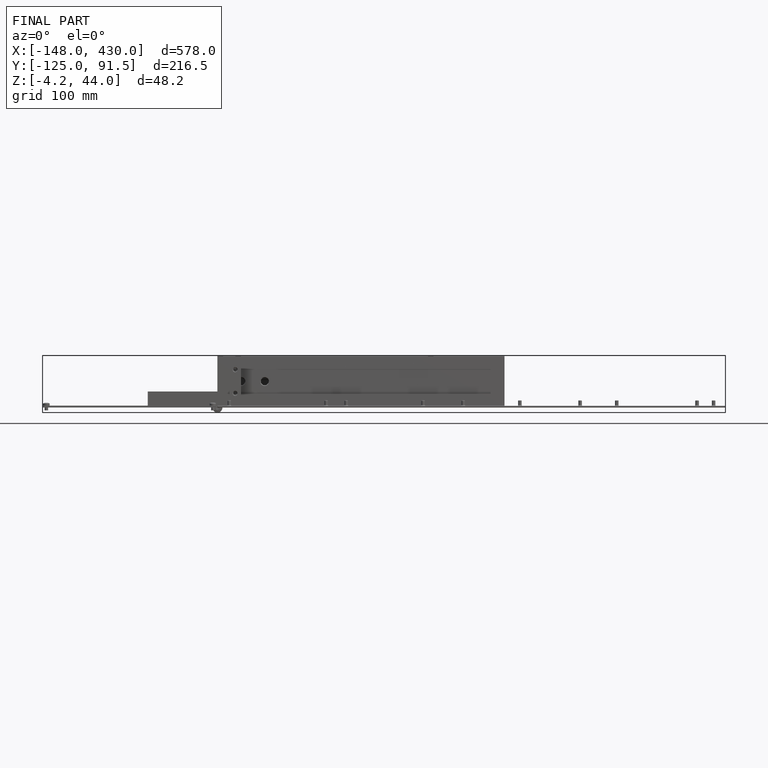
[diagram: finished part — front view with bounding-box wireframe]
